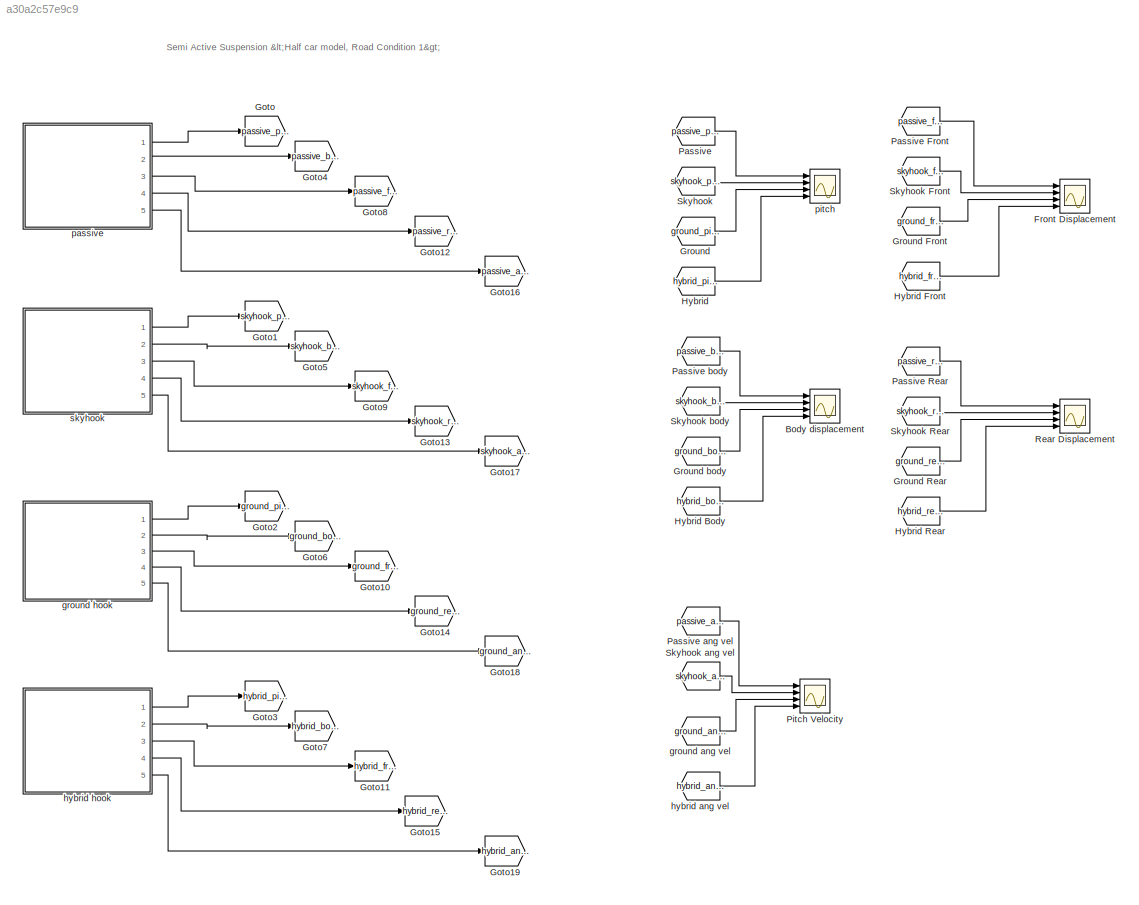
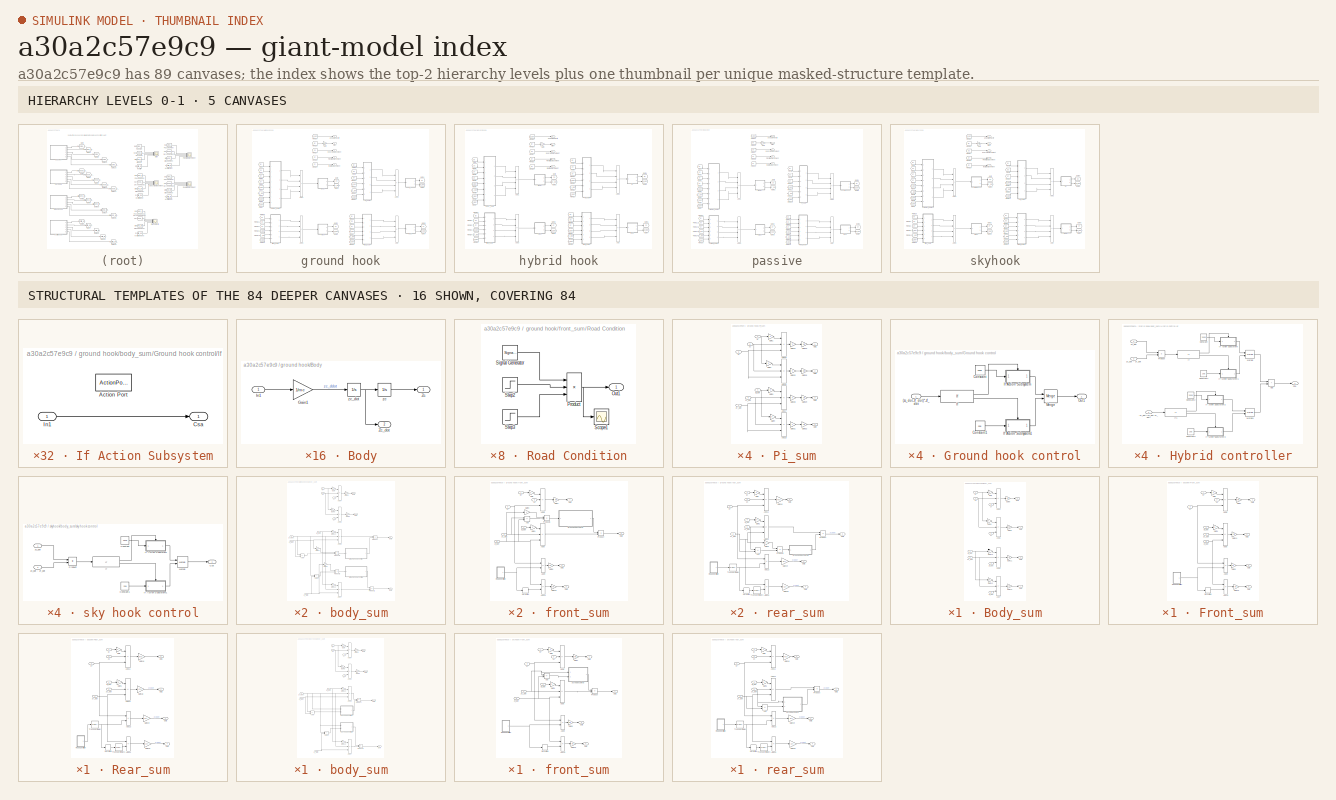
[diagram: thumbnail index - top-2 hierarchy levels (5 canvases) + 16 structural-template representatives of the remaining 84 canvases]
MODEL slx_a30a2c57e9c9
KIND model
CONFIG AbsTol = auto
CONFIG EnableMultiTasking = off
CONFIG FixedStep = auto
CONFIG MaxStep = 0.1
CONFIG MinStep = auto
CONFIG RelTol = 1e-3
CONFIG SampleTimeConstraint = Unconstrained
CONFIG Solver = VariableStepAuto
CONFIG SolverName = VariableStepAuto
CONFIG StartTime = 0.0
CONFIG StopTime = 10.0
BLOCK [Scope] Body displacement
  Floating = off
  NumInputPorts = 4
  Ports = [4]
  ScopeSpecificationString = Simulink.scopes.TimeScopeBlockCfg('CurrentConfiguration', extmgr.ConfigurationSet(extmgr.Configuration('Core','General UI',true),extmgr.Configuration('Core','Source UI',true),extmgr.Configuration('Sources','WiredSimulink',true,'DataLoggingVariableName','ScopeData2'),extmgr.Configuration('Visuals','Time Domain',true,'SerializedDisplays',{struct('MinYLimReal','-0.08102','MaxYLimReal','0.12281','YLab...<+1542ch>
BLOCK [Scope] Front Displacement
  Floating = off
  NumInputPorts = 4
  Ports = [4]
  ScopeSpecificationString = Simulink.scopes.TimeScopeBlockCfg('CurrentConfiguration', extmgr.ConfigurationSet(extmgr.Configuration('Core','General UI',true),extmgr.Configuration('Core','Source UI',true),extmgr.Configuration('Sources','WiredSimulink',true,'DataLoggingVariableName','ScopeData3'),extmgr.Configuration('Visuals','Time Domain',true,'SerializedDisplays',{struct('MinYLimReal','-0.03208','MaxYLimReal','0.19522','YLab...<+1546ch>
BLOCK [Goto] Goto
  GotoTag = passive_pitch
BLOCK [Goto] Goto1
  GotoTag = skyhook_pitch
BLOCK [Goto] Goto10
  GotoTag = ground_front_dis
BLOCK [Goto] Goto11
  GotoTag = hybrid_front_dis
BLOCK [Goto] Goto12
  GotoTag = passive_rear_dis
BLOCK [Goto] Goto13
  GotoTag = skyhook_rear_dis
BLOCK [Goto] Goto14
  GotoTag = ground_rear_dis
BLOCK [Goto] Goto15
  GotoTag = hybrid_rear_dis
BLOCK [Goto] Goto16
  GotoTag = passive_ang_vel
BLOCK [Goto] Goto17
  GotoTag = skyhook_ang_vel
BLOCK [Goto] Goto18
  GotoTag = ground_ang_vel
BLOCK [Goto] Goto19
  GotoTag = hybrid_ang_vel
BLOCK [Goto] Goto2
  GotoTag = ground_pitch
BLOCK [Goto] Goto3
  GotoTag = hybrid_pitch
BLOCK [Goto] Goto4
  GotoTag = passive_body_dis
BLOCK [Goto] Goto5
  GotoTag = skyhook_body_dis
BLOCK [Goto] Goto6
  GotoTag = ground_body_dis
BLOCK [Goto] Goto7
  GotoTag = hybrid_body_dis
BLOCK [Goto] Goto8
  GotoTag = passive_front_dis
BLOCK [Goto] Goto9
  GotoTag = skyhook_front_dis
BLOCK [From] Ground
  GotoTag = ground_pitch
BLOCK [From] Ground Front
  GotoTag = ground_front_dis
BLOCK [From] Ground Rear
  GotoTag = ground_rear_dis
BLOCK [From] Ground body
  GotoTag = ground_body_dis
BLOCK [From] Hybrid
  GotoTag = hybrid_pitch
BLOCK [From] Hybrid Body
  GotoTag = hybrid_body_dis
BLOCK [From] Hybrid Front
  GotoTag = hybrid_front_dis
BLOCK [From] Hybrid Rear
  GotoTag = hybrid_rear_dis
BLOCK [From] Passive
  GotoTag = passive_pitch
BLOCK [From] Passive Front
  GotoTag = passive_front_dis
BLOCK [From] Passive Rear
  GotoTag = passive_rear_dis
BLOCK [From] Passive ang vel
  GotoTag = passive_ang_vel
BLOCK [From] Passive body
  GotoTag = passive_body_dis
BLOCK [Scope] Pitch Velocity
  Floating = off
  NumInputPorts = 4
  Ports = [4]
  ScopeSpecificationString = Simulink.scopes.TimeScopeBlockCfg('CurrentConfiguration', extmgr.ConfigurationSet(extmgr.Configuration('Core','General UI',true),extmgr.Configuration('Core','Source UI',true),extmgr.Configuration('Sources','WiredSimulink',true,'DataLoggingVariableName','ScopeData5'),extmgr.Configuration('Visuals','Time Domain',true,'SerializedDisplays',{struct('MinYLimReal','-0.05618','MaxYLimReal','0.04512','YLab...<+1645ch>
BLOCK [Scope] Rear Displacement
  Floating = off
  NumInputPorts = 4
  Ports = [4]
  ScopeSpecificationString = Simulink.scopes.TimeScopeBlockCfg('CurrentConfiguration', extmgr.ConfigurationSet(extmgr.Configuration('Core','General UI',true),extmgr.Configuration('Core','Source UI',true),extmgr.Configuration('Sources','WiredSimulink',true,'DataLoggingVariableName','ScopeData4'),extmgr.Configuration('Visuals','Time Domain',true,'SerializedDisplays',{struct('MinYLimReal','-0.04875','MaxYLimReal','0.15941','YLab...<+1635ch>
BLOCK [From] Skyhook
  GotoTag = skyhook_pitch
BLOCK [From] Skyhook Front
  GotoTag = skyhook_front_dis
BLOCK [From] Skyhook Rear
  GotoTag = skyhook_rear_dis
BLOCK [From] Skyhook ang vel
  GotoTag = skyhook_ang_vel
BLOCK [From] Skyhook body
  GotoTag = skyhook_body_dis
BLOCK [From] ground ang vel
  GotoTag = ground_ang_vel
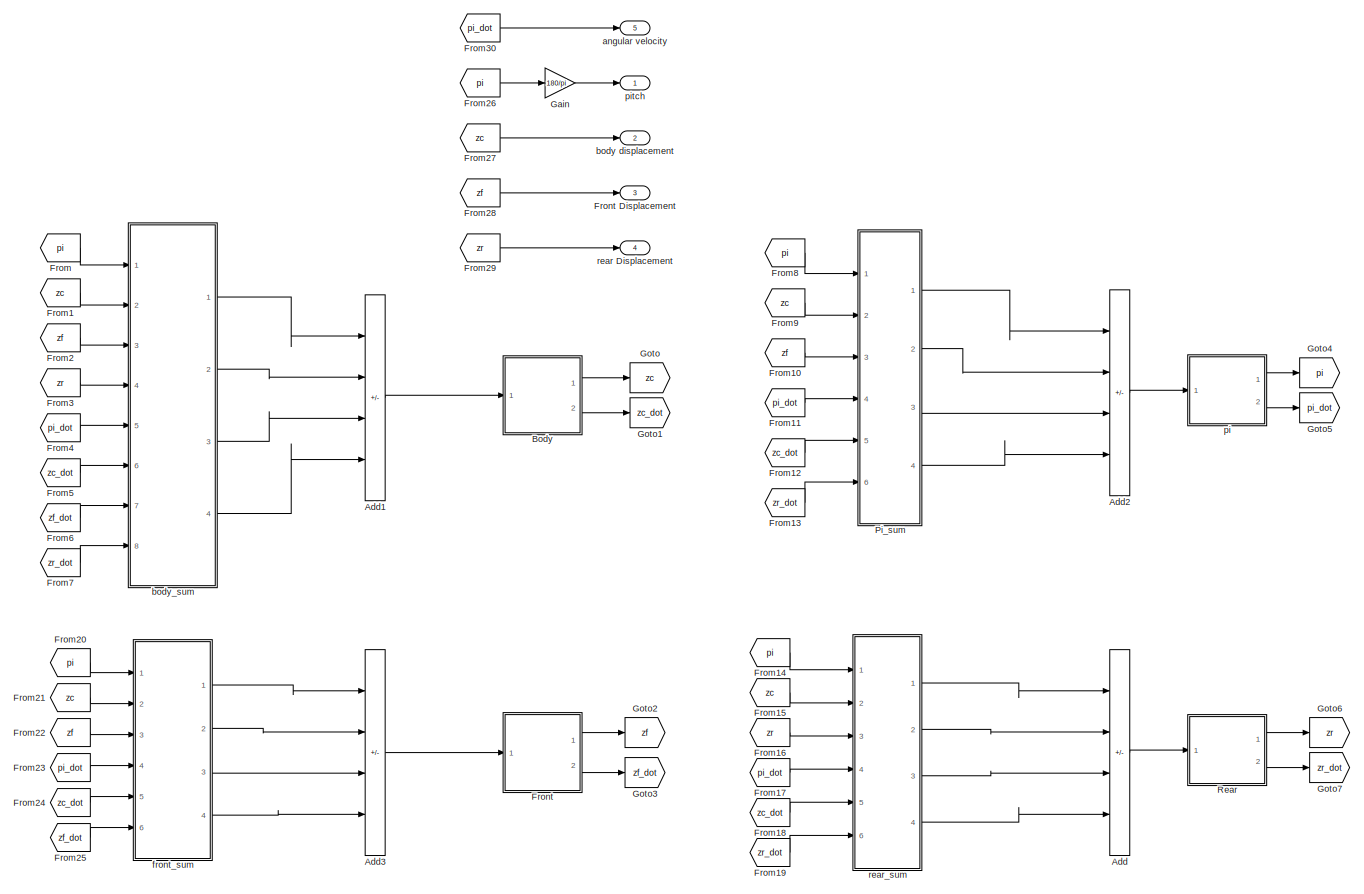
[diagram: ground hook - part 1/1, most of the canvas]
BLOCK [SubSystem] ground hook
  Ports = [0, 5]
  RequestExecContextInheritance = off
BLOCK [Sum] ground hook/Add
  IconShape = rectangular
  Inputs = ----
  Ports = [4, 1]
BLOCK [Sum] ground hook/Add1
  IconShape = rectangular
  Inputs = -+-+
  Ports = [4, 1]
BLOCK [Sum] ground hook/Add2
  IconShape = rectangular
  Inputs = ----
  Ports = [4, 1]
BLOCK [Sum] ground hook/Add3
  IconShape = rectangular
  Inputs = ++--
  Ports = [4, 1]
BLOCK [SubSystem] ground hook/Body
  Ports = [1, 2]
  RequestExecContextInheritance = off
BLOCK [Gain] ground hook/Body/Gain1
  Gain = 1/mc
BLOCK [Inport] ground hook/Body/In1
BLOCK [Outport] ground hook/Body/Zc
BLOCK [Outport] ground hook/Body/Zc_dot
  Port = 2
BLOCK [Integrator] ground hook/Body/zc
  Ports = [1, 1]
BLOCK [Integrator] ground hook/Body/zc_dot
  Ports = [1, 1]
BLOCK [From] ground hook/From
  GotoTag = pi
BLOCK [From] ground hook/From1
  GotoTag = zc
BLOCK [From] ground hook/From10
  GotoTag = zf
BLOCK [From] ground hook/From11
  GotoTag = pi_dot
BLOCK [From] ground hook/From12
  GotoTag = zc_dot
BLOCK [From] ground hook/From13
  GotoTag = zr_dot
BLOCK [From] ground hook/From14
  GotoTag = pi
BLOCK [From] ground hook/From15
  GotoTag = zc
BLOCK [From] ground hook/From16
  GotoTag = zr
BLOCK [From] ground hook/From17
  GotoTag = pi_dot
BLOCK [From] ground hook/From18
  GotoTag = zc_dot
BLOCK [From] ground hook/From19
  GotoTag = zr_dot
BLOCK [From] ground hook/From2
  GotoTag = zf
BLOCK [From] ground hook/From20
  GotoTag = pi
BLOCK [From] ground hook/From21
  GotoTag = zc
BLOCK [From] ground hook/From22
  GotoTag = zf
BLOCK [From] ground hook/From23
  GotoTag = pi_dot
BLOCK [From] ground hook/From24
  GotoTag = zc_dot
BLOCK [From] ground hook/From25
  GotoTag = zf_dot
BLOCK [From] ground hook/From26
  GotoTag = pi
BLOCK [From] ground hook/From27
  GotoTag = zc
BLOCK [From] ground hook/From28
  GotoTag = zf
BLOCK [From] ground hook/From29
  GotoTag = zr
BLOCK [From] ground hook/From3
  GotoTag = zr
BLOCK [From] ground hook/From30
  GotoTag = pi_dot
BLOCK [From] ground hook/From4
  GotoTag = pi_dot
BLOCK [From] ground hook/From5
  GotoTag = zc_dot
BLOCK [From] ground hook/From6
  GotoTag = zf_dot
BLOCK [From] ground hook/From7
  GotoTag = zr_dot
BLOCK [From] ground hook/From8
  GotoTag = pi
BLOCK [From] ground hook/From9
  GotoTag = zc
BLOCK [SubSystem] ground hook/Front
  Ports = [1, 2]
  RequestExecContextInheritance = off
BLOCK [Outport] ground hook/Front Displacement
  Port = 3
BLOCK [Gain] ground hook/Front/Gain2
  Gain = 1/mf
BLOCK [Inport] ground hook/Front/In1
BLOCK [Outport] ground hook/Front/Zf
BLOCK [Outport] ground hook/Front/Zf_dot
  Port = 2
BLOCK [Integrator] ground hook/Front/zf
  Ports = [1, 1]
BLOCK [Integrator] ground hook/Front/zf_dot
  Ports = [1, 1]
BLOCK [Gain] ground hook/Gain
  Gain = 180/pi
BLOCK [Goto] ground hook/Goto
  GotoTag = zc
BLOCK [Goto] ground hook/Goto1
  GotoTag = zc_dot
BLOCK [Goto] ground hook/Goto2
  GotoTag = zf
BLOCK [Goto] ground hook/Goto3
  GotoTag = zf_dot
BLOCK [Goto] ground hook/Goto4
  GotoTag = pi
BLOCK [Goto] ground hook/Goto5
  GotoTag = pi_dot
BLOCK [Goto] ground hook/Goto6
  GotoTag = zr
BLOCK [Goto] ground hook/Goto7
  GotoTag = zr_dot
BLOCK [SubSystem] ground hook/Pi_sum
  Ports = [6, 4]
  RequestExecContextInheritance = off
BLOCK [Sum] ground hook/Pi_sum/Add15
  IconShape = rectangular
  Inputs = ++-
  Ports = [3, 1]
BLOCK [Sum] ground hook/Pi_sum/Add16
  IconShape = rectangular
  Inputs = +-+
  Ports = [3, 1]
BLOCK [Sum] ground hook/Pi_sum/Add17
  IconShape = rectangular
  Inputs = ++-
  Ports = [3, 1]
BLOCK [Sum] ground hook/Pi_sum/Add18
  IconShape = rectangular
  Inputs = +-+
  Ports = [3, 1]
BLOCK [Gain] ground hook/Pi_sum/Gain1
  Gain = lf
BLOCK [Gain] ground hook/Pi_sum/Gain2
  Gain = lr
BLOCK [Gain] ground hook/Pi_sum/Gain22
  Gain = lf
BLOCK [Gain] ground hook/Pi_sum/Gain23
  Gain = kfs
BLOCK [Gain] ground hook/Pi_sum/Gain25
  Gain = lr
BLOCK [Gain] ground hook/Pi_sum/Gain26
  Gain = krs
BLOCK [Gain] ground hook/Pi_sum/Gain28
  Gain = lf
BLOCK [Gain] ground hook/Pi_sum/Gain29
  Gain = cfs
BLOCK [Gain] ground hook/Pi_sum/Gain3
  Gain = lf
BLOCK [Gain] ground hook/Pi_sum/Gain31
  Gain = lr
BLOCK [Gain] ground hook/Pi_sum/Gain32
  Gain = crs
BLOCK [Gain] ground hook/Pi_sum/Gain4
  Gain = lr
BLOCK [Outport] ground hook/Pi_sum/Out1
BLOCK [Outport] ground hook/Pi_sum/Out2
  Port = 2
BLOCK [Outport] ground hook/Pi_sum/Out3
  Port = 3
BLOCK [Outport] ground hook/Pi_sum/Out4
  Port = 4
BLOCK [Inport] ground hook/Pi_sum/pi
BLOCK [Inport] ground hook/Pi_sum/pi_dot
  Port = 4
BLOCK [Inport] ground hook/Pi_sum/zc
  Port = 2
BLOCK [Inport] ground hook/Pi_sum/zc_dot
  Port = 5
BLOCK [Inport] ground hook/Pi_sum/zf
  Port = 3
BLOCK [Inport] ground hook/Pi_sum/zr_dot
  Port = 6
BLOCK [SubSystem] ground hook/Rear
  Ports = [1, 2]
  RequestExecContextInheritance = off
BLOCK [Gain] ground hook/Rear/Gain2
  Gain = 1/mr
BLOCK [Inport] ground hook/Rear/In1
BLOCK [Outport] ground hook/Rear/Zr
BLOCK [Outport] ground hook/Rear/Zr_dot
  Port = 2
BLOCK [Integrator] ground hook/Rear/zr
  Ports = [1, 1]
BLOCK [Integrator] ground hook/Rear/zr_dot
  Ports = [1, 1]
BLOCK [Outport] ground hook/angular velocity
  Port = 5
BLOCK [Outport] ground hook/body displacement
  Port = 2
BLOCK [SubSystem] ground hook/body_sum
  Ports = [8, 4]
  RequestExecContextInheritance = off
BLOCK [Sum] ground hook/body_sum/Add
  IconShape = rectangular
  Inputs = +-
  Ports = [2, 1]
BLOCK [Sum] ground hook/body_sum/Add1
  IconShape = rectangular
  Inputs = +-
  Ports = [2, 1]
BLOCK [Sum] ground hook/body_sum/Add4
  IconShape = rectangular
  Inputs = ++-
  Ports = [3, 1]
BLOCK [Sum] ground hook/body_sum/Add5
  IconShape = rectangular
  Inputs = +-+
  Ports = [3, 1]
BLOCK [Sum] ground hook/body_sum/Add6
  IconShape = rectangular
  Inputs = ++-
  Ports = [3, 1]
BLOCK [Sum] ground hook/body_sum/Add7
  IconShape = rectangular
  Inputs = +-+
  Ports = [3, 1]
BLOCK [Gain] ground hook/body_sum/Gain
  Gain = lf
BLOCK [Gain] ground hook/body_sum/Gain1
  Gain = -1
BLOCK [Gain] ground hook/body_sum/Gain10
  Gain = lf
BLOCK [Gain] ground hook/body_sum/Gain12
  Gain = lr
BLOCK [Gain] ground hook/body_sum/Gain2
  Gain = -1
BLOCK [Gain] ground hook/body_sum/Gain5
  Gain = kfs
BLOCK [Gain] ground hook/body_sum/Gain8
  Gain = lr
BLOCK [Gain] ground hook/body_sum/Gain9
  Gain = krs
BLOCK [SubSystem] ground hook/body_sum/Ground hook control
  Ports = [1, 1]
  RequestExecContextInheritance = off
BLOCK [Inport] ground hook/body_sum/Ground hook control/(zc_dot-zf_dot)*-zf_dot
BLOCK [Constant] ground hook/body_sum/Ground hook control/Constant
  Value = 2838
BLOCK [Constant] ground hook/body_sum/Ground hook control/Constant1
  Value = 258
BLOCK [If] ground hook/body_sum/Ground hook control/If
  IfExpression = u1 >= 0
  Ports = [1, 2]
  ZeroCross = off
BLOCK [SubSystem] ground hook/body_sum/Ground hook control/If Action Subsystem
  Ports = [1, 1, 0, 0, 0, 0, 0, 1]
  RequestExecContextInheritance = off
  TreatAsAtomicUnit = on
BLOCK [ActionPort] ground hook/body_sum/Ground hook control/If Action Subsystem/Action Port
  ActionPortLabel = if(u1 >= 0)
BLOCK [Outport] ground hook/body_sum/Ground hook control/If Action Subsystem/Csa
BLOCK [Inport] ground hook/body_sum/Ground hook control/If Action Subsystem/In1
BLOCK [SubSystem] ground hook/body_sum/Ground hook control/If Action Subsystem1
  Ports = [1, 1, 0, 0, 0, 0, 0, 1]
  RequestExecContextInheritance = off
  TreatAsAtomicUnit = on
BLOCK [ActionPort] ground hook/body_sum/Ground hook control/If Action Subsystem1/Action Port
  ActionPortLabel = else
BLOCK [Inport] ground hook/body_sum/Ground hook control/If Action Subsystem1/In1
BLOCK [Outport] ground hook/body_sum/Ground hook control/If Action Subsystem1/Out1
BLOCK [Merge] ground hook/body_sum/Ground hook control/Merge
  Ports = [2, 1]
BLOCK [Outport] ground hook/body_sum/Ground hook control/Out1
BLOCK [SubSystem] ground hook/body_sum/Ground hook control1
  Ports = [1, 1]
  RequestExecContextInheritance = off
BLOCK [Inport] ground hook/body_sum/Ground hook control1/(zc_dot-zr_dot)*-zr_dot
BLOCK [Constant] ground hook/body_sum/Ground hook control1/Constant
  Value = 2838
BLOCK [Constant] ground hook/body_sum/Ground hook control1/Constant1
  Value = 258
BLOCK [If] ground hook/body_sum/Ground hook control1/If
  IfExpression = u1 >= 0
  Ports = [1, 2]
  ZeroCross = off
BLOCK [SubSystem] ground hook/body_sum/Ground hook control1/If Action Subsystem
  Ports = [1, 1, 0, 0, 0, 0, 0, 1]
  RequestExecContextInheritance = off
  TreatAsAtomicUnit = on
BLOCK [ActionPort] ground hook/body_sum/Ground hook control1/If Action Subsystem/Action Port
  ActionPortLabel = if(u1 >= 0)
BLOCK [Outport] ground hook/body_sum/Ground hook control1/If Action Subsystem/Csa
BLOCK [Inport] ground hook/body_sum/Ground hook control1/If Action Subsystem/In1
BLOCK [SubSystem] ground hook/body_sum/Ground hook control1/If Action Subsystem1
  Ports = [1, 1, 0, 0, 0, 0, 0, 1]
  RequestExecContextInheritance = off
  TreatAsAtomicUnit = on
BLOCK [ActionPort] ground hook/body_sum/Ground hook control1/If Action Subsystem1/Action Port
  ActionPortLabel = else
BLOCK [Inport] ground hook/body_sum/Ground hook control1/If Action Subsystem1/In1
BLOCK [Outport] ground hook/body_sum/Ground hook control1/If Action Subsystem1/Out1
BLOCK [Merge] ground hook/body_sum/Ground hook control1/Merge
  Ports = [2, 1]
BLOCK [Outport] ground hook/body_sum/Ground hook control1/Out1
BLOCK [Outport] ground hook/body_sum/Out1
BLOCK [Outport] ground hook/body_sum/Out2
  Port = 2
BLOCK [Outport] ground hook/body_sum/Out3
  Port = 3
BLOCK [Outport] ground hook/body_sum/Out4
  Port = 4
BLOCK [Product] ground hook/body_sum/Product
  Ports = [2, 1]
BLOCK [Product] ground hook/body_sum/Product1
  Ports = [2, 1]
BLOCK [Product] ground hook/body_sum/Product2
  Ports = [2, 1]
BLOCK [Product] ground hook/body_sum/Product3
  Ports = [2, 1]
BLOCK [Inport] ground hook/body_sum/pi
BLOCK [Inport] ground hook/body_sum/pi_dot
  Port = 5
BLOCK [Inport] ground hook/body_sum/zc
  Port = 2
BLOCK [Inport] ground hook/body_sum/zc_dot
  Port = 6
BLOCK [Inport] ground hook/body_sum/zf
  Port = 3
BLOCK [Inport] ground hook/body_sum/zf_dot
  Port = 7
BLOCK [Inport] ground hook/body_sum/zr
  Port = 4
BLOCK [Inport] ground hook/body_sum/zr_dot
  Port = 8
BLOCK [SubSystem] ground hook/front_sum
  Ports = [6, 4]
  RequestExecContextInheritance = off
BLOCK [Sum] ground hook/front_sum/Add
  IconShape = rectangular
  Inputs = +-
  Ports = [2, 1]
BLOCK [Sum] ground hook/front_sum/Add10
  IconShape = rectangular
  Inputs = +-
  Ports = [2, 1]
BLOCK [Sum] ground hook/front_sum/Add6
  IconShape = rectangular
  Inputs = ++-
  Ports = [3, 1]
BLOCK [Sum] ground hook/front_sum/Add8
  IconShape = rectangular
  Inputs = ++-
  Ports = [3, 1]
BLOCK [Sum] ground hook/front_sum/Add9
  IconShape = rectangular
  Inputs = +-
  Ports = [2, 1]
BLOCK [Derivative] ground hook/front_sum/Derivative
BLOCK [Gain] ground hook/front_sum/Gain
  Gain = lf
BLOCK [Gain] ground hook/front_sum/Gain1
  Gain = lf
BLOCK [Gain] ground hook/front_sum/Gain15
  Gain = cft
BLOCK [Gain] ground hook/front_sum/Gain3
  Gain = -1
BLOCK [Gain] ground hook/front_sum/Gain6
  Gain = kft
BLOCK [Gain] ground hook/front_sum/Gain7
  Gain = kfs
BLOCK [SubSystem] ground hook/front_sum/Ground hook control
  Ports = [1, 1]
  RequestExecContextInheritance = off
BLOCK [Inport] ground hook/front_sum/Ground hook control/(zc_dot-zf_dot)*-zf_dot
BLOCK [Constant] ground hook/front_sum/Ground hook control/Constant
  Value = 2838
BLOCK [Constant] ground hook/front_sum/Ground hook control/Constant1
  Value = 258
BLOCK [If] ground hook/front_sum/Ground hook control/If
  IfExpression = u1 >= 0
  Ports = [1, 2]
  ZeroCross = off
BLOCK [SubSystem] ground hook/front_sum/Ground hook control/If Action Subsystem
  Ports = [1, 1, 0, 0, 0, 0, 0, 1]
  RequestExecContextInheritance = off
  TreatAsAtomicUnit = on
BLOCK [ActionPort] ground hook/front_sum/Ground hook control/If Action Subsystem/Action Port
  ActionPortLabel = if(u1 >= 0)
BLOCK [Outport] ground hook/front_sum/Ground hook control/If Action Subsystem/Csa
BLOCK [Inport] ground hook/front_sum/Ground hook control/If Action Subsystem/In1
BLOCK [SubSystem] ground hook/front_sum/Ground hook control/If Action Subsystem1
  Ports = [1, 1, 0, 0, 0, 0, 0, 1]
  RequestExecContextInheritance = off
  TreatAsAtomicUnit = on
BLOCK [ActionPort] ground hook/front_sum/Ground hook control/If Action Subsystem1/Action Port
  ActionPortLabel = else
BLOCK [Inport] ground hook/front_sum/Ground hook control/If Action Subsystem1/In1
BLOCK [Outport] ground hook/front_sum/Ground hook control/If Action Subsystem1/Out1
BLOCK [Merge] ground hook/front_sum/Ground hook control/Merge
  Ports = [2, 1]
BLOCK [Outport] ground hook/front_sum/Ground hook control/Out1
BLOCK [Outport] ground hook/front_sum/Out1
BLOCK [Outport] ground hook/front_sum/Out2
  Port = 2
BLOCK [Outport] ground hook/front_sum/Out3
  Port = 3
BLOCK [Outport] ground hook/front_sum/Out4
  Port = 4
BLOCK [Product] ground hook/front_sum/Product
  Ports = [2, 1]
BLOCK [Product] ground hook/front_sum/Product1
  Ports = [2, 1]
BLOCK [SubSystem] ground hook/front_sum/Road Condition
  Ports = [0, 1]
  RequestExecContextInheritance = off
BLOCK [Outport] ground hook/front_sum/Road Condition/Out1
  VectorParamsAs1DForOutWhenUnconnected = off
BLOCK [Product] ground hook/front_sum/Road Condition/Product
  Inputs = 3
  Ports = [3, 1]
BLOCK [Scope] ground hook/front_sum/Road Condition/Scope1
  Floating = off
  NumInputPorts = 1
  Ports = [1]
  ScopeSpecificationString = Simulink.scopes.TimeScopeBlockCfg('CurrentConfiguration', extmgr.ConfigurationSet(extmgr.Configuration('Core','General UI',true),extmgr.Configuration('Core','Source UI',true),extmgr.Configuration('Sources','WiredSimulink',true,'DataLoggingVariableName','ScopeData1'),extmgr.Configuration('Visuals','Time Domain',true,'SerializedDisplays',{struct('MinYLimReal','-0.01705','MaxYLimReal','0.15343','YLab...<+1366ch>  <repeated x7 — deduplicated; at blocks: Scope1>
BLOCK [SignalGenerator] ground hook/front_sum/Road Condition/Signal Generator
  Amplitude = 0.15
  Frequency = 1.852
  Ports = [0, 1]
  Units = rad/sec
BLOCK [Step] ground hook/front_sum/Road Condition/Step2
  SampleTime = 1.08
BLOCK [Step] ground hook/front_sum/Road Condition/Step3
  After = 0
  Before = 1
  SampleTime = 1.35
BLOCK [Inport] ground hook/front_sum/pi
BLOCK [Inport] ground hook/front_sum/pi_dot
  Port = 4
BLOCK [Inport] ground hook/front_sum/zc
  Port = 2
BLOCK [Inport] ground hook/front_sum/zc_dot
  Port = 5
BLOCK [Inport] ground hook/front_sum/zf
  Port = 3
BLOCK [Inport] ground hook/front_sum/zf_dot
  Port = 6
BLOCK [SubSystem] ground hook/pi
  Ports = [1, 2]
  RequestExecContextInheritance = off
BLOCK [Gain] ground hook/pi/Gain2
  Gain = 1/iyy
BLOCK [Inport] ground hook/pi/In1
BLOCK [Outport] ground hook/pi/Pi
BLOCK [Outport] ground hook/pi/Pi_dot
  Port = 2
BLOCK [Integrator] ground hook/pi/pi
  Ports = [1, 1]
BLOCK [Integrator] ground hook/pi/pi_dot
  Ports = [1, 1]
BLOCK [Outport] ground hook/pitch
BLOCK [Outport] ground hook/rear Displacement
  Port = 4
BLOCK [SubSystem] ground hook/rear_sum
  Ports = [6, 4]
  RequestExecContextInheritance = off
BLOCK [Sum] ground hook/rear_sum/Add
  IconShape = rectangular
  Inputs = +-
  Ports = [2, 1]
BLOCK [Sum] ground hook/rear_sum/Add11
  IconShape = rectangular
  Inputs = +-+
  Ports = [3, 1]
BLOCK [Sum] ground hook/rear_sum/Add12
  IconShape = rectangular
  Inputs = +-+
  Ports = [3, 1]
BLOCK [Sum] ground hook/rear_sum/Add13
  IconShape = rectangular
  Inputs = +-
  Ports = [2, 1]
BLOCK [Sum] ground hook/rear_sum/Add14
  IconShape = rectangular
  Inputs = +-
  Ports = [2, 1]
BLOCK [Derivative] ground hook/rear_sum/Derivative
BLOCK [Gain] ground hook/rear_sum/Gain
  Gain = lr
BLOCK [Gain] ground hook/rear_sum/Gain1
  Gain = lr
BLOCK [Gain] ground hook/rear_sum/Gain16
  Gain = krs
BLOCK [Gain] ground hook/rear_sum/Gain19
  Gain = krt
BLOCK [Gain] ground hook/rear_sum/Gain20
  Gain = crt
BLOCK [Gain] ground hook/rear_sum/Gain3
  Gain = -1
BLOCK [SubSystem] ground hook/rear_sum/Ground hook control1
  Ports = [1, 1]
  RequestExecContextInheritance = off
BLOCK [Inport] ground hook/rear_sum/Ground hook control1/(zc_dot-zr_dot)*-zr_dot
BLOCK [Constant] ground hook/rear_sum/Ground hook control1/Constant
  Value = 2838
BLOCK [Constant] ground hook/rear_sum/Ground hook control1/Constant1
  Value = 258
BLOCK [If] ground hook/rear_sum/Ground hook control1/If
  IfExpression = u1 >= 0
  Ports = [1, 2]
  ZeroCross = off
BLOCK [SubSystem] ground hook/rear_sum/Ground hook control1/If Action Subsystem
  Ports = [1, 1, 0, 0, 0, 0, 0, 1]
  RequestExecContextInheritance = off
  TreatAsAtomicUnit = on
BLOCK [ActionPort] ground hook/rear_sum/Ground hook control1/If Action Subsystem/Action Port
  ActionPortLabel = if(u1 >= 0)
BLOCK [Outport] ground hook/rear_sum/Ground hook control1/If Action Subsystem/Csa
BLOCK [Inport] ground hook/rear_sum/Ground hook control1/If Action Subsystem/In1
BLOCK [SubSystem] ground hook/rear_sum/Ground hook control1/If Action Subsystem1
  Ports = [1, 1, 0, 0, 0, 0, 0, 1]
  RequestExecContextInheritance = off
  TreatAsAtomicUnit = on
BLOCK [ActionPort] ground hook/rear_sum/Ground hook control1/If Action Subsystem1/Action Port
  ActionPortLabel = else
BLOCK [Inport] ground hook/rear_sum/Ground hook control1/If Action Subsystem1/In1
BLOCK [Outport] ground hook/rear_sum/Ground hook control1/If Action Subsystem1/Out1
BLOCK [Merge] ground hook/rear_sum/Ground hook control1/Merge
  Ports = [2, 1]
BLOCK [Outport] ground hook/rear_sum/Ground hook control1/Out1
BLOCK [Outport] ground hook/rear_sum/Out1
BLOCK [Outport] ground hook/rear_sum/Out2
  Port = 2
BLOCK [Outport] ground hook/rear_sum/Out3
  Port = 3
BLOCK [Outport] ground hook/rear_sum/Out4
  Port = 4
BLOCK [Product] ground hook/rear_sum/Product
  Ports = [2, 1]
BLOCK [Product] ground hook/rear_sum/Product1
  Ports = [2, 1]
BLOCK [SubSystem] ground hook/rear_sum/Road Condition
  Ports = [0, 1]
  RequestExecContextInheritance = off
BLOCK [Outport] ground hook/rear_sum/Road Condition/Out1
  VectorParamsAs1DForOutWhenUnconnected = off
BLOCK [Product] ground hook/rear_sum/Road Condition/Product
  Inputs = 3
  Ports = [3, 1]
BLOCK [Scope] ground hook/rear_sum/Road Condition/Scope1
  Floating = off
  NumInputPorts = 1
  Ports = [1]
BLOCK [SignalGenerator] ground hook/rear_sum/Road Condition/Signal Generator
  Amplitude = 0.15
  Frequency = 1.852
  Ports = [0, 1]
  Units = rad/sec
BLOCK [Step] ground hook/rear_sum/Road Condition/Step2
  SampleTime = 1.08
BLOCK [Step] ground hook/rear_sum/Road Condition/Step3
  After = 0
  Before = 1
  SampleTime = 1.35
BLOCK [TransportDelay] ground hook/rear_sum/Transport Delay
  DelayTime = 0.3
  Ports = [1, 1]
BLOCK [TransportDelay] ground hook/rear_sum/Transport Delay1
  DelayTime = 0.3
  Ports = [1, 1]
BLOCK [Inport] ground hook/rear_sum/pi
BLOCK [Inport] ground hook/rear_sum/pi_dot
  Port = 4
BLOCK [Inport] ground hook/rear_sum/zc
  Port = 2
BLOCK [Inport] ground hook/rear_sum/zc_dot
  Port = 5
BLOCK [Inport] ground hook/rear_sum/zr
  Port = 3
BLOCK [Inport] ground hook/rear_sum/zr_dot
  Port = 6
BLOCK [From] hybrid ang vel
  GotoTag = hybrid_ang_vel
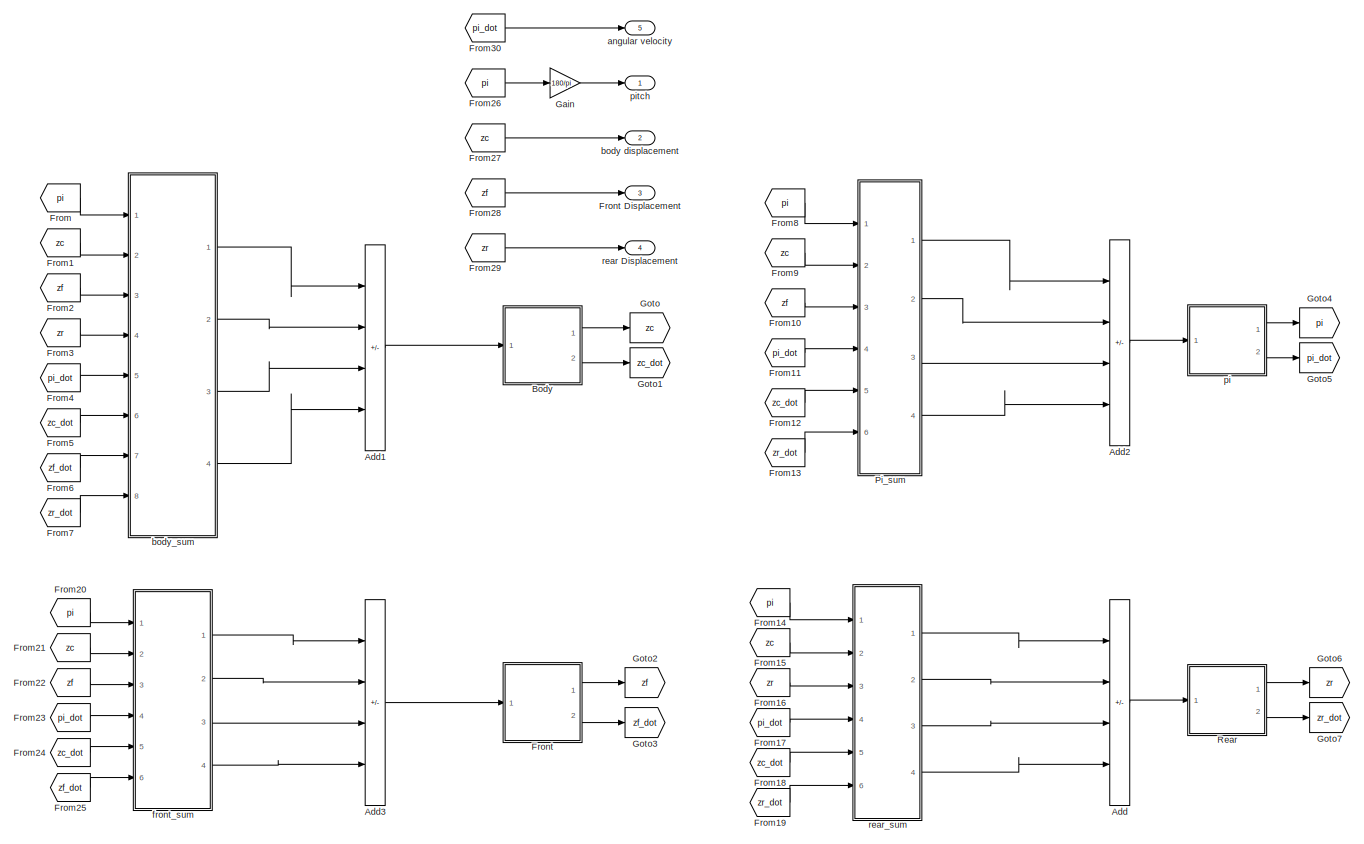
[diagram: hybrid hook - part 1/1, most of the canvas]
BLOCK [SubSystem] hybrid hook
  Ports = [0, 5]
  RequestExecContextInheritance = off
BLOCK [Sum] hybrid hook/Add
  IconShape = rectangular
  Inputs = ----
  Ports = [4, 1]
BLOCK [Sum] hybrid hook/Add1
  IconShape = rectangular
  Inputs = -+-+
  Ports = [4, 1]
BLOCK [Sum] hybrid hook/Add2
  IconShape = rectangular
  Inputs = ----
  Ports = [4, 1]
BLOCK [Sum] hybrid hook/Add3
  IconShape = rectangular
  Inputs = ++--
  Ports = [4, 1]
BLOCK [SubSystem] hybrid hook/Body
  Ports = [1, 2]
  RequestExecContextInheritance = off
BLOCK [Gain] hybrid hook/Body/Gain1
  Gain = 1/mc
BLOCK [Inport] hybrid hook/Body/In1
BLOCK [Outport] hybrid hook/Body/Zc
BLOCK [Outport] hybrid hook/Body/Zc_dot
  Port = 2
BLOCK [Integrator] hybrid hook/Body/zc
  Ports = [1, 1]
BLOCK [Integrator] hybrid hook/Body/zc_dot
  Ports = [1, 1]
BLOCK [From] hybrid hook/From
  GotoTag = pi
BLOCK [From] hybrid hook/From1
  GotoTag = zc
BLOCK [From] hybrid hook/From10
  GotoTag = zf
BLOCK [From] hybrid hook/From11
  GotoTag = pi_dot
BLOCK [From] hybrid hook/From12
  GotoTag = zc_dot
BLOCK [From] hybrid hook/From13
  GotoTag = zr_dot
BLOCK [From] hybrid hook/From14
  GotoTag = pi
BLOCK [From] hybrid hook/From15
  GotoTag = zc
BLOCK [From] hybrid hook/From16
  GotoTag = zr
BLOCK [From] hybrid hook/From17
  GotoTag = pi_dot
BLOCK [From] hybrid hook/From18
  GotoTag = zc_dot
BLOCK [From] hybrid hook/From19
  GotoTag = zr_dot
BLOCK [From] hybrid hook/From2
  GotoTag = zf
BLOCK [From] hybrid hook/From20
  GotoTag = pi
BLOCK [From] hybrid hook/From21
  GotoTag = zc
BLOCK [From] hybrid hook/From22
  GotoTag = zf
BLOCK [From] hybrid hook/From23
  GotoTag = pi_dot
BLOCK [From] hybrid hook/From24
  GotoTag = zc_dot
BLOCK [From] hybrid hook/From25
  GotoTag = zf_dot
BLOCK [From] hybrid hook/From26
  GotoTag = pi
BLOCK [From] hybrid hook/From27
  GotoTag = zc
BLOCK [From] hybrid hook/From28
  GotoTag = zf
BLOCK [From] hybrid hook/From29
  GotoTag = zr
BLOCK [From] hybrid hook/From3
  GotoTag = zr
BLOCK [From] hybrid hook/From30
  GotoTag = pi_dot
BLOCK [From] hybrid hook/From4
  GotoTag = pi_dot
BLOCK [From] hybrid hook/From5
  GotoTag = zc_dot
BLOCK [From] hybrid hook/From6
  GotoTag = zf_dot
BLOCK [From] hybrid hook/From7
  GotoTag = zr_dot
BLOCK [From] hybrid hook/From8
  GotoTag = pi
BLOCK [From] hybrid hook/From9
  GotoTag = zc
BLOCK [SubSystem] hybrid hook/Front
  Ports = [1, 2]
  RequestExecContextInheritance = off
BLOCK [Outport] hybrid hook/Front Displacement
  Port = 3
BLOCK [Gain] hybrid hook/Front/Gain2
  Gain = 1/mf
BLOCK [Inport] hybrid hook/Front/In1
BLOCK [Outport] hybrid hook/Front/Zf
BLOCK [Outport] hybrid hook/Front/Zf_dot
  Port = 2
BLOCK [Integrator] hybrid hook/Front/zf
  Ports = [1, 1]
BLOCK [Integrator] hybrid hook/Front/zf_dot
  Ports = [1, 1]
BLOCK [Gain] hybrid hook/Gain
  Gain = 180/pi
BLOCK [Goto] hybrid hook/Goto
  GotoTag = zc
BLOCK [Goto] hybrid hook/Goto1
  GotoTag = zc_dot
BLOCK [Goto] hybrid hook/Goto2
  GotoTag = zf
BLOCK [Goto] hybrid hook/Goto3
  GotoTag = zf_dot
BLOCK [Goto] hybrid hook/Goto4
  GotoTag = pi
BLOCK [Goto] hybrid hook/Goto5
  GotoTag = pi_dot
BLOCK [Goto] hybrid hook/Goto6
  GotoTag = zr
BLOCK [Goto] hybrid hook/Goto7
  GotoTag = zr_dot
BLOCK [SubSystem] hybrid hook/Pi_sum
  Ports = [6, 4]
  RequestExecContextInheritance = off
BLOCK [Sum] hybrid hook/Pi_sum/Add15
  IconShape = rectangular
  Inputs = ++-
  Ports = [3, 1]
BLOCK [Sum] hybrid hook/Pi_sum/Add16
  IconShape = rectangular
  Inputs = +-+
  Ports = [3, 1]
BLOCK [Sum] hybrid hook/Pi_sum/Add17
  IconShape = rectangular
  Inputs = ++-
  Ports = [3, 1]
BLOCK [Sum] hybrid hook/Pi_sum/Add18
  IconShape = rectangular
  Inputs = +-+
  Ports = [3, 1]
BLOCK [Gain] hybrid hook/Pi_sum/Gain1
  Gain = lf
BLOCK [Gain] hybrid hook/Pi_sum/Gain2
  Gain = lr
BLOCK [Gain] hybrid hook/Pi_sum/Gain22
  Gain = lf
BLOCK [Gain] hybrid hook/Pi_sum/Gain23
  Gain = kfs
BLOCK [Gain] hybrid hook/Pi_sum/Gain25
  Gain = lr
BLOCK [Gain] hybrid hook/Pi_sum/Gain26
  Gain = krs
BLOCK [Gain] hybrid hook/Pi_sum/Gain28
  Gain = lf
BLOCK [Gain] hybrid hook/Pi_sum/Gain29
  Gain = cfs
BLOCK [Gain] hybrid hook/Pi_sum/Gain3
  Gain = lf
BLOCK [Gain] hybrid hook/Pi_sum/Gain31
  Gain = lr
BLOCK [Gain] hybrid hook/Pi_sum/Gain32
  Gain = crs
BLOCK [Gain] hybrid hook/Pi_sum/Gain4
  Gain = lr
BLOCK [Outport] hybrid hook/Pi_sum/Out1
BLOCK [Outport] hybrid hook/Pi_sum/Out2
  Port = 2
BLOCK [Outport] hybrid hook/Pi_sum/Out3
  Port = 3
BLOCK [Outport] hybrid hook/Pi_sum/Out4
  Port = 4
BLOCK [Inport] hybrid hook/Pi_sum/pi
BLOCK [Inport] hybrid hook/Pi_sum/pi_dot
  Port = 4
BLOCK [Inport] hybrid hook/Pi_sum/zc
  Port = 2
BLOCK [Inport] hybrid hook/Pi_sum/zc_dot
  Port = 5
BLOCK [Inport] hybrid hook/Pi_sum/zf
  Port = 3
BLOCK [Inport] hybrid hook/Pi_sum/zr_dot
  Port = 6
BLOCK [SubSystem] hybrid hook/Rear
  Ports = [1, 2]
  RequestExecContextInheritance = off
BLOCK [Gain] hybrid hook/Rear/Gain2
  Gain = 1/mr
BLOCK [Inport] hybrid hook/Rear/In1
BLOCK [Outport] hybrid hook/Rear/Zr
BLOCK [Outport] hybrid hook/Rear/Zr_dot
  Port = 2
BLOCK [Integrator] hybrid hook/Rear/zr
  Ports = [1, 1]
BLOCK [Integrator] hybrid hook/Rear/zr_dot
  Ports = [1, 1]
BLOCK [Outport] hybrid hook/angular velocity
  Port = 5
BLOCK [Outport] hybrid hook/body displacement
  Port = 2
BLOCK [SubSystem] hybrid hook/body_sum
  Ports = [8, 4]
  RequestExecContextInheritance = off
BLOCK [Sum] hybrid hook/body_sum/Add
  IconShape = rectangular
  Inputs = +-
  Ports = [2, 1]
BLOCK [Sum] hybrid hook/body_sum/Add1
  IconShape = rectangular
  Inputs = +-
  Ports = [2, 1]
BLOCK [Sum] hybrid hook/body_sum/Add4
  IconShape = rectangular
  Inputs = ++-
  Ports = [3, 1]
BLOCK [Sum] hybrid hook/body_sum/Add5
  IconShape = rectangular
  Inputs = +-+
  Ports = [3, 1]
BLOCK [Sum] hybrid hook/body_sum/Add6
  IconShape = rectangular
  Inputs = ++-
  Ports = [3, 1]
BLOCK [Sum] hybrid hook/body_sum/Add7
  IconShape = rectangular
  Inputs = +-+
  Ports = [3, 1]
BLOCK [Gain] hybrid hook/body_sum/Gain
  Gain = lf
BLOCK [Gain] hybrid hook/body_sum/Gain1
  Gain = -1
BLOCK [Gain] hybrid hook/body_sum/Gain10
  Gain = lf
BLOCK [Gain] hybrid hook/body_sum/Gain12
  Gain = lr
BLOCK [Gain] hybrid hook/body_sum/Gain2
  Gain = -1
BLOCK [Gain] hybrid hook/body_sum/Gain5
  Gain = kfs
BLOCK [Gain] hybrid hook/body_sum/Gain8
  Gain = lr
BLOCK [Gain] hybrid hook/body_sum/Gain9
  Gain = krs
BLOCK [SubSystem] hybrid hook/body_sum/Hybrid controller
  Ports = [3, 1]
  RequestExecContextInheritance = off
BLOCK [Inport] hybrid hook/body_sum/Hybrid controller/-zf_dot*(zc_dot-zf_dot)
  Port = 3
BLOCK [Sum] hybrid hook/body_sum/Hybrid controller/Add
  IconShape = rectangular
  Ports = [2, 1]
BLOCK [Constant] hybrid hook/body_sum/Hybrid controller/Constant
  Value = 2838
BLOCK [Constant] hybrid hook/body_sum/Hybrid controller/Constant1
  Value = 258
BLOCK [Constant] hybrid hook/body_sum/Hybrid controller/Constant2
  Value = 2838
BLOCK [Constant] hybrid hook/body_sum/Hybrid controller/Constant3
  Value = 258
BLOCK [Outport] hybrid hook/body_sum/Hybrid controller/Csa
BLOCK [If] hybrid hook/body_sum/Hybrid controller/If
  IfExpression = u1 >= 0
  Ports = [1, 2]
  ZeroCross = off
BLOCK [SubSystem] hybrid hook/body_sum/Hybrid controller/If Action Subsystem
  Ports = [1, 1, 0, 0, 0, 0, 0, 1]
  RequestExecContextInheritance = off
  TreatAsAtomicUnit = on
BLOCK [ActionPort] hybrid hook/body_sum/Hybrid controller/If Action Subsystem/Action Port
  ActionPortLabel = if(u1 >= 0)
BLOCK [Outport] hybrid hook/body_sum/Hybrid controller/If Action Subsystem/Csa
BLOCK [Inport] hybrid hook/body_sum/Hybrid controller/If Action Subsystem/In1
BLOCK [SubSystem] hybrid hook/body_sum/Hybrid controller/If Action Subsystem1
  Ports = [1, 1, 0, 0, 0, 0, 0, 1]
  RequestExecContextInheritance = off
  TreatAsAtomicUnit = on
BLOCK [ActionPort] hybrid hook/body_sum/Hybrid controller/If Action Subsystem1/Action Port
  ActionPortLabel = else
BLOCK [Inport] hybrid hook/body_sum/Hybrid controller/If Action Subsystem1/In1
BLOCK [Outport] hybrid hook/body_sum/Hybrid controller/If Action Subsystem1/Out1
BLOCK [SubSystem] hybrid hook/body_sum/Hybrid controller/If Action Subsystem2
  Ports = [1, 1, 0, 0, 0, 0, 0, 1]
  RequestExecContextInheritance = off
  TreatAsAtomicUnit = on
BLOCK [ActionPort] hybrid hook/body_sum/Hybrid controller/If Action Subsystem2/Action Port
  ActionPortLabel = if(u1 >= 0)
BLOCK [Outport] hybrid hook/body_sum/Hybrid controller/If Action Subsystem2/Csa
BLOCK [Inport] hybrid hook/body_sum/Hybrid controller/If Action Subsystem2/In1
BLOCK [SubSystem] hybrid hook/body_sum/Hybrid controller/If Action Subsystem3
  Ports = [1, 1, 0, 0, 0, 0, 0, 1]
  RequestExecContextInheritance = off
  TreatAsAtomicUnit = on
BLOCK [ActionPort] hybrid hook/body_sum/Hybrid controller/If Action Subsystem3/Action Port
  ActionPortLabel = else
BLOCK [Inport] hybrid hook/body_sum/Hybrid controller/If Action Subsystem3/In1
BLOCK [Outport] hybrid hook/body_sum/Hybrid controller/If Action Subsystem3/Out1
BLOCK [If] hybrid hook/body_sum/Hybrid controller/If1
  IfExpression = u1 >= 0
  Ports = [1, 2]
  ZeroCross = off
BLOCK [Merge] hybrid hook/body_sum/Hybrid controller/Merge
  Ports = [2, 1]
BLOCK [Merge] hybrid hook/body_sum/Hybrid controller/Merge1
  Ports = [2, 1]
BLOCK [Product] hybrid hook/body_sum/Hybrid controller/Product
  Ports = [2, 1]
BLOCK [Inport] hybrid hook/body_sum/Hybrid controller/zc_dot
BLOCK [Inport] hybrid hook/body_sum/Hybrid controller/zc_dot - zf_dot
  Port = 2
BLOCK [SubSystem] hybrid hook/body_sum/Hybrid controller1
  Ports = [3, 1]
  RequestExecContextInheritance = off
BLOCK [Inport] hybrid hook/body_sum/Hybrid controller1/-zr_dot*(zc_dot-zr_dot)
  Port = 3
BLOCK [Sum] hybrid hook/body_sum/Hybrid controller1/Add
  IconShape = rectangular
  Ports = [2, 1]
BLOCK [Constant] hybrid hook/body_sum/Hybrid controller1/Constant
  Value = 2838
BLOCK [Constant] hybrid hook/body_sum/Hybrid controller1/Constant1
  Value = 258
BLOCK [Constant] hybrid hook/body_sum/Hybrid controller1/Constant2
  Value = 2838
BLOCK [Constant] hybrid hook/body_sum/Hybrid controller1/Constant3
  Value = 258
BLOCK [Outport] hybrid hook/body_sum/Hybrid controller1/Csa
BLOCK [If] hybrid hook/body_sum/Hybrid controller1/If
  IfExpression = u1 >= 0
  Ports = [1, 2]
  ZeroCross = off
BLOCK [SubSystem] hybrid hook/body_sum/Hybrid controller1/If Action Subsystem
  Ports = [1, 1, 0, 0, 0, 0, 0, 1]
  RequestExecContextInheritance = off
  TreatAsAtomicUnit = on
BLOCK [ActionPort] hybrid hook/body_sum/Hybrid controller1/If Action Subsystem/Action Port
  ActionPortLabel = if(u1 >= 0)
BLOCK [Outport] hybrid hook/body_sum/Hybrid controller1/If Action Subsystem/Csa
BLOCK [Inport] hybrid hook/body_sum/Hybrid controller1/If Action Subsystem/In1
BLOCK [SubSystem] hybrid hook/body_sum/Hybrid controller1/If Action Subsystem1
  Ports = [1, 1, 0, 0, 0, 0, 0, 1]
  RequestExecContextInheritance = off
  TreatAsAtomicUnit = on
BLOCK [ActionPort] hybrid hook/body_sum/Hybrid controller1/If Action Subsystem1/Action Port
  ActionPortLabel = else
BLOCK [Inport] hybrid hook/body_sum/Hybrid controller1/If Action Subsystem1/In1
BLOCK [Outport] hybrid hook/body_sum/Hybrid controller1/If Action Subsystem1/Out1
BLOCK [SubSystem] hybrid hook/body_sum/Hybrid controller1/If Action Subsystem2
  Ports = [1, 1, 0, 0, 0, 0, 0, 1]
  RequestExecContextInheritance = off
  TreatAsAtomicUnit = on
BLOCK [ActionPort] hybrid hook/body_sum/Hybrid controller1/If Action Subsystem2/Action Port
  ActionPortLabel = if(u1 >= 0)
BLOCK [Outport] hybrid hook/body_sum/Hybrid controller1/If Action Subsystem2/Csa
BLOCK [Inport] hybrid hook/body_sum/Hybrid controller1/If Action Subsystem2/In1
BLOCK [SubSystem] hybrid hook/body_sum/Hybrid controller1/If Action Subsystem3
  Ports = [1, 1, 0, 0, 0, 0, 0, 1]
  RequestExecContextInheritance = off
  TreatAsAtomicUnit = on
BLOCK [ActionPort] hybrid hook/body_sum/Hybrid controller1/If Action Subsystem3/Action Port
  ActionPortLabel = else
BLOCK [Inport] hybrid hook/body_sum/Hybrid controller1/If Action Subsystem3/In1
BLOCK [Outport] hybrid hook/body_sum/Hybrid controller1/If Action Subsystem3/Out1
BLOCK [If] hybrid hook/body_sum/Hybrid controller1/If1
  IfExpression = u1 >= 0
  Ports = [1, 2]
  ZeroCross = off
BLOCK [Merge] hybrid hook/body_sum/Hybrid controller1/Merge
  Ports = [2, 1]
BLOCK [Merge] hybrid hook/body_sum/Hybrid controller1/Merge1
  Ports = [2, 1]
BLOCK [Product] hybrid hook/body_sum/Hybrid controller1/Product
  Ports = [2, 1]
BLOCK [Inport] hybrid hook/body_sum/Hybrid controller1/zc_dot
BLOCK [Inport] hybrid hook/body_sum/Hybrid controller1/zc_dot - zr_dot
  Port = 2
BLOCK [Outport] hybrid hook/body_sum/Out1
BLOCK [Outport] hybrid hook/body_sum/Out2
  Port = 2
BLOCK [Outport] hybrid hook/body_sum/Out3
  Port = 3
BLOCK [Outport] hybrid hook/body_sum/Out4
  Port = 4
BLOCK [Product] hybrid hook/body_sum/Product
  Ports = [2, 1]
BLOCK [Product] hybrid hook/body_sum/Product1
  Ports = [2, 1]
BLOCK [Product] hybrid hook/body_sum/Product2
  Ports = [2, 1]
BLOCK [Product] hybrid hook/body_sum/Product3
  Ports = [2, 1]
BLOCK [Inport] hybrid hook/body_sum/pi
BLOCK [Inport] hybrid hook/body_sum/pi_dot
  Port = 5
BLOCK [Inport] hybrid hook/body_sum/zc
  Port = 2
BLOCK [Inport] hybrid hook/body_sum/zc_dot
  Port = 6
BLOCK [Inport] hybrid hook/body_sum/zf
  Port = 3
BLOCK [Inport] hybrid hook/body_sum/zf_dot
  Port = 7
BLOCK [Inport] hybrid hook/body_sum/zr
  Port = 4
BLOCK [Inport] hybrid hook/body_sum/zr_dot
  Port = 8
BLOCK [SubSystem] hybrid hook/front_sum
  Ports = [6, 4]
  RequestExecContextInheritance = off
BLOCK [Sum] hybrid hook/front_sum/Add
  IconShape = rectangular
  Inputs = +-
  Ports = [2, 1]
BLOCK [Sum] hybrid hook/front_sum/Add10
  IconShape = rectangular
  Inputs = +-
  Ports = [2, 1]
BLOCK [Sum] hybrid hook/front_sum/Add6
  IconShape = rectangular
  Inputs = ++-
  Ports = [3, 1]
BLOCK [Sum] hybrid hook/front_sum/Add8
  IconShape = rectangular
  Inputs = ++-
  Ports = [3, 1]
BLOCK [Sum] hybrid hook/front_sum/Add9
  IconShape = rectangular
  Inputs = +-
  Ports = [2, 1]
BLOCK [Derivative] hybrid hook/front_sum/Derivative
BLOCK [Gain] hybrid hook/front_sum/Gain
  Gain = lf
BLOCK [Gain] hybrid hook/front_sum/Gain1
  Gain = lf
BLOCK [Gain] hybrid hook/front_sum/Gain15
  Gain = cft
BLOCK [Gain] hybrid hook/front_sum/Gain3
  Gain = -1
BLOCK [Gain] hybrid hook/front_sum/Gain6
  Gain = kft
BLOCK [Gain] hybrid hook/front_sum/Gain7
  Gain = kfs
BLOCK [SubSystem] hybrid hook/front_sum/Hybrid controller
  Ports = [3, 1]
  RequestExecContextInheritance = off
BLOCK [Inport] hybrid hook/front_sum/Hybrid controller/-zf_dot*(zc_dot-zf_dot)
  Port = 3
BLOCK [Sum] hybrid hook/front_sum/Hybrid controller/Add
  IconShape = rectangular
  Ports = [2, 1]
BLOCK [Constant] hybrid hook/front_sum/Hybrid controller/Constant
  Value = 2838
BLOCK [Constant] hybrid hook/front_sum/Hybrid controller/Constant1
  Value = 258
BLOCK [Constant] hybrid hook/front_sum/Hybrid controller/Constant2
  Value = 2838
BLOCK [Constant] hybrid hook/front_sum/Hybrid controller/Constant3
  Value = 258
BLOCK [Outport] hybrid hook/front_sum/Hybrid controller/Csa
BLOCK [If] hybrid hook/front_sum/Hybrid controller/If
  IfExpression = u1 >= 0
  Ports = [1, 2]
  ZeroCross = off
BLOCK [SubSystem] hybrid hook/front_sum/Hybrid controller/If Action Subsystem
  Ports = [1, 1, 0, 0, 0, 0, 0, 1]
  RequestExecContextInheritance = off
  TreatAsAtomicUnit = on
BLOCK [ActionPort] hybrid hook/front_sum/Hybrid controller/If Action Subsystem/Action Port
  ActionPortLabel = if(u1 >= 0)
BLOCK [Outport] hybrid hook/front_sum/Hybrid controller/If Action Subsystem/Csa
BLOCK [Inport] hybrid hook/front_sum/Hybrid controller/If Action Subsystem/In1
BLOCK [SubSystem] hybrid hook/front_sum/Hybrid controller/If Action Subsystem1
  Ports = [1, 1, 0, 0, 0, 0, 0, 1]
  RequestExecContextInheritance = off
  TreatAsAtomicUnit = on
BLOCK [ActionPort] hybrid hook/front_sum/Hybrid controller/If Action Subsystem1/Action Port
  ActionPortLabel = else
BLOCK [Inport] hybrid hook/front_sum/Hybrid controller/If Action Subsystem1/In1
BLOCK [Outport] hybrid hook/front_sum/Hybrid controller/If Action Subsystem1/Out1
BLOCK [SubSystem] hybrid hook/front_sum/Hybrid controller/If Action Subsystem2
  Ports = [1, 1, 0, 0, 0, 0, 0, 1]
  RequestExecContextInheritance = off
  TreatAsAtomicUnit = on
BLOCK [ActionPort] hybrid hook/front_sum/Hybrid controller/If Action Subsystem2/Action Port
  ActionPortLabel = if(u1 >= 0)
BLOCK [Outport] hybrid hook/front_sum/Hybrid controller/If Action Subsystem2/Csa
BLOCK [Inport] hybrid hook/front_sum/Hybrid controller/If Action Subsystem2/In1
BLOCK [SubSystem] hybrid hook/front_sum/Hybrid controller/If Action Subsystem3
  Ports = [1, 1, 0, 0, 0, 0, 0, 1]
  RequestExecContextInheritance = off
  TreatAsAtomicUnit = on
BLOCK [ActionPort] hybrid hook/front_sum/Hybrid controller/If Action Subsystem3/Action Port
  ActionPortLabel = else
BLOCK [Inport] hybrid hook/front_sum/Hybrid controller/If Action Subsystem3/In1
BLOCK [Outport] hybrid hook/front_sum/Hybrid controller/If Action Subsystem3/Out1
BLOCK [If] hybrid hook/front_sum/Hybrid controller/If1
  IfExpression = u1 >= 0
  Ports = [1, 2]
  ZeroCross = off
BLOCK [Merge] hybrid hook/front_sum/Hybrid controller/Merge
  Ports = [2, 1]
BLOCK [Merge] hybrid hook/front_sum/Hybrid controller/Merge1
  Ports = [2, 1]
BLOCK [Product] hybrid hook/front_sum/Hybrid controller/Product
  Ports = [2, 1]
BLOCK [Inport] hybrid hook/front_sum/Hybrid controller/zc_dot
BLOCK [Inport] hybrid hook/front_sum/Hybrid controller/zc_dot - zf_dot
  Port = 2
BLOCK [Outport] hybrid hook/front_sum/Out1
BLOCK [Outport] hybrid hook/front_sum/Out2
  Port = 2
BLOCK [Outport] hybrid hook/front_sum/Out3
  Port = 3
BLOCK [Outport] hybrid hook/front_sum/Out4
  Port = 4
BLOCK [Product] hybrid hook/front_sum/Product
  Ports = [2, 1]
BLOCK [Product] hybrid hook/front_sum/Product1
  Ports = [2, 1]
BLOCK [SubSystem] hybrid hook/front_sum/Road Condition
  Ports = [0, 1]
  RequestExecContextInheritance = off
BLOCK [Outport] hybrid hook/front_sum/Road Condition/Out1
  VectorParamsAs1DForOutWhenUnconnected = off
BLOCK [Product] hybrid hook/front_sum/Road Condition/Product
  Inputs = 3
  Ports = [3, 1]
BLOCK [Scope] hybrid hook/front_sum/Road Condition/Scope1
  Floating = off
  NumInputPorts = 1
  Ports = [1]
BLOCK [SignalGenerator] hybrid hook/front_sum/Road Condition/Signal Generator
  Amplitude = 0.15
  Frequency = 1.852
  Ports = [0, 1]
  Units = rad/sec
BLOCK [Step] hybrid hook/front_sum/Road Condition/Step2
  SampleTime = 1.08
BLOCK [Step] hybrid hook/front_sum/Road Condition/Step3
  After = 0
  Before = 1
  SampleTime = 1.35
BLOCK [Inport] hybrid hook/front_sum/pi
BLOCK [Inport] hybrid hook/front_sum/pi_dot
  Port = 4
BLOCK [Inport] hybrid hook/front_sum/zc
  Port = 2
BLOCK [Inport] hybrid hook/front_sum/zc_dot
  Port = 5
BLOCK [Inport] hybrid hook/front_sum/zf
  Port = 3
BLOCK [Inport] hybrid hook/front_sum/zf_dot
  Port = 6
BLOCK [SubSystem] hybrid hook/pi
  Ports = [1, 2]
  RequestExecContextInheritance = off
BLOCK [Gain] hybrid hook/pi/Gain2
  Gain = 1/iyy
BLOCK [Inport] hybrid hook/pi/In1
BLOCK [Outport] hybrid hook/pi/Pi
BLOCK [Outport] hybrid hook/pi/Pi_dot
  Port = 2
BLOCK [Integrator] hybrid hook/pi/pi
  Ports = [1, 1]
BLOCK [Integrator] hybrid hook/pi/pi_dot
  Ports = [1, 1]
BLOCK [Outport] hybrid hook/pitch
BLOCK [Outport] hybrid hook/rear Displacement
  Port = 4
BLOCK [SubSystem] hybrid hook/rear_sum
  Ports = [6, 4]
  RequestExecContextInheritance = off
BLOCK [Sum] hybrid hook/rear_sum/Add
  IconShape = rectangular
  Inputs = +-
  Ports = [2, 1]
BLOCK [Sum] hybrid hook/rear_sum/Add11
  IconShape = rectangular
  Inputs = +-+
  Ports = [3, 1]
BLOCK [Sum] hybrid hook/rear_sum/Add12
  IconShape = rectangular
  Inputs = +-+
  Ports = [3, 1]
BLOCK [Sum] hybrid hook/rear_sum/Add13
  IconShape = rectangular
  Inputs = +-
  Ports = [2, 1]
BLOCK [Sum] hybrid hook/rear_sum/Add14
  IconShape = rectangular
  Inputs = +-
  Ports = [2, 1]
BLOCK [Derivative] hybrid hook/rear_sum/Derivative
BLOCK [Gain] hybrid hook/rear_sum/Gain
  Gain = lr
BLOCK [Gain] hybrid hook/rear_sum/Gain1
  Gain = lr
BLOCK [Gain] hybrid hook/rear_sum/Gain16
  Gain = krs
BLOCK [Gain] hybrid hook/rear_sum/Gain19
  Gain = krt
BLOCK [Gain] hybrid hook/rear_sum/Gain20
  Gain = crt
BLOCK [Gain] hybrid hook/rear_sum/Gain3
  Gain = -1
BLOCK [SubSystem] hybrid hook/rear_sum/Hybrid controller1
  Ports = [3, 1]
  RequestExecContextInheritance = off
BLOCK [Inport] hybrid hook/rear_sum/Hybrid controller1/-zr_dot*(zc_dot-zr_dot)
  Port = 3
BLOCK [Sum] hybrid hook/rear_sum/Hybrid controller1/Add
  IconShape = rectangular
  Ports = [2, 1]
BLOCK [Constant] hybrid hook/rear_sum/Hybrid controller1/Constant
  Value = 2838
BLOCK [Constant] hybrid hook/rear_sum/Hybrid controller1/Constant1
  Value = 258
BLOCK [Constant] hybrid hook/rear_sum/Hybrid controller1/Constant2
  Value = 2838
BLOCK [Constant] hybrid hook/rear_sum/Hybrid controller1/Constant3
  Value = 258
BLOCK [Outport] hybrid hook/rear_sum/Hybrid controller1/Csa
BLOCK [If] hybrid hook/rear_sum/Hybrid controller1/If
  IfExpression = u1 >= 0
  Ports = [1, 2]
  ZeroCross = off
BLOCK [SubSystem] hybrid hook/rear_sum/Hybrid controller1/If Action Subsystem
  Ports = [1, 1, 0, 0, 0, 0, 0, 1]
  RequestExecContextInheritance = off
  TreatAsAtomicUnit = on
BLOCK [ActionPort] hybrid hook/rear_sum/Hybrid controller1/If Action Subsystem/Action Port
  ActionPortLabel = if(u1 >= 0)
BLOCK [Outport] hybrid hook/rear_sum/Hybrid controller1/If Action Subsystem/Csa
BLOCK [Inport] hybrid hook/rear_sum/Hybrid controller1/If Action Subsystem/In1
BLOCK [SubSystem] hybrid hook/rear_sum/Hybrid controller1/If Action Subsystem1
  Ports = [1, 1, 0, 0, 0, 0, 0, 1]
  RequestExecContextInheritance = off
  TreatAsAtomicUnit = on
BLOCK [ActionPort] hybrid hook/rear_sum/Hybrid controller1/If Action Subsystem1/Action Port
  ActionPortLabel = else
BLOCK [Inport] hybrid hook/rear_sum/Hybrid controller1/If Action Subsystem1/In1
BLOCK [Outport] hybrid hook/rear_sum/Hybrid controller1/If Action Subsystem1/Out1
BLOCK [SubSystem] hybrid hook/rear_sum/Hybrid controller1/If Action Subsystem2
  Ports = [1, 1, 0, 0, 0, 0, 0, 1]
  RequestExecContextInheritance = off
  TreatAsAtomicUnit = on
BLOCK [ActionPort] hybrid hook/rear_sum/Hybrid controller1/If Action Subsystem2/Action Port
  ActionPortLabel = if(u1 >= 0)
BLOCK [Outport] hybrid hook/rear_sum/Hybrid controller1/If Action Subsystem2/Csa
BLOCK [Inport] hybrid hook/rear_sum/Hybrid controller1/If Action Subsystem2/In1
BLOCK [SubSystem] hybrid hook/rear_sum/Hybrid controller1/If Action Subsystem3
  Ports = [1, 1, 0, 0, 0, 0, 0, 1]
  RequestExecContextInheritance = off
  TreatAsAtomicUnit = on
BLOCK [ActionPort] hybrid hook/rear_sum/Hybrid controller1/If Action Subsystem3/Action Port
  ActionPortLabel = else
BLOCK [Inport] hybrid hook/rear_sum/Hybrid controller1/If Action Subsystem3/In1
BLOCK [Outport] hybrid hook/rear_sum/Hybrid controller1/If Action Subsystem3/Out1
BLOCK [If] hybrid hook/rear_sum/Hybrid controller1/If1
  IfExpression = u1 >= 0
  Ports = [1, 2]
  ZeroCross = off
BLOCK [Merge] hybrid hook/rear_sum/Hybrid controller1/Merge
  Ports = [2, 1]
BLOCK [Merge] hybrid hook/rear_sum/Hybrid controller1/Merge1
  Ports = [2, 1]
BLOCK [Product] hybrid hook/rear_sum/Hybrid controller1/Product
  Ports = [2, 1]
BLOCK [Inport] hybrid hook/rear_sum/Hybrid controller1/zc_dot
BLOCK [Inport] hybrid hook/rear_sum/Hybrid controller1/zc_dot - zr_dot
  Port = 2
BLOCK [Outport] hybrid hook/rear_sum/Out1
BLOCK [Outport] hybrid hook/rear_sum/Out2
  Port = 2
BLOCK [Outport] hybrid hook/rear_sum/Out3
  Port = 3
BLOCK [Outport] hybrid hook/rear_sum/Out4
  Port = 4
BLOCK [Product] hybrid hook/rear_sum/Product
  Ports = [2, 1]
BLOCK [Product] hybrid hook/rear_sum/Product1
  Ports = [2, 1]
BLOCK [SubSystem] hybrid hook/rear_sum/Road Condition
  Ports = [0, 1]
  RequestExecContextInheritance = off
BLOCK [Outport] hybrid hook/rear_sum/Road Condition/Out1
  VectorParamsAs1DForOutWhenUnconnected = off
BLOCK [Product] hybrid hook/rear_sum/Road Condition/Product
  Inputs = 3
  Ports = [3, 1]
BLOCK [Scope] hybrid hook/rear_sum/Road Condition/Scope1
  Floating = off
  NumInputPorts = 1
  Ports = [1]
BLOCK [SignalGenerator] hybrid hook/rear_sum/Road Condition/Signal Generator
  Amplitude = 0.15
  Frequency = 1.852
  Ports = [0, 1]
  Units = rad/sec
BLOCK [Step] hybrid hook/rear_sum/Road Condition/Step2
  SampleTime = 1.08
BLOCK [Step] hybrid hook/rear_sum/Road Condition/Step3
  After = 0
  Before = 1
  SampleTime = 1.35
BLOCK [TransportDelay] hybrid hook/rear_sum/Transport Delay
  DelayTime = 0.3
  Ports = [1, 1]
BLOCK [TransportDelay] hybrid hook/rear_sum/Transport Delay1
  DelayTime = 0.3
  Ports = [1, 1]
BLOCK [Inport] hybrid hook/rear_sum/pi
BLOCK [Inport] hybrid hook/rear_sum/pi_dot
  Port = 4
BLOCK [Inport] hybrid hook/rear_sum/zc
  Port = 2
BLOCK [Inport] hybrid hook/rear_sum/zc_dot
  Port = 5
BLOCK [Inport] hybrid hook/rear_sum/zr
  Port = 3
BLOCK [Inport] hybrid hook/rear_sum/zr_dot
  Port = 6
BLOCK [SubSystem] passive
  Ports = [0, 5]
  RequestExecContextInheritance = off
BLOCK [Sum] passive/Add
  IconShape = rectangular
  Inputs = ----
  Ports = [4, 1]
BLOCK [Sum] passive/Add1
  IconShape = rectangular
  Inputs = -+-+
  Ports = [4, 1]
BLOCK [Sum] passive/Add2
  IconShape = rectangular
  Inputs = ----
  Ports = [4, 1]
BLOCK [Sum] passive/Add3
  IconShape = rectangular
  Inputs = ++--
  Ports = [4, 1]
BLOCK [SubSystem] passive/Body
  Ports = [1, 2]
  RequestExecContextInheritance = off
BLOCK [Gain] passive/Body/Gain1
  Gain = 1/mc
BLOCK [Inport] passive/Body/In1
BLOCK [Outport] passive/Body/Zc
BLOCK [Outport] passive/Body/Zc_dot
  Port = 2
BLOCK [Integrator] passive/Body/zc
  Ports = [1, 1]
BLOCK [Integrator] passive/Body/zc_dot
  Ports = [1, 1]
BLOCK [SubSystem] passive/Body_sum
  Ports = [8, 4]
  RequestExecContextInheritance = off
BLOCK [Sum] passive/Body_sum/Add4
  IconShape = rectangular
  Inputs = ++-
  Ports = [3, 1]
BLOCK [Sum] passive/Body_sum/Add5
  IconShape = rectangular
  Inputs = +-+
  Ports = [3, 1]
BLOCK [Sum] passive/Body_sum/Add6
  IconShape = rectangular
  Inputs = ++-
  Ports = [3, 1]
BLOCK [Sum] passive/Body_sum/Add7
  IconShape = rectangular
  Inputs = +-+
  Ports = [3, 1]
BLOCK [Gain] passive/Body_sum/Gain
  Gain = lf
BLOCK [Gain] passive/Body_sum/Gain10
  Gain = lf
BLOCK [Gain] passive/Body_sum/Gain11
  Gain = cfs
BLOCK [Gain] passive/Body_sum/Gain12
  Gain = lr
BLOCK [Gain] passive/Body_sum/Gain13
  Gain = crs
BLOCK [Gain] passive/Body_sum/Gain5
  Gain = kfs
BLOCK [Gain] passive/Body_sum/Gain8
  Gain = lr
BLOCK [Gain] passive/Body_sum/Gain9
  Gain = krs
BLOCK [Outport] passive/Body_sum/Out1
BLOCK [Outport] passive/Body_sum/Out2
  Port = 2
BLOCK [Outport] passive/Body_sum/Out3
  Port = 3
BLOCK [Outport] passive/Body_sum/Out4
  Port = 4
BLOCK [Inport] passive/Body_sum/pi
BLOCK [Inport] passive/Body_sum/pi_dot
  Port = 5
BLOCK [Inport] passive/Body_sum/zc
  Port = 2
BLOCK [Inport] passive/Body_sum/zc_dot
  Port = 6
BLOCK [Inport] passive/Body_sum/zf
  Port = 3
BLOCK [Inport] passive/Body_sum/zf_dot
  Port = 7
BLOCK [Inport] passive/Body_sum/zr
  Port = 4
BLOCK [Inport] passive/Body_sum/zr_dot
  Port = 8
BLOCK [From] passive/From
  GotoTag = pi
BLOCK [From] passive/From1
  GotoTag = zc
BLOCK [From] passive/From10
  GotoTag = zf
BLOCK [From] passive/From11
  GotoTag = pi_dot
BLOCK [From] passive/From12
  GotoTag = zc_dot
BLOCK [From] passive/From13
  GotoTag = zr_dot
BLOCK [From] passive/From14
  GotoTag = pi
BLOCK [From] passive/From15
  GotoTag = zc
BLOCK [From] passive/From16
  GotoTag = zr
BLOCK [From] passive/From17
  GotoTag = pi_dot
BLOCK [From] passive/From18
  GotoTag = zc_dot
BLOCK [From] passive/From19
  GotoTag = zr_dot
BLOCK [From] passive/From2
  GotoTag = zf
BLOCK [From] passive/From20
  GotoTag = pi
BLOCK [From] passive/From21
  GotoTag = zc
BLOCK [From] passive/From22
  GotoTag = zf
BLOCK [From] passive/From23
  GotoTag = pi_dot
BLOCK [From] passive/From24
  GotoTag = zc_dot
BLOCK [From] passive/From25
  GotoTag = zf_dot
BLOCK [From] passive/From26
  GotoTag = pi
BLOCK [From] passive/From27
  GotoTag = zc
BLOCK [From] passive/From28
  GotoTag = zf
BLOCK [From] passive/From29
  GotoTag = zr
BLOCK [From] passive/From3
  GotoTag = zr
BLOCK [From] passive/From30
  GotoTag = pi_dot
BLOCK [From] passive/From4
  GotoTag = pi_dot
BLOCK [From] passive/From5
  GotoTag = zc_dot
BLOCK [From] passive/From6
  GotoTag = zf_dot
BLOCK [From] passive/From7
  GotoTag = zr_dot
BLOCK [From] passive/From8
  GotoTag = pi
BLOCK [From] passive/From9
  GotoTag = zc
BLOCK [SubSystem] passive/Front
  Ports = [1, 2]
  RequestExecContextInheritance = off
BLOCK [Outport] passive/Front Displacement
  Port = 3
BLOCK [Gain] passive/Front/Gain2
  Gain = 1/mf
BLOCK [Inport] passive/Front/In1
BLOCK [Outport] passive/Front/Zf
BLOCK [Outport] passive/Front/Zf_dot
  Port = 2
BLOCK [Integrator] passive/Front/zf
  Ports = [1, 1]
BLOCK [Integrator] passive/Front/zf_dot
  Ports = [1, 1]
BLOCK [SubSystem] passive/Front_sum
  Ports = [6, 4]
  RequestExecContextInheritance = off
BLOCK [Sum] passive/Front_sum/Add10
  IconShape = rectangular
  Inputs = +-
  Ports = [2, 1]
BLOCK [Sum] passive/Front_sum/Add6
  IconShape = rectangular
  Inputs = ++-
  Ports = [3, 1]
BLOCK [Sum] passive/Front_sum/Add8
  IconShape = rectangular
  Inputs = ++-
  Ports = [3, 1]
BLOCK [Sum] passive/Front_sum/Add9
  IconShape = rectangular
  Inputs = +-
  Ports = [2, 1]
BLOCK [Derivative] passive/Front_sum/Derivative
BLOCK [Gain] passive/Front_sum/Gain
  Gain = lf
BLOCK [Gain] passive/Front_sum/Gain1
  Gain = lf
BLOCK [Gain] passive/Front_sum/Gain11
  Gain = cfs
BLOCK [Gain] passive/Front_sum/Gain15
  Gain = cft
BLOCK [Gain] passive/Front_sum/Gain6
  Gain = kft
BLOCK [Gain] passive/Front_sum/Gain7
  Gain = kfs
BLOCK [Outport] passive/Front_sum/Out1
BLOCK [Outport] passive/Front_sum/Out2
  Port = 2
BLOCK [Outport] passive/Front_sum/Out3
  Port = 3
BLOCK [Outport] passive/Front_sum/Out4
  Port = 4
BLOCK [SubSystem] passive/Front_sum/Road Condition
  Ports = [0, 1]
  RequestExecContextInheritance = off
BLOCK [Outport] passive/Front_sum/Road Condition/Out1
  VectorParamsAs1DForOutWhenUnconnected = off
BLOCK [Product] passive/Front_sum/Road Condition/Product
  Inputs = 3
  Ports = [3, 1]
BLOCK [Scope] passive/Front_sum/Road Condition/Scope1
  Floating = off
  NumInputPorts = 1
  Ports = [1]
BLOCK [SignalGenerator] passive/Front_sum/Road Condition/Signal Generator
  Amplitude = 0.15
  Frequency = 1.852
  Ports = [0, 1]
  Units = rad/sec
BLOCK [Step] passive/Front_sum/Road Condition/Step2
  SampleTime = 1.08
BLOCK [Step] passive/Front_sum/Road Condition/Step3
  After = 0
  Before = 1
  SampleTime = 1.35
BLOCK [Inport] passive/Front_sum/pi
BLOCK [Inport] passive/Front_sum/pi_dot
  Port = 4
BLOCK [Inport] passive/Front_sum/zc
  Port = 2
BLOCK [Inport] passive/Front_sum/zc_dot
  Port = 5
BLOCK [Inport] passive/Front_sum/zf
  Port = 3
BLOCK [Inport] passive/Front_sum/zf_dot
  Port = 6
BLOCK [Gain] passive/Gain
  Gain = 180/pi
BLOCK [Goto] passive/Goto
  GotoTag = zc
BLOCK [Goto] passive/Goto1
  GotoTag = zc_dot
BLOCK [Goto] passive/Goto2
  GotoTag = zf
BLOCK [Goto] passive/Goto3
  GotoTag = zf_dot
BLOCK [Goto] passive/Goto4
  GotoTag = pi
BLOCK [Goto] passive/Goto5
  GotoTag = pi_dot
BLOCK [Goto] passive/Goto6
  GotoTag = zr
BLOCK [Goto] passive/Goto7
  GotoTag = zr_dot
BLOCK [SubSystem] passive/Pi_sum
  Ports = [6, 4]
  RequestExecContextInheritance = off
BLOCK [Sum] passive/Pi_sum/Add15
  IconShape = rectangular
  Inputs = ++-
  Ports = [3, 1]
BLOCK [Sum] passive/Pi_sum/Add16
  IconShape = rectangular
  Inputs = +-+
  Ports = [3, 1]
BLOCK [Sum] passive/Pi_sum/Add17
  IconShape = rectangular
  Inputs = ++-
  Ports = [3, 1]
BLOCK [Sum] passive/Pi_sum/Add18
  IconShape = rectangular
  Inputs = +-+
  Ports = [3, 1]
BLOCK [Gain] passive/Pi_sum/Gain1
  Gain = lf
BLOCK [Gain] passive/Pi_sum/Gain2
  Gain = lr
BLOCK [Gain] passive/Pi_sum/Gain22
  Gain = lf
BLOCK [Gain] passive/Pi_sum/Gain23
  Gain = kfs
BLOCK [Gain] passive/Pi_sum/Gain25
  Gain = lr
BLOCK [Gain] passive/Pi_sum/Gain26
  Gain = krs
BLOCK [Gain] passive/Pi_sum/Gain28
  Gain = lf
BLOCK [Gain] passive/Pi_sum/Gain29
  Gain = cfs
BLOCK [Gain] passive/Pi_sum/Gain3
  Gain = lf
BLOCK [Gain] passive/Pi_sum/Gain31
  Gain = lr
BLOCK [Gain] passive/Pi_sum/Gain32
  Gain = crs
BLOCK [Gain] passive/Pi_sum/Gain4
  Gain = lr
BLOCK [Outport] passive/Pi_sum/Out1
BLOCK [Outport] passive/Pi_sum/Out2
  Port = 2
BLOCK [Outport] passive/Pi_sum/Out3
  Port = 3
BLOCK [Outport] passive/Pi_sum/Out4
  Port = 4
BLOCK [Inport] passive/Pi_sum/pi
BLOCK [Inport] passive/Pi_sum/pi_dot
  Port = 4
BLOCK [Inport] passive/Pi_sum/zc
  Port = 2
BLOCK [Inport] passive/Pi_sum/zc_dot
  Port = 5
BLOCK [Inport] passive/Pi_sum/zf
  Port = 3
BLOCK [Inport] passive/Pi_sum/zr_dot
  Port = 6
BLOCK [SubSystem] passive/Rear
  Ports = [1, 2]
  RequestExecContextInheritance = off
BLOCK [Gain] passive/Rear/Gain2
  Gain = 1/mr
BLOCK [Inport] passive/Rear/In1
BLOCK [Outport] passive/Rear/Zr
BLOCK [Outport] passive/Rear/Zr_dot
  Port = 2
BLOCK [Integrator] passive/Rear/zr
  Ports = [1, 1]
BLOCK [Integrator] passive/Rear/zr_dot
  Ports = [1, 1]
BLOCK [SubSystem] passive/Rear_sum
  Ports = [6, 4]
  RequestExecContextInheritance = off
BLOCK [Sum] passive/Rear_sum/Add11
  IconShape = rectangular
  Inputs = +-+
  Ports = [3, 1]
BLOCK [Sum] passive/Rear_sum/Add12
  IconShape = rectangular
  Inputs = +-+
  Ports = [3, 1]
BLOCK [Sum] passive/Rear_sum/Add13
  IconShape = rectangular
  Inputs = +-
  Ports = [2, 1]
BLOCK [Sum] passive/Rear_sum/Add14
  IconShape = rectangular
  Inputs = +-
  Ports = [2, 1]
BLOCK [Derivative] passive/Rear_sum/Derivative
BLOCK [Gain] passive/Rear_sum/Gain
  Gain = lr
BLOCK [Gain] passive/Rear_sum/Gain1
  Gain = lr
BLOCK [Gain] passive/Rear_sum/Gain16
  Gain = krs
BLOCK [Gain] passive/Rear_sum/Gain18
  Gain = crs
BLOCK [Gain] passive/Rear_sum/Gain19
  Gain = krt
BLOCK [Gain] passive/Rear_sum/Gain20
  Gain = crt
BLOCK [Outport] passive/Rear_sum/Out1
BLOCK [Outport] passive/Rear_sum/Out2
  Port = 2
BLOCK [Outport] passive/Rear_sum/Out3
  Port = 3
BLOCK [Outport] passive/Rear_sum/Out4
  Port = 4
BLOCK [SubSystem] passive/Rear_sum/Road Condition
  Ports = [0, 1]
  RequestExecContextInheritance = off
BLOCK [Outport] passive/Rear_sum/Road Condition/Out1
  VectorParamsAs1DForOutWhenUnconnected = off
BLOCK [Product] passive/Rear_sum/Road Condition/Product
  Inputs = 3
  Ports = [3, 1]
BLOCK [Scope] passive/Rear_sum/Road Condition/Scope1
  Floating = off
  NumInputPorts = 1
  Ports = [1]
BLOCK [SignalGenerator] passive/Rear_sum/Road Condition/Signal Generator
  Amplitude = 0.15
  Frequency = 1.852
  Ports = [0, 1]
  Units = rad/sec
BLOCK [Step] passive/Rear_sum/Road Condition/Step2
  SampleTime = 1.08
BLOCK [Step] passive/Rear_sum/Road Condition/Step3
  After = 0
  Before = 1
  SampleTime = 1.35
BLOCK [TransportDelay] passive/Rear_sum/Transport Delay
  DelayTime = 0.3
  Ports = [1, 1]
BLOCK [TransportDelay] passive/Rear_sum/Transport Delay1
  DelayTime = 0.3
  Ports = [1, 1]
BLOCK [Inport] passive/Rear_sum/pi
BLOCK [Inport] passive/Rear_sum/pi_dot
  Port = 4
BLOCK [Inport] passive/Rear_sum/zc
  Port = 2
BLOCK [Inport] passive/Rear_sum/zc_dot
  Port = 5
BLOCK [Inport] passive/Rear_sum/zr
  Port = 3
BLOCK [Inport] passive/Rear_sum/zr_dot
  Port = 6
BLOCK [Outport] passive/angular velocity
  Port = 5
BLOCK [Outport] passive/body displacement
  Port = 2
BLOCK [SubSystem] passive/pi
  Ports = [1, 2]
  RequestExecContextInheritance = off
BLOCK [Gain] passive/pi/Gain2
  Gain = 1/iyy
BLOCK [Inport] passive/pi/In1
BLOCK [Outport] passive/pi/Pi
BLOCK [Outport] passive/pi/Pi_dot
  Port = 2
BLOCK [Integrator] passive/pi/pi
  Ports = [1, 1]
BLOCK [Integrator] passive/pi/pi_dot
  Ports = [1, 1]
BLOCK [Outport] passive/pitch
BLOCK [Outport] passive/rear Displacement
  Port = 4
BLOCK [Scope] pitch
  Floating = off
  NumInputPorts = 4
  Ports = [4]
  ScopeSpecificationString = Simulink.scopes.TimeScopeBlockCfg('CurrentConfiguration', extmgr.ConfigurationSet(extmgr.Configuration('Core','General UI',true),extmgr.Configuration('Core','Source UI',true),extmgr.Configuration('Sources','WiredSimulink',true,'DataLoggingVariableName','ScopeData1'),extmgr.Configuration('Visuals','Time Domain',true,'SerializedDisplays',{struct('MinYLimReal','-0.34208','MaxYLimReal','0.26581','YLab...<+1605ch>
BLOCK [SubSystem] skyhook
  Ports = [0, 5]
  RequestExecContextInheritance = off
BLOCK [Sum] skyhook/Add
  IconShape = rectangular
  Inputs = ----
  Ports = [4, 1]
BLOCK [Sum] skyhook/Add1
  IconShape = rectangular
  Inputs = -+-+
  Ports = [4, 1]
BLOCK [Sum] skyhook/Add2
  IconShape = rectangular
  Inputs = ----
  Ports = [4, 1]
BLOCK [Sum] skyhook/Add3
  IconShape = rectangular
  Inputs = ++--
  Ports = [4, 1]
BLOCK [SubSystem] skyhook/Body
  Ports = [1, 2]
  RequestExecContextInheritance = off
BLOCK [Gain] skyhook/Body/Gain1
  Gain = 1/mc
BLOCK [Inport] skyhook/Body/In1
BLOCK [Outport] skyhook/Body/Zc
BLOCK [Outport] skyhook/Body/Zc_dot
  Port = 2
BLOCK [Integrator] skyhook/Body/zc
  Ports = [1, 1]
BLOCK [Integrator] skyhook/Body/zc_dot
  Ports = [1, 1]
BLOCK [From] skyhook/From
  GotoTag = pi
BLOCK [From] skyhook/From1
  GotoTag = zc
BLOCK [From] skyhook/From10
  GotoTag = zf
BLOCK [From] skyhook/From11
  GotoTag = pi_dot
BLOCK [From] skyhook/From12
  GotoTag = zc_dot
BLOCK [From] skyhook/From13
  GotoTag = zr_dot
BLOCK [From] skyhook/From14
  GotoTag = pi
BLOCK [From] skyhook/From15
  GotoTag = zc
BLOCK [From] skyhook/From16
  GotoTag = zr
BLOCK [From] skyhook/From17
  GotoTag = pi_dot
BLOCK [From] skyhook/From18
  GotoTag = zc_dot
BLOCK [From] skyhook/From19
  GotoTag = zr_dot
BLOCK [From] skyhook/From2
  GotoTag = zf
BLOCK [From] skyhook/From20
  GotoTag = pi
BLOCK [From] skyhook/From21
  GotoTag = zc
BLOCK [From] skyhook/From22
  GotoTag = zf
BLOCK [From] skyhook/From23
  GotoTag = pi_dot
BLOCK [From] skyhook/From24
  GotoTag = zc_dot
BLOCK [From] skyhook/From25
  GotoTag = zf_dot
BLOCK [From] skyhook/From26
  GotoTag = pi
BLOCK [From] skyhook/From27
  GotoTag = zc
BLOCK [From] skyhook/From28
  GotoTag = zf
BLOCK [From] skyhook/From29
  GotoTag = zr
BLOCK [From] skyhook/From3
  GotoTag = zr
BLOCK [From] skyhook/From30
  GotoTag = pi_dot
BLOCK [From] skyhook/From4
  GotoTag = pi_dot
BLOCK [From] skyhook/From5
  GotoTag = zc_dot
BLOCK [From] skyhook/From6
  GotoTag = zf_dot
BLOCK [From] skyhook/From7
  GotoTag = zr_dot
BLOCK [From] skyhook/From8
  GotoTag = pi
BLOCK [From] skyhook/From9
  GotoTag = zc
BLOCK [SubSystem] skyhook/Front
  Ports = [1, 2]
  RequestExecContextInheritance = off
BLOCK [Outport] skyhook/Front Displacement
  Port = 3
BLOCK [Gain] skyhook/Front/Gain2
  Gain = 1/mf
BLOCK [Inport] skyhook/Front/In1
BLOCK [Outport] skyhook/Front/Zf
BLOCK [Outport] skyhook/Front/Zf_dot
  Port = 2
BLOCK [Integrator] skyhook/Front/zf
  Ports = [1, 1]
BLOCK [Integrator] skyhook/Front/zf_dot
  Ports = [1, 1]
BLOCK [Gain] skyhook/Gain
  Gain = 180/pi
BLOCK [Goto] skyhook/Goto
  GotoTag = zc
BLOCK [Goto] skyhook/Goto1
  GotoTag = zc_dot
BLOCK [Goto] skyhook/Goto2
  GotoTag = zf
BLOCK [Goto] skyhook/Goto3
  GotoTag = zf_dot
BLOCK [Goto] skyhook/Goto4
  GotoTag = pi
BLOCK [Goto] skyhook/Goto5
  GotoTag = pi_dot
BLOCK [Goto] skyhook/Goto6
  GotoTag = zr
BLOCK [Goto] skyhook/Goto7
  GotoTag = zr_dot
BLOCK [SubSystem] skyhook/Pi_sum
  Ports = [6, 4]
  RequestExecContextInheritance = off
BLOCK [Sum] skyhook/Pi_sum/Add15
  IconShape = rectangular
  Inputs = ++-
  Ports = [3, 1]
BLOCK [Sum] skyhook/Pi_sum/Add16
  IconShape = rectangular
  Inputs = +-+
  Ports = [3, 1]
BLOCK [Sum] skyhook/Pi_sum/Add17
  IconShape = rectangular
  Inputs = ++-
  Ports = [3, 1]
BLOCK [Sum] skyhook/Pi_sum/Add18
  IconShape = rectangular
  Inputs = +-+
  Ports = [3, 1]
BLOCK [Gain] skyhook/Pi_sum/Gain1
  Gain = lf
BLOCK [Gain] skyhook/Pi_sum/Gain2
  Gain = lr
BLOCK [Gain] skyhook/Pi_sum/Gain22
  Gain = lf
BLOCK [Gain] skyhook/Pi_sum/Gain23
  Gain = kfs
BLOCK [Gain] skyhook/Pi_sum/Gain25
  Gain = lr
BLOCK [Gain] skyhook/Pi_sum/Gain26
  Gain = krs
BLOCK [Gain] skyhook/Pi_sum/Gain28
  Gain = lf
BLOCK [Gain] skyhook/Pi_sum/Gain29
  Gain = cfs
BLOCK [Gain] skyhook/Pi_sum/Gain3
  Gain = lf
BLOCK [Gain] skyhook/Pi_sum/Gain31
  Gain = lr
BLOCK [Gain] skyhook/Pi_sum/Gain32
  Gain = crs
BLOCK [Gain] skyhook/Pi_sum/Gain4
  Gain = lr
BLOCK [Outport] skyhook/Pi_sum/Out1
BLOCK [Outport] skyhook/Pi_sum/Out2
  Port = 2
BLOCK [Outport] skyhook/Pi_sum/Out3
  Port = 3
BLOCK [Outport] skyhook/Pi_sum/Out4
  Port = 4
BLOCK [Inport] skyhook/Pi_sum/pi
BLOCK [Inport] skyhook/Pi_sum/pi_dot
  Port = 4
BLOCK [Inport] skyhook/Pi_sum/zc
  Port = 2
BLOCK [Inport] skyhook/Pi_sum/zc_dot
  Port = 5
BLOCK [Inport] skyhook/Pi_sum/zf
  Port = 3
BLOCK [Inport] skyhook/Pi_sum/zr_dot
  Port = 6
BLOCK [SubSystem] skyhook/Rear
  Ports = [1, 2]
  RequestExecContextInheritance = off
BLOCK [Gain] skyhook/Rear/Gain2
  Gain = 1/mr
BLOCK [Inport] skyhook/Rear/In1
BLOCK [Outport] skyhook/Rear/Zr
BLOCK [Outport] skyhook/Rear/Zr_dot
  Port = 2
BLOCK [Integrator] skyhook/Rear/zr
  Ports = [1, 1]
BLOCK [Integrator] skyhook/Rear/zr_dot
  Ports = [1, 1]
BLOCK [Outport] skyhook/angular velocity
  Port = 5
BLOCK [Outport] skyhook/body displacement
  Port = 2
BLOCK [SubSystem] skyhook/body_sum
  Ports = [8, 4]
  RequestExecContextInheritance = off
BLOCK [Sum] skyhook/body_sum/Add
  IconShape = rectangular
  Inputs = +-
  Ports = [2, 1]
BLOCK [Sum] skyhook/body_sum/Add1
  IconShape = rectangular
  Inputs = +-
  Ports = [2, 1]
BLOCK [Sum] skyhook/body_sum/Add4
  IconShape = rectangular
  Inputs = ++-
  Ports = [3, 1]
BLOCK [Sum] skyhook/body_sum/Add5
  IconShape = rectangular
  Inputs = +-+
  Ports = [3, 1]
BLOCK [Sum] skyhook/body_sum/Add6
  IconShape = rectangular
  Inputs = ++-
  Ports = [3, 1]
BLOCK [Sum] skyhook/body_sum/Add7
  IconShape = rectangular
  Inputs = +-+
  Ports = [3, 1]
BLOCK [Gain] skyhook/body_sum/Gain
  Gain = lf
BLOCK [Gain] skyhook/body_sum/Gain10
  Gain = lf
BLOCK [Gain] skyhook/body_sum/Gain12
  Gain = lr
BLOCK [Gain] skyhook/body_sum/Gain5
  Gain = kfs
BLOCK [Gain] skyhook/body_sum/Gain8
  Gain = lr
BLOCK [Gain] skyhook/body_sum/Gain9
  Gain = krs
BLOCK [Outport] skyhook/body_sum/Out1
BLOCK [Outport] skyhook/body_sum/Out2
  Port = 2
BLOCK [Outport] skyhook/body_sum/Out3
  Port = 3
BLOCK [Outport] skyhook/body_sum/Out4
  Port = 4
BLOCK [Product] skyhook/body_sum/Product
  Ports = [2, 1]
BLOCK [Product] skyhook/body_sum/Product1
  Ports = [2, 1]
BLOCK [Inport] skyhook/body_sum/pi
BLOCK [Inport] skyhook/body_sum/pi_dot
  Port = 5
BLOCK [SubSystem] skyhook/body_sum/sky hook control
  Ports = [2, 1]
  RequestExecContextInheritance = off
BLOCK [Constant] skyhook/body_sum/sky hook control/Constant
  Value = 2838
BLOCK [Constant] skyhook/body_sum/sky hook control/Constant1
  Value = 258
BLOCK [Outport] skyhook/body_sum/sky hook control/Csa
BLOCK [If] skyhook/body_sum/sky hook control/If
  IfExpression = u1 >= 0
  Ports = [1, 2]
  ZeroCross = off
BLOCK [SubSystem] skyhook/body_sum/sky hook control/If Action Subsystem
  Ports = [1, 1, 0, 0, 0, 0, 0, 1]
  RequestExecContextInheritance = off
  TreatAsAtomicUnit = on
BLOCK [ActionPort] skyhook/body_sum/sky hook control/If Action Subsystem/Action Port
  ActionPortLabel = if(u1 >= 0)
BLOCK [Outport] skyhook/body_sum/sky hook control/If Action Subsystem/Csa
BLOCK [Inport] skyhook/body_sum/sky hook control/If Action Subsystem/In1
BLOCK [SubSystem] skyhook/body_sum/sky hook control/If Action Subsystem1
  Ports = [1, 1, 0, 0, 0, 0, 0, 1]
  RequestExecContextInheritance = off
  TreatAsAtomicUnit = on
BLOCK [ActionPort] skyhook/body_sum/sky hook control/If Action Subsystem1/Action Port
  ActionPortLabel = else
BLOCK [Inport] skyhook/body_sum/sky hook control/If Action Subsystem1/In1
BLOCK [Outport] skyhook/body_sum/sky hook control/If Action Subsystem1/Out1
BLOCK [Merge] skyhook/body_sum/sky hook control/Merge
  Ports = [2, 1]
BLOCK [Product] skyhook/body_sum/sky hook control/Product
  Ports = [2, 1]
BLOCK [Inport] skyhook/body_sum/sky hook control/zc_dot
BLOCK [Inport] skyhook/body_sum/sky hook control/zc_dot - zf_dot
  Port = 2
BLOCK [SubSystem] skyhook/body_sum/sky hook control1
  Ports = [2, 1]
  RequestExecContextInheritance = off
BLOCK [Constant] skyhook/body_sum/sky hook control1/Constant
  Value = 2838
BLOCK [Constant] skyhook/body_sum/sky hook control1/Constant1
  Value = 258
BLOCK [Outport] skyhook/body_sum/sky hook control1/Csa
BLOCK [If] skyhook/body_sum/sky hook control1/If
  IfExpression = u1 >= 0
  Ports = [1, 2]
  ZeroCross = off
BLOCK [SubSystem] skyhook/body_sum/sky hook control1/If Action Subsystem
  Ports = [1, 1, 0, 0, 0, 0, 0, 1]
  RequestExecContextInheritance = off
  TreatAsAtomicUnit = on
BLOCK [ActionPort] skyhook/body_sum/sky hook control1/If Action Subsystem/Action Port
  ActionPortLabel = if(u1 >= 0)
BLOCK [Outport] skyhook/body_sum/sky hook control1/If Action Subsystem/Csa
BLOCK [Inport] skyhook/body_sum/sky hook control1/If Action Subsystem/In1
BLOCK [SubSystem] skyhook/body_sum/sky hook control1/If Action Subsystem1
  Ports = [1, 1, 0, 0, 0, 0, 0, 1]
  RequestExecContextInheritance = off
  TreatAsAtomicUnit = on
BLOCK [ActionPort] skyhook/body_sum/sky hook control1/If Action Subsystem1/Action Port
  ActionPortLabel = else
BLOCK [Inport] skyhook/body_sum/sky hook control1/If Action Subsystem1/In1
BLOCK [Outport] skyhook/body_sum/sky hook control1/If Action Subsystem1/Out1
BLOCK [Merge] skyhook/body_sum/sky hook control1/Merge
  Ports = [2, 1]
BLOCK [Product] skyhook/body_sum/sky hook control1/Product
  Ports = [2, 1]
BLOCK [Inport] skyhook/body_sum/sky hook control1/zc_dot
BLOCK [Inport] skyhook/body_sum/sky hook control1/zc_dot - zr_dot
  Port = 2
BLOCK [Inport] skyhook/body_sum/zc
  Port = 2
BLOCK [Inport] skyhook/body_sum/zc_dot
  Port = 6
BLOCK [Inport] skyhook/body_sum/zf
  Port = 3
BLOCK [Inport] skyhook/body_sum/zf_dot
  Port = 7
BLOCK [Inport] skyhook/body_sum/zr
  Port = 4
BLOCK [Inport] skyhook/body_sum/zr_dot
  Port = 8
BLOCK [SubSystem] skyhook/front_sum
  Ports = [6, 4]
  RequestExecContextInheritance = off
BLOCK [Sum] skyhook/front_sum/Add
  IconShape = rectangular
  Inputs = +-
  Ports = [2, 1]
BLOCK [Sum] skyhook/front_sum/Add10
  IconShape = rectangular
  Inputs = +-
  Ports = [2, 1]
BLOCK [Sum] skyhook/front_sum/Add6
  IconShape = rectangular
  Inputs = ++-
  Ports = [3, 1]
BLOCK [Sum] skyhook/front_sum/Add8
  IconShape = rectangular
  Inputs = ++-
  Ports = [3, 1]
BLOCK [Sum] skyhook/front_sum/Add9
  IconShape = rectangular
  Inputs = +-
  Ports = [2, 1]
BLOCK [Derivative] skyhook/front_sum/Derivative
BLOCK [Gain] skyhook/front_sum/Gain
  Gain = lf
BLOCK [Gain] skyhook/front_sum/Gain1
  Gain = lf
BLOCK [Gain] skyhook/front_sum/Gain15
  Gain = cft
BLOCK [Gain] skyhook/front_sum/Gain6
  Gain = kft
BLOCK [Gain] skyhook/front_sum/Gain7
  Gain = kfs
BLOCK [Outport] skyhook/front_sum/Out1
BLOCK [Outport] skyhook/front_sum/Out2
  Port = 2
BLOCK [Outport] skyhook/front_sum/Out3
  Port = 3
BLOCK [Outport] skyhook/front_sum/Out4
  Port = 4
BLOCK [Product] skyhook/front_sum/Product
  Ports = [2, 1]
BLOCK [SubSystem] skyhook/front_sum/Road Condition
  Ports = [0, 1]
  RequestExecContextInheritance = off
BLOCK [Outport] skyhook/front_sum/Road Condition/Out1
  VectorParamsAs1DForOutWhenUnconnected = off
BLOCK [Product] skyhook/front_sum/Road Condition/Product
  Inputs = 3
  Ports = [3, 1]
BLOCK [Scope] skyhook/front_sum/Road Condition/Scope1
  Floating = off
  NumInputPorts = 1
  Ports = [1]
  ScopeSpecificationString = Simulink.scopes.TimeScopeBlockCfg('CurrentConfiguration', extmgr.ConfigurationSet(extmgr.Configuration('Core','General UI',true),extmgr.Configuration('Core','Source UI',true),extmgr.Configuration('Sources','WiredSimulink',true,'DataLoggingVariableName','ScopeData1'),extmgr.Configuration('Visuals','Time Domain',true,'SerializedDisplays',{struct('MinYLimReal','-3','MaxYLimReal','3','YLabelReal','Hei...<+1410ch>
BLOCK [SignalGenerator] skyhook/front_sum/Road Condition/Signal Generator
  Amplitude = 0.15
  Frequency = 1.852
  Ports = [0, 1]
  Units = rad/sec
BLOCK [Step] skyhook/front_sum/Road Condition/Step2
  SampleTime = 1.08
BLOCK [Step] skyhook/front_sum/Road Condition/Step3
  After = 0
  Before = 1
  SampleTime = 1.35
BLOCK [Inport] skyhook/front_sum/pi
BLOCK [Inport] skyhook/front_sum/pi_dot
  Port = 4
BLOCK [SubSystem] skyhook/front_sum/sky hook control
  Ports = [2, 1]
  RequestExecContextInheritance = off
BLOCK [Constant] skyhook/front_sum/sky hook control/Constant
  Value = 2838
BLOCK [Constant] skyhook/front_sum/sky hook control/Constant1
  Value = 258
BLOCK [Outport] skyhook/front_sum/sky hook control/Csa
BLOCK [If] skyhook/front_sum/sky hook control/If
  IfExpression = u1 >= 0
  Ports = [1, 2]
  ZeroCross = off
BLOCK [SubSystem] skyhook/front_sum/sky hook control/If Action Subsystem
  Ports = [1, 1, 0, 0, 0, 0, 0, 1]
  RequestExecContextInheritance = off
  TreatAsAtomicUnit = on
BLOCK [ActionPort] skyhook/front_sum/sky hook control/If Action Subsystem/Action Port
  ActionPortLabel = if(u1 >= 0)
BLOCK [Outport] skyhook/front_sum/sky hook control/If Action Subsystem/Csa
BLOCK [Inport] skyhook/front_sum/sky hook control/If Action Subsystem/In1
BLOCK [SubSystem] skyhook/front_sum/sky hook control/If Action Subsystem1
  Ports = [1, 1, 0, 0, 0, 0, 0, 1]
  RequestExecContextInheritance = off
  TreatAsAtomicUnit = on
BLOCK [ActionPort] skyhook/front_sum/sky hook control/If Action Subsystem1/Action Port
  ActionPortLabel = else
BLOCK [Inport] skyhook/front_sum/sky hook control/If Action Subsystem1/In1
BLOCK [Outport] skyhook/front_sum/sky hook control/If Action Subsystem1/Out1
BLOCK [Merge] skyhook/front_sum/sky hook control/Merge
  Ports = [2, 1]
BLOCK [Product] skyhook/front_sum/sky hook control/Product
  Ports = [2, 1]
BLOCK [Inport] skyhook/front_sum/sky hook control/zc_dot
BLOCK [Inport] skyhook/front_sum/sky hook control/zc_dot - zf_dot
  Port = 2
BLOCK [Inport] skyhook/front_sum/zc
  Port = 2
BLOCK [Inport] skyhook/front_sum/zc_dot
  Port = 5
BLOCK [Inport] skyhook/front_sum/zf
  Port = 3
BLOCK [Inport] skyhook/front_sum/zf_dot
  Port = 6
BLOCK [SubSystem] skyhook/pi
  Ports = [1, 2]
  RequestExecContextInheritance = off
BLOCK [Gain] skyhook/pi/Gain2
  Gain = 1/iyy
BLOCK [Inport] skyhook/pi/In1
BLOCK [Outport] skyhook/pi/Pi
BLOCK [Outport] skyhook/pi/Pi_dot
  Port = 2
BLOCK [Integrator] skyhook/pi/pi
  Ports = [1, 1]
BLOCK [Integrator] skyhook/pi/pi_dot
  Ports = [1, 1]
BLOCK [Outport] skyhook/pitch
BLOCK [Outport] skyhook/rear Displacement
  Port = 4
BLOCK [SubSystem] skyhook/rear_sum
  Ports = [6, 4]
  RequestExecContextInheritance = off
BLOCK [Sum] skyhook/rear_sum/Add
  IconShape = rectangular
  Inputs = +-
  Ports = [2, 1]
BLOCK [Sum] skyhook/rear_sum/Add11
  IconShape = rectangular
  Inputs = +-+
  Ports = [3, 1]
BLOCK [Sum] skyhook/rear_sum/Add12
  IconShape = rectangular
  Inputs = +-+
  Ports = [3, 1]
BLOCK [Sum] skyhook/rear_sum/Add13
  IconShape = rectangular
  Inputs = +-
  Ports = [2, 1]
BLOCK [Sum] skyhook/rear_sum/Add14
  IconShape = rectangular
  Inputs = +-
  Ports = [2, 1]
BLOCK [Derivative] skyhook/rear_sum/Derivative
BLOCK [Gain] skyhook/rear_sum/Gain
  Gain = lr
BLOCK [Gain] skyhook/rear_sum/Gain1
  Gain = lr
BLOCK [Gain] skyhook/rear_sum/Gain16
  Gain = krs
BLOCK [Gain] skyhook/rear_sum/Gain19
  Gain = krt
BLOCK [Gain] skyhook/rear_sum/Gain20
  Gain = crt
BLOCK [Outport] skyhook/rear_sum/Out1
BLOCK [Outport] skyhook/rear_sum/Out2
  Port = 2
BLOCK [Outport] skyhook/rear_sum/Out3
  Port = 3
BLOCK [Outport] skyhook/rear_sum/Out4
  Port = 4
BLOCK [Product] skyhook/rear_sum/Product
  Ports = [2, 1]
BLOCK [SubSystem] skyhook/rear_sum/Road Condition
  Ports = [0, 1]
  RequestExecContextInheritance = off
BLOCK [Outport] skyhook/rear_sum/Road Condition/Out1
  VectorParamsAs1DForOutWhenUnconnected = off
BLOCK [Product] skyhook/rear_sum/Road Condition/Product
  Inputs = 3
  Ports = [3, 1]
BLOCK [Scope] skyhook/rear_sum/Road Condition/Scope1
  Floating = off
  NumInputPorts = 1
  Ports = [1]
BLOCK [SignalGenerator] skyhook/rear_sum/Road Condition/Signal Generator
  Amplitude = 0.15
  Frequency = 1.852
  Ports = [0, 1]
  Units = rad/sec
BLOCK [Step] skyhook/rear_sum/Road Condition/Step2
  SampleTime = 1.08
BLOCK [Step] skyhook/rear_sum/Road Condition/Step3
  After = 0
  Before = 1
  SampleTime = 1.35
BLOCK [TransportDelay] skyhook/rear_sum/Transport Delay
  DelayTime = 0.3
  Ports = [1, 1]
BLOCK [TransportDelay] skyhook/rear_sum/Transport Delay1
  DelayTime = 0.3
  Ports = [1, 1]
BLOCK [Inport] skyhook/rear_sum/pi
BLOCK [Inport] skyhook/rear_sum/pi_dot
  Port = 4
BLOCK [SubSystem] skyhook/rear_sum/sky hook control
  Ports = [2, 1]
  RequestExecContextInheritance = off
BLOCK [Constant] skyhook/rear_sum/sky hook control/Constant
  Value = 2838
BLOCK [Constant] skyhook/rear_sum/sky hook control/Constant1
  Value = 258
BLOCK [Outport] skyhook/rear_sum/sky hook control/Csa
BLOCK [If] skyhook/rear_sum/sky hook control/If
  IfExpression = u1 >= 0
  Ports = [1, 2]
  ZeroCross = off
BLOCK [SubSystem] skyhook/rear_sum/sky hook control/If Action Subsystem
  Ports = [1, 1, 0, 0, 0, 0, 0, 1]
  RequestExecContextInheritance = off
  TreatAsAtomicUnit = on
BLOCK [ActionPort] skyhook/rear_sum/sky hook control/If Action Subsystem/Action Port
  ActionPortLabel = if(u1 >= 0)
BLOCK [Outport] skyhook/rear_sum/sky hook control/If Action Subsystem/Csa
BLOCK [Inport] skyhook/rear_sum/sky hook control/If Action Subsystem/In1
BLOCK [SubSystem] skyhook/rear_sum/sky hook control/If Action Subsystem1
  Ports = [1, 1, 0, 0, 0, 0, 0, 1]
  RequestExecContextInheritance = off
  TreatAsAtomicUnit = on
BLOCK [ActionPort] skyhook/rear_sum/sky hook control/If Action Subsystem1/Action Port
  ActionPortLabel = else
BLOCK [Inport] skyhook/rear_sum/sky hook control/If Action Subsystem1/In1
BLOCK [Outport] skyhook/rear_sum/sky hook control/If Action Subsystem1/Out1
BLOCK [Merge] skyhook/rear_sum/sky hook control/Merge
  Ports = [2, 1]
BLOCK [Product] skyhook/rear_sum/sky hook control/Product
  Ports = [2, 1]
BLOCK [Inport] skyhook/rear_sum/sky hook control/zc_dot
BLOCK [Inport] skyhook/rear_sum/sky hook control/zc_dot - zr_dot
  Port = 2
BLOCK [Inport] skyhook/rear_sum/zc
  Port = 2
BLOCK [Inport] skyhook/rear_sum/zc_dot
  Port = 5
BLOCK [Inport] skyhook/rear_sum/zr
  Port = 3
BLOCK [Inport] skyhook/rear_sum/zr_dot
  Port = 6
ANNOTATION (root): Semi Active Suspension <Half car model, Road Condition 1>
LINE Ground Front:1 -> Front Displacement:3
LINE Ground Rear:1 -> Rear Displacement:3
LINE Ground body:1 -> Body displacement:3
LINE Ground:1 -> pitch:3
LINE Hybrid Body:1 -> Body displacement:4
LINE Hybrid Front:1 -> Front Displacement:4
LINE Hybrid Rear:1 -> Rear Displacement:4
LINE Hybrid:1 -> pitch:4
LINE Passive Front:1 -> Front Displacement:1
LINE Passive Rear:1 -> Rear Displacement:1
LINE Passive ang vel:1 -> Pitch Velocity:1
LINE Passive body:1 -> Body displacement:1
LINE Passive:1 -> pitch:1
LINE Skyhook Front:1 -> Front Displacement:2
LINE Skyhook Rear:1 -> Rear Displacement:2
LINE Skyhook ang vel:1 -> Pitch Velocity:2
LINE Skyhook body:1 -> Body displacement:2
LINE Skyhook:1 -> pitch:2
LINE ground ang vel:1 -> Pitch Velocity:3
LINE ground hook/Add1:1 -> ground hook/Body:1
LINE ground hook/Add2:1 -> ground hook/pi:1
LINE ground hook/Add3:1 -> ground hook/Front:1
LINE ground hook/Add:1 -> ground hook/Rear:1
LINE ground hook/Body/Gain1:1 -> ground hook/Body/zc_dot:1
LINE ground hook/Body/In1:1 -> ground hook/Body/Gain1:1
LINE ground hook/Body/zc:1 -> ground hook/Body/Zc:1
NET ground hook/Body/zc_dot:1 -> ground hook/Body/Zc_dot:1, ground hook/Body/zc:1
LINE ground hook/Body:1 -> ground hook/Goto:1
LINE ground hook/Body:2 -> ground hook/Goto1:1
LINE ground hook/From10:1 -> ground hook/Pi_sum:3
LINE ground hook/From11:1 -> ground hook/Pi_sum:4
LINE ground hook/From12:1 -> ground hook/Pi_sum:5
LINE ground hook/From13:1 -> ground hook/Pi_sum:6
LINE ground hook/From14:1 -> ground hook/rear_sum:1
LINE ground hook/From15:1 -> ground hook/rear_sum:2
LINE ground hook/From16:1 -> ground hook/rear_sum:3
LINE ground hook/From17:1 -> ground hook/rear_sum:4
LINE ground hook/From18:1 -> ground hook/rear_sum:5
LINE ground hook/From19:1 -> ground hook/rear_sum:6
LINE ground hook/From1:1 -> ground hook/body_sum:2
LINE ground hook/From20:1 -> ground hook/front_sum:1
LINE ground hook/From21:1 -> ground hook/front_sum:2
LINE ground hook/From22:1 -> ground hook/front_sum:3
LINE ground hook/From23:1 -> ground hook/front_sum:4
LINE ground hook/From24:1 -> ground hook/front_sum:5
LINE ground hook/From25:1 -> ground hook/front_sum:6
LINE ground hook/From26:1 -> ground hook/Gain:1
LINE ground hook/From27:1 -> ground hook/body displacement:1
LINE ground hook/From28:1 -> ground hook/Front Displacement:1
LINE ground hook/From29:1 -> ground hook/rear Displacement:1
LINE ground hook/From2:1 -> ground hook/body_sum:3
LINE ground hook/From30:1 -> ground hook/angular velocity:1
LINE ground hook/From3:1 -> ground hook/body_sum:4
LINE ground hook/From4:1 -> ground hook/body_sum:5
LINE ground hook/From5:1 -> ground hook/body_sum:6
LINE ground hook/From6:1 -> ground hook/body_sum:7
LINE ground hook/From7:1 -> ground hook/body_sum:8
LINE ground hook/From8:1 -> ground hook/Pi_sum:1
LINE ground hook/From9:1 -> ground hook/Pi_sum:2
LINE ground hook/From:1 -> ground hook/body_sum:1
LINE ground hook/Front/Gain2:1 -> ground hook/Front/zf_dot:1
LINE ground hook/Front/In1:1 -> ground hook/Front/Gain2:1
LINE ground hook/Front/zf:1 -> ground hook/Front/Zf:1
NET ground hook/Front/zf_dot:1 -> ground hook/Front/Zf_dot:1, ground hook/Front/zf:1
LINE ground hook/Front:1 -> ground hook/Goto2:1
LINE ground hook/Front:2 -> ground hook/Goto3:1
LINE ground hook/Gain:1 -> ground hook/pitch:1
LINE ground hook/Pi_sum/Add15:1 -> ground hook/Pi_sum/Gain22:1
LINE ground hook/Pi_sum/Add16:1 -> ground hook/Pi_sum/Gain25:1
LINE ground hook/Pi_sum/Add17:1 -> ground hook/Pi_sum/Gain28:1
LINE ground hook/Pi_sum/Add18:1 -> ground hook/Pi_sum/Gain31:1
LINE ground hook/Pi_sum/Gain1:1 -> ground hook/Pi_sum/Add15:1
LINE ground hook/Pi_sum/Gain22:1 -> ground hook/Pi_sum/Gain23:1
LINE ground hook/Pi_sum/Gain23:1 -> ground hook/Pi_sum/Out1:1
LINE ground hook/Pi_sum/Gain25:1 -> ground hook/Pi_sum/Gain26:1
LINE ground hook/Pi_sum/Gain26:1 -> ground hook/Pi_sum/Out2:1
LINE ground hook/Pi_sum/Gain28:1 -> ground hook/Pi_sum/Gain29:1
LINE ground hook/Pi_sum/Gain29:1 -> ground hook/Pi_sum/Out3:1
LINE ground hook/Pi_sum/Gain2:1 -> ground hook/Pi_sum/Add16:1
LINE ground hook/Pi_sum/Gain31:1 -> ground hook/Pi_sum/Gain32:1
LINE ground hook/Pi_sum/Gain32:1 -> ground hook/Pi_sum/Out4:1
LINE ground hook/Pi_sum/Gain3:1 -> ground hook/Pi_sum/Add17:1
LINE ground hook/Pi_sum/Gain4:1 -> ground hook/Pi_sum/Add18:1
NET ground hook/Pi_sum/pi:1 -> ground hook/Pi_sum/Gain1:1, ground hook/Pi_sum/Gain2:1
NET ground hook/Pi_sum/pi_dot:1 -> ground hook/Pi_sum/Gain3:1, ground hook/Pi_sum/Gain4:1
NET ground hook/Pi_sum/zc:1 -> ground hook/Pi_sum/Add15:2, ground hook/Pi_sum/Add16:2
NET ground hook/Pi_sum/zc_dot:1 -> ground hook/Pi_sum/Add17:2, ground hook/Pi_sum/Add18:2
NET ground hook/Pi_sum/zf:1 -> ground hook/Pi_sum/Add15:3, ground hook/Pi_sum/Add16:3
NET ground hook/Pi_sum/zr_dot:1 -> ground hook/Pi_sum/Add17:3, ground hook/Pi_sum/Add18:3
LINE ground hook/Pi_sum:1 -> ground hook/Add2:1
LINE ground hook/Pi_sum:2 -> ground hook/Add2:2
LINE ground hook/Pi_sum:3 -> ground hook/Add2:3
LINE ground hook/Pi_sum:4 -> ground hook/Add2:4
LINE ground hook/Rear/Gain2:1 -> ground hook/Rear/zr_dot:1
LINE ground hook/Rear/In1:1 -> ground hook/Rear/Gain2:1
LINE ground hook/Rear/zr:1 -> ground hook/Rear/Zr:1
NET ground hook/Rear/zr_dot:1 -> ground hook/Rear/Zr_dot:1, ground hook/Rear/zr:1
LINE ground hook/Rear:1 -> ground hook/Goto6:1
LINE ground hook/Rear:2 -> ground hook/Goto7:1
LINE ground hook/body_sum/Add1:1 -> ground hook/body_sum/Product3:2
LINE ground hook/body_sum/Add4:1 -> ground hook/body_sum/Gain5:1
LINE ground hook/body_sum/Add5:1 -> ground hook/body_sum/Gain9:1
LINE ground hook/body_sum/Add6:1 -> ground hook/body_sum/Product:1
LINE ground hook/body_sum/Add7:1 -> ground hook/body_sum/Product1:2
LINE ground hook/body_sum/Add:1 -> ground hook/body_sum/Product2:2
LINE ground hook/body_sum/Gain10:1 -> ground hook/body_sum/Add6:1
LINE ground hook/body_sum/Gain12:1 -> ground hook/body_sum/Add7:1
LINE ground hook/body_sum/Gain1:1 -> ground hook/body_sum/Product2:1
LINE ground hook/body_sum/Gain2:1 -> ground hook/body_sum/Product3:1
LINE ground hook/body_sum/Gain5:1 -> ground hook/body_sum/Out1:1
LINE ground hook/body_sum/Gain8:1 -> ground hook/body_sum/Add5:1
LINE ground hook/body_sum/Gain9:1 -> ground hook/body_sum/Out2:1
LINE ground hook/body_sum/Gain:1 -> ground hook/body_sum/Add4:1
LINE ground hook/body_sum/Ground hook control/(zc_dot-zf_dot)*-zf_dot:1 -> ground hook/body_sum/Ground hook control/If:1
LINE ground hook/body_sum/Ground hook control/Constant1:1 -> ground hook/body_sum/Ground hook control/If Action Subsystem1:1
LINE ground hook/body_sum/Ground hook control/Constant:1 -> ground hook/body_sum/Ground hook control/If Action Subsystem:1
LINE ground hook/body_sum/Ground hook control/If Action Subsystem/In1:1 -> ground hook/body_sum/Ground hook control/If Action Subsystem/Csa:1
LINE ground hook/body_sum/Ground hook control/If Action Subsystem1/In1:1 -> ground hook/body_sum/Ground hook control/If Action Subsystem1/Out1:1
LINE ground hook/body_sum/Ground hook control/If Action Subsystem1:1 -> ground hook/body_sum/Ground hook control/Merge:2
LINE ground hook/body_sum/Ground hook control/If Action Subsystem:1 -> ground hook/body_sum/Ground hook control/Merge:1
LINE ground hook/body_sum/Ground hook control/If:1 -> ground hook/body_sum/Ground hook control/If Action Subsystem:ifaction
LINE ground hook/body_sum/Ground hook control/If:2 -> ground hook/body_sum/Ground hook control/If Action Subsystem1:ifaction
LINE ground hook/body_sum/Ground hook control/Merge:1 -> ground hook/body_sum/Ground hook control/Out1:1
LINE ground hook/body_sum/Ground hook control1/(zc_dot-zr_dot)*-zr_dot:1 -> ground hook/body_sum/Ground hook control1/If:1
LINE ground hook/body_sum/Ground hook control1/Constant1:1 -> ground hook/body_sum/Ground hook control1/If Action Subsystem1:1
LINE ground hook/body_sum/Ground hook control1/Constant:1 -> ground hook/body_sum/Ground hook control1/If Action Subsystem:1
LINE ground hook/body_sum/Ground hook control1/If Action Subsystem/In1:1 -> ground hook/body_sum/Ground hook control1/If Action Subsystem/Csa:1
LINE ground hook/body_sum/Ground hook control1/If Action Subsystem1/In1:1 -> ground hook/body_sum/Ground hook control1/If Action Subsystem1/Out1:1
LINE ground hook/body_sum/Ground hook control1/If Action Subsystem1:1 -> ground hook/body_sum/Ground hook control1/Merge:2
LINE ground hook/body_sum/Ground hook control1/If Action Subsystem:1 -> ground hook/body_sum/Ground hook control1/Merge:1
LINE ground hook/body_sum/Ground hook control1/If:1 -> ground hook/body_sum/Ground hook control1/If Action Subsystem:ifaction
LINE ground hook/body_sum/Ground hook control1/If:2 -> ground hook/body_sum/Ground hook control1/If Action Subsystem1:ifaction
LINE ground hook/body_sum/Ground hook control1/Merge:1 -> ground hook/body_sum/Ground hook control1/Out1:1
LINE ground hook/body_sum/Ground hook control1:1 -> ground hook/body_sum/Product1:1
LINE ground hook/body_sum/Ground hook control:1 -> ground hook/body_sum/Product:2
LINE ground hook/body_sum/Product1:1 -> ground hook/body_sum/Out4:1
LINE ground hook/body_sum/Product2:1 -> ground hook/body_sum/Ground hook control:1
LINE ground hook/body_sum/Product3:1 -> ground hook/body_sum/Ground hook control1:1
LINE ground hook/body_sum/Product:1 -> ground hook/body_sum/Out3:1
NET ground hook/body_sum/pi:1 -> ground hook/body_sum/Gain8:1, ground hook/body_sum/Gain:1
NET ground hook/body_sum/pi_dot:1 -> ground hook/body_sum/Gain10:1, ground hook/body_sum/Gain12:1
NET ground hook/body_sum/zc:1 -> ground hook/body_sum/Add4:2, ground hook/body_sum/Add5:2
NET ground hook/body_sum/zc_dot:1 -> ground hook/body_sum/Add1:1, ground hook/body_sum/Add6:2, ground hook/body_sum/Add7:2, ground hook/body_sum/Add:1
LINE ground hook/body_sum/zf:1 -> ground hook/body_sum/Add4:3
NET ground hook/body_sum/zf_dot:1 -> ground hook/body_sum/Add6:3, ground hook/body_sum/Add:2, ground hook/body_sum/Gain1:1
LINE ground hook/body_sum/zr:1 -> ground hook/body_sum/Add5:3
NET ground hook/body_sum/zr_dot:1 -> ground hook/body_sum/Add1:2, ground hook/body_sum/Add7:3, ground hook/body_sum/Gain2:1
LINE ground hook/body_sum:1 -> ground hook/Add1:1
LINE ground hook/body_sum:2 -> ground hook/Add1:2
LINE ground hook/body_sum:3 -> ground hook/Add1:3
LINE ground hook/body_sum:4 -> ground hook/Add1:4
LINE ground hook/front_sum/Add10:1 -> ground hook/front_sum/Gain15:1
LINE ground hook/front_sum/Add6:1 -> ground hook/front_sum/Product:2
LINE ground hook/front_sum/Add8:1 -> ground hook/front_sum/Gain7:1
LINE ground hook/front_sum/Add9:1 -> ground hook/front_sum/Gain6:1
LINE ground hook/front_sum/Add:1 -> ground hook/front_sum/Product1:2
LINE ground hook/front_sum/Derivative:1 -> ground hook/front_sum/Add10:2
LINE ground hook/front_sum/Gain15:1 -> ground hook/front_sum/Out4:1
LINE ground hook/front_sum/Gain1:1 -> ground hook/front_sum/Add6:1
LINE ground hook/front_sum/Gain3:1 -> ground hook/front_sum/Product1:1
LINE ground hook/front_sum/Gain6:1 -> ground hook/front_sum/Out3:1
LINE ground hook/front_sum/Gain7:1 -> ground hook/front_sum/Out1:1
LINE ground hook/front_sum/Gain:1 -> ground hook/front_sum/Add8:1
LINE ground hook/front_sum/Ground hook control/(zc_dot-zf_dot)*-zf_dot:1 -> ground hook/front_sum/Ground hook control/If:1
LINE ground hook/front_sum/Ground hook control/Constant1:1 -> ground hook/front_sum/Ground hook control/If Action Subsystem1:1
LINE ground hook/front_sum/Ground hook control/Constant:1 -> ground hook/front_sum/Ground hook control/If Action Subsystem:1
LINE ground hook/front_sum/Ground hook control/If Action Subsystem/In1:1 -> ground hook/front_sum/Ground hook control/If Action Subsystem/Csa:1
LINE ground hook/front_sum/Ground hook control/If Action Subsystem1/In1:1 -> ground hook/front_sum/Ground hook control/If Action Subsystem1/Out1:1
LINE ground hook/front_sum/Ground hook control/If Action Subsystem1:1 -> ground hook/front_sum/Ground hook control/Merge:2
LINE ground hook/front_sum/Ground hook control/If Action Subsystem:1 -> ground hook/front_sum/Ground hook control/Merge:1
LINE ground hook/front_sum/Ground hook control/If:1 -> ground hook/front_sum/Ground hook control/If Action Subsystem:ifaction
LINE ground hook/front_sum/Ground hook control/If:2 -> ground hook/front_sum/Ground hook control/If Action Subsystem1:ifaction
LINE ground hook/front_sum/Ground hook control/Merge:1 -> ground hook/front_sum/Ground hook control/Out1:1
LINE ground hook/front_sum/Ground hook control:1 -> ground hook/front_sum/Product:1
LINE ground hook/front_sum/Product1:1 -> ground hook/front_sum/Ground hook control:1
LINE ground hook/front_sum/Product:1 -> ground hook/front_sum/Out2:1
NET ground hook/front_sum/Road Condition/Product:1 -> ground hook/front_sum/Road Condition/Out1:1, ground hook/front_sum/Road Condition/Scope1:1
LINE ground hook/front_sum/Road Condition/Signal Generator:1 -> ground hook/front_sum/Road Condition/Product:1
LINE ground hook/front_sum/Road Condition/Step2:1 -> ground hook/front_sum/Road Condition/Product:2
LINE ground hook/front_sum/Road Condition/Step3:1 -> ground hook/front_sum/Road Condition/Product:3
NET ground hook/front_sum/Road Condition:1 -> ground hook/front_sum/Add9:2, ground hook/front_sum/Derivative:1
LINE ground hook/front_sum/pi:1 -> ground hook/front_sum/Gain:1
LINE ground hook/front_sum/pi_dot:1 -> ground hook/front_sum/Gain1:1
LINE ground hook/front_sum/zc:1 -> ground hook/front_sum/Add8:2
NET ground hook/front_sum/zc_dot:1 -> ground hook/front_sum/Add6:2, ground hook/front_sum/Add:1
NET ground hook/front_sum/zf:1 -> ground hook/front_sum/Add8:3, ground hook/front_sum/Add9:1
NET ground hook/front_sum/zf_dot:1 -> ground hook/front_sum/Add10:1, ground hook/front_sum/Add6:3, ground hook/front_sum/Add:2, ground hook/front_sum/Gain3:1
LINE ground hook/front_sum:1 -> ground hook/Add3:1
LINE ground hook/front_sum:2 -> ground hook/Add3:2
LINE ground hook/front_sum:3 -> ground hook/Add3:3
LINE ground hook/front_sum:4 -> ground hook/Add3:4
LINE ground hook/pi/Gain2:1 -> ground hook/pi/pi_dot:1
LINE ground hook/pi/In1:1 -> ground hook/pi/Gain2:1
LINE ground hook/pi/pi:1 -> ground hook/pi/Pi:1
NET ground hook/pi/pi_dot:1 -> ground hook/pi/Pi_dot:1, ground hook/pi/pi:1
LINE ground hook/pi:1 -> ground hook/Goto4:1
LINE ground hook/pi:2 -> ground hook/Goto5:1
LINE ground hook/rear_sum/Add11:1 -> ground hook/rear_sum/Gain16:1
LINE ground hook/rear_sum/Add12:1 -> ground hook/rear_sum/Product:1
LINE ground hook/rear_sum/Add13:1 -> ground hook/rear_sum/Gain19:1
LINE ground hook/rear_sum/Add14:1 -> ground hook/rear_sum/Gain20:1
LINE ground hook/rear_sum/Add:1 -> ground hook/rear_sum/Product1:2
LINE ground hook/rear_sum/Derivative:1 -> ground hook/rear_sum/Transport Delay1:1
LINE ground hook/rear_sum/Gain16:1 -> ground hook/rear_sum/Out1:1
LINE ground hook/rear_sum/Gain19:1 -> ground hook/rear_sum/Out3:1
LINE ground hook/rear_sum/Gain1:1 -> ground hook/rear_sum/Add12:1
LINE ground hook/rear_sum/Gain20:1 -> ground hook/rear_sum/Out4:1
LINE ground hook/rear_sum/Gain3:1 -> ground hook/rear_sum/Product1:1
LINE ground hook/rear_sum/Gain:1 -> ground hook/rear_sum/Add11:1
LINE ground hook/rear_sum/Ground hook control1/(zc_dot-zr_dot)*-zr_dot:1 -> ground hook/rear_sum/Ground hook control1/If:1
LINE ground hook/rear_sum/Ground hook control1/Constant1:1 -> ground hook/rear_sum/Ground hook control1/If Action Subsystem1:1
LINE ground hook/rear_sum/Ground hook control1/Constant:1 -> ground hook/rear_sum/Ground hook control1/If Action Subsystem:1
LINE ground hook/rear_sum/Ground hook control1/If Action Subsystem/In1:1 -> ground hook/rear_sum/Ground hook control1/If Action Subsystem/Csa:1
LINE ground hook/rear_sum/Ground hook control1/If Action Subsystem1/In1:1 -> ground hook/rear_sum/Ground hook control1/If Action Subsystem1/Out1:1
LINE ground hook/rear_sum/Ground hook control1/If Action Subsystem1:1 -> ground hook/rear_sum/Ground hook control1/Merge:2
LINE ground hook/rear_sum/Ground hook control1/If Action Subsystem:1 -> ground hook/rear_sum/Ground hook control1/Merge:1
LINE ground hook/rear_sum/Ground hook control1/If:1 -> ground hook/rear_sum/Ground hook control1/If Action Subsystem:ifaction
LINE ground hook/rear_sum/Ground hook control1/If:2 -> ground hook/rear_sum/Ground hook control1/If Action Subsystem1:ifaction
LINE ground hook/rear_sum/Ground hook control1/Merge:1 -> ground hook/rear_sum/Ground hook control1/Out1:1
LINE ground hook/rear_sum/Ground hook control1:1 -> ground hook/rear_sum/Product:2
LINE ground hook/rear_sum/Product1:1 -> ground hook/rear_sum/Ground hook control1:1
LINE ground hook/rear_sum/Product:1 -> ground hook/rear_sum/Out2:1
NET ground hook/rear_sum/Road Condition/Product:1 -> ground hook/rear_sum/Road Condition/Out1:1, ground hook/rear_sum/Road Condition/Scope1:1
LINE ground hook/rear_sum/Road Condition/Signal Generator:1 -> ground hook/rear_sum/Road Condition/Product:1
LINE ground hook/rear_sum/Road Condition/Step2:1 -> ground hook/rear_sum/Road Condition/Product:2
LINE ground hook/rear_sum/Road Condition/Step3:1 -> ground hook/rear_sum/Road Condition/Product:3
LINE ground hook/rear_sum/Road Condition:1 -> ground hook/rear_sum/Transport Delay:1
LINE ground hook/rear_sum/Transport Delay1:1 -> ground hook/rear_sum/Add14:2
NET ground hook/rear_sum/Transport Delay:1 -> ground hook/rear_sum/Add13:2, ground hook/rear_sum/Derivative:1
LINE ground hook/rear_sum/pi:1 -> ground hook/rear_sum/Gain:1
LINE ground hook/rear_sum/pi_dot:1 -> ground hook/rear_sum/Gain1:1
LINE ground hook/rear_sum/zc:1 -> ground hook/rear_sum/Add11:2
NET ground hook/rear_sum/zc_dot:1 -> ground hook/rear_sum/Add12:2, ground hook/rear_sum/Add:1
NET ground hook/rear_sum/zr:1 -> ground hook/rear_sum/Add11:3, ground hook/rear_sum/Add13:1
NET ground hook/rear_sum/zr_dot:1 -> ground hook/rear_sum/Add12:3, ground hook/rear_sum/Add14:1, ground hook/rear_sum/Add:2, ground hook/rear_sum/Gain3:1
LINE ground hook/rear_sum:1 -> ground hook/Add:1
LINE ground hook/rear_sum:2 -> ground hook/Add:2
LINE ground hook/rear_sum:3 -> ground hook/Add:3
LINE ground hook/rear_sum:4 -> ground hook/Add:4
LINE ground hook:1 -> Goto2:1
LINE ground hook:2 -> Goto6:1
LINE ground hook:3 -> Goto10:1
LINE ground hook:4 -> Goto14:1
LINE ground hook:5 -> Goto18:1
LINE hybrid ang vel:1 -> Pitch Velocity:4
LINE hybrid hook/Add1:1 -> hybrid hook/Body:1
LINE hybrid hook/Add2:1 -> hybrid hook/pi:1
LINE hybrid hook/Add3:1 -> hybrid hook/Front:1
LINE hybrid hook/Add:1 -> hybrid hook/Rear:1
LINE hybrid hook/Body/Gain1:1 -> hybrid hook/Body/zc_dot:1
LINE hybrid hook/Body/In1:1 -> hybrid hook/Body/Gain1:1
LINE hybrid hook/Body/zc:1 -> hybrid hook/Body/Zc:1
NET hybrid hook/Body/zc_dot:1 -> hybrid hook/Body/Zc_dot:1, hybrid hook/Body/zc:1
LINE hybrid hook/Body:1 -> hybrid hook/Goto:1
LINE hybrid hook/Body:2 -> hybrid hook/Goto1:1
LINE hybrid hook/From10:1 -> hybrid hook/Pi_sum:3
LINE hybrid hook/From11:1 -> hybrid hook/Pi_sum:4
LINE hybrid hook/From12:1 -> hybrid hook/Pi_sum:5
LINE hybrid hook/From13:1 -> hybrid hook/Pi_sum:6
LINE hybrid hook/From14:1 -> hybrid hook/rear_sum:1
LINE hybrid hook/From15:1 -> hybrid hook/rear_sum:2
LINE hybrid hook/From16:1 -> hybrid hook/rear_sum:3
LINE hybrid hook/From17:1 -> hybrid hook/rear_sum:4
LINE hybrid hook/From18:1 -> hybrid hook/rear_sum:5
LINE hybrid hook/From19:1 -> hybrid hook/rear_sum:6
LINE hybrid hook/From1:1 -> hybrid hook/body_sum:2
LINE hybrid hook/From20:1 -> hybrid hook/front_sum:1
LINE hybrid hook/From21:1 -> hybrid hook/front_sum:2
LINE hybrid hook/From22:1 -> hybrid hook/front_sum:3
LINE hybrid hook/From23:1 -> hybrid hook/front_sum:4
LINE hybrid hook/From24:1 -> hybrid hook/front_sum:5
LINE hybrid hook/From25:1 -> hybrid hook/front_sum:6
LINE hybrid hook/From26:1 -> hybrid hook/Gain:1
LINE hybrid hook/From27:1 -> hybrid hook/body displacement:1
LINE hybrid hook/From28:1 -> hybrid hook/Front Displacement:1
LINE hybrid hook/From29:1 -> hybrid hook/rear Displacement:1
LINE hybrid hook/From2:1 -> hybrid hook/body_sum:3
LINE hybrid hook/From30:1 -> hybrid hook/angular velocity:1
LINE hybrid hook/From3:1 -> hybrid hook/body_sum:4
LINE hybrid hook/From4:1 -> hybrid hook/body_sum:5
LINE hybrid hook/From5:1 -> hybrid hook/body_sum:6
LINE hybrid hook/From6:1 -> hybrid hook/body_sum:7
LINE hybrid hook/From7:1 -> hybrid hook/body_sum:8
LINE hybrid hook/From8:1 -> hybrid hook/Pi_sum:1
LINE hybrid hook/From9:1 -> hybrid hook/Pi_sum:2
LINE hybrid hook/From:1 -> hybrid hook/body_sum:1
LINE hybrid hook/Front/Gain2:1 -> hybrid hook/Front/zf_dot:1
LINE hybrid hook/Front/In1:1 -> hybrid hook/Front/Gain2:1
LINE hybrid hook/Front/zf:1 -> hybrid hook/Front/Zf:1
NET hybrid hook/Front/zf_dot:1 -> hybrid hook/Front/Zf_dot:1, hybrid hook/Front/zf:1
LINE hybrid hook/Front:1 -> hybrid hook/Goto2:1
LINE hybrid hook/Front:2 -> hybrid hook/Goto3:1
LINE hybrid hook/Gain:1 -> hybrid hook/pitch:1
LINE hybrid hook/Pi_sum/Add15:1 -> hybrid hook/Pi_sum/Gain22:1
LINE hybrid hook/Pi_sum/Add16:1 -> hybrid hook/Pi_sum/Gain25:1
LINE hybrid hook/Pi_sum/Add17:1 -> hybrid hook/Pi_sum/Gain28:1
LINE hybrid hook/Pi_sum/Add18:1 -> hybrid hook/Pi_sum/Gain31:1
LINE hybrid hook/Pi_sum/Gain1:1 -> hybrid hook/Pi_sum/Add15:1
LINE hybrid hook/Pi_sum/Gain22:1 -> hybrid hook/Pi_sum/Gain23:1
LINE hybrid hook/Pi_sum/Gain23:1 -> hybrid hook/Pi_sum/Out1:1
LINE hybrid hook/Pi_sum/Gain25:1 -> hybrid hook/Pi_sum/Gain26:1
LINE hybrid hook/Pi_sum/Gain26:1 -> hybrid hook/Pi_sum/Out2:1
LINE hybrid hook/Pi_sum/Gain28:1 -> hybrid hook/Pi_sum/Gain29:1
LINE hybrid hook/Pi_sum/Gain29:1 -> hybrid hook/Pi_sum/Out3:1
LINE hybrid hook/Pi_sum/Gain2:1 -> hybrid hook/Pi_sum/Add16:1
LINE hybrid hook/Pi_sum/Gain31:1 -> hybrid hook/Pi_sum/Gain32:1
LINE hybrid hook/Pi_sum/Gain32:1 -> hybrid hook/Pi_sum/Out4:1
LINE hybrid hook/Pi_sum/Gain3:1 -> hybrid hook/Pi_sum/Add17:1
LINE hybrid hook/Pi_sum/Gain4:1 -> hybrid hook/Pi_sum/Add18:1
NET hybrid hook/Pi_sum/pi:1 -> hybrid hook/Pi_sum/Gain1:1, hybrid hook/Pi_sum/Gain2:1
NET hybrid hook/Pi_sum/pi_dot:1 -> hybrid hook/Pi_sum/Gain3:1, hybrid hook/Pi_sum/Gain4:1
NET hybrid hook/Pi_sum/zc:1 -> hybrid hook/Pi_sum/Add15:2, hybrid hook/Pi_sum/Add16:2
NET hybrid hook/Pi_sum/zc_dot:1 -> hybrid hook/Pi_sum/Add17:2, hybrid hook/Pi_sum/Add18:2
NET hybrid hook/Pi_sum/zf:1 -> hybrid hook/Pi_sum/Add15:3, hybrid hook/Pi_sum/Add16:3
NET hybrid hook/Pi_sum/zr_dot:1 -> hybrid hook/Pi_sum/Add17:3, hybrid hook/Pi_sum/Add18:3
LINE hybrid hook/Pi_sum:1 -> hybrid hook/Add2:1
LINE hybrid hook/Pi_sum:2 -> hybrid hook/Add2:2
LINE hybrid hook/Pi_sum:3 -> hybrid hook/Add2:3
LINE hybrid hook/Pi_sum:4 -> hybrid hook/Add2:4
LINE hybrid hook/Rear/Gain2:1 -> hybrid hook/Rear/zr_dot:1
LINE hybrid hook/Rear/In1:1 -> hybrid hook/Rear/Gain2:1
LINE hybrid hook/Rear/zr:1 -> hybrid hook/Rear/Zr:1
NET hybrid hook/Rear/zr_dot:1 -> hybrid hook/Rear/Zr_dot:1, hybrid hook/Rear/zr:1
LINE hybrid hook/Rear:1 -> hybrid hook/Goto6:1
LINE hybrid hook/Rear:2 -> hybrid hook/Goto7:1
NET hybrid hook/body_sum/Add1:1 -> hybrid hook/body_sum/Hybrid controller1:2, hybrid hook/body_sum/Product3:1
LINE hybrid hook/body_sum/Add4:1 -> hybrid hook/body_sum/Gain5:1
LINE hybrid hook/body_sum/Add5:1 -> hybrid hook/body_sum/Gain9:1
LINE hybrid hook/body_sum/Add6:1 -> hybrid hook/body_sum/Product:1
LINE hybrid hook/body_sum/Add7:1 -> hybrid hook/body_sum/Product1:2
NET hybrid hook/body_sum/Add:1 -> hybrid hook/body_sum/Hybrid controller:2, hybrid hook/body_sum/Product2:1
LINE hybrid hook/body_sum/Gain10:1 -> hybrid hook/body_sum/Add6:1
LINE hybrid hook/body_sum/Gain12:1 -> hybrid hook/body_sum/Add7:1
LINE hybrid hook/body_sum/Gain1:1 -> hybrid hook/body_sum/Product2:2
LINE hybrid hook/body_sum/Gain2:1 -> hybrid hook/body_sum/Product3:2
LINE hybrid hook/body_sum/Gain5:1 -> hybrid hook/body_sum/Out1:1
LINE hybrid hook/body_sum/Gain8:1 -> hybrid hook/body_sum/Add5:1
LINE hybrid hook/body_sum/Gain9:1 -> hybrid hook/body_sum/Out2:1
LINE hybrid hook/body_sum/Gain:1 -> hybrid hook/body_sum/Add4:1
LINE hybrid hook/body_sum/Hybrid controller/-zf_dot*(zc_dot-zf_dot):1 -> hybrid hook/body_sum/Hybrid controller/If1:1
LINE hybrid hook/body_sum/Hybrid controller/Add:1 -> hybrid hook/body_sum/Hybrid controller/Csa:1
LINE hybrid hook/body_sum/Hybrid controller/Constant1:1 -> hybrid hook/body_sum/Hybrid controller/If Action Subsystem1:1
LINE hybrid hook/body_sum/Hybrid controller/Constant2:1 -> hybrid hook/body_sum/Hybrid controller/If Action Subsystem2:1
LINE hybrid hook/body_sum/Hybrid controller/Constant3:1 -> hybrid hook/body_sum/Hybrid controller/If Action Subsystem3:1
LINE hybrid hook/body_sum/Hybrid controller/Constant:1 -> hybrid hook/body_sum/Hybrid controller/If Action Subsystem:1
LINE hybrid hook/body_sum/Hybrid controller/If Action Subsystem/In1:1 -> hybrid hook/body_sum/Hybrid controller/If Action Subsystem/Csa:1
LINE hybrid hook/body_sum/Hybrid controller/If Action Subsystem1/In1:1 -> hybrid hook/body_sum/Hybrid controller/If Action Subsystem1/Out1:1
LINE hybrid hook/body_sum/Hybrid controller/If Action Subsystem1:1 -> hybrid hook/body_sum/Hybrid controller/Merge:2
LINE hybrid hook/body_sum/Hybrid controller/If Action Subsystem2/In1:1 -> hybrid hook/body_sum/Hybrid controller/If Action Subsystem2/Csa:1
LINE hybrid hook/body_sum/Hybrid controller/If Action Subsystem2:1 -> hybrid hook/body_sum/Hybrid controller/Merge1:1
LINE hybrid hook/body_sum/Hybrid controller/If Action Subsystem3/In1:1 -> hybrid hook/body_sum/Hybrid controller/If Action Subsystem3/Out1:1
LINE hybrid hook/body_sum/Hybrid controller/If Action Subsystem3:1 -> hybrid hook/body_sum/Hybrid controller/Merge1:2
LINE hybrid hook/body_sum/Hybrid controller/If Action Subsystem:1 -> hybrid hook/body_sum/Hybrid controller/Merge:1
LINE hybrid hook/body_sum/Hybrid controller/If1:1 -> hybrid hook/body_sum/Hybrid controller/If Action Subsystem2:ifaction
LINE hybrid hook/body_sum/Hybrid controller/If1:2 -> hybrid hook/body_sum/Hybrid controller/If Action Subsystem3:ifaction
LINE hybrid hook/body_sum/Hybrid controller/If:1 -> hybrid hook/body_sum/Hybrid controller/If Action Subsystem:ifaction
LINE hybrid hook/body_sum/Hybrid controller/If:2 -> hybrid hook/body_sum/Hybrid controller/If Action Subsystem1:ifaction
LINE hybrid hook/body_sum/Hybrid controller/Merge1:1 -> hybrid hook/body_sum/Hybrid controller/Add:2
LINE hybrid hook/body_sum/Hybrid controller/Merge:1 -> hybrid hook/body_sum/Hybrid controller/Add:1
LINE hybrid hook/body_sum/Hybrid controller/Product:1 -> hybrid hook/body_sum/Hybrid controller/If:1
LINE hybrid hook/body_sum/Hybrid controller/zc_dot - zf_dot:1 -> hybrid hook/body_sum/Hybrid controller/Product:2
LINE hybrid hook/body_sum/Hybrid controller/zc_dot:1 -> hybrid hook/body_sum/Hybrid controller/Product:1
LINE hybrid hook/body_sum/Hybrid controller1/-zr_dot*(zc_dot-zr_dot):1 -> hybrid hook/body_sum/Hybrid controller1/If1:1
LINE hybrid hook/body_sum/Hybrid controller1/Add:1 -> hybrid hook/body_sum/Hybrid controller1/Csa:1
LINE hybrid hook/body_sum/Hybrid controller1/Constant1:1 -> hybrid hook/body_sum/Hybrid controller1/If Action Subsystem1:1
LINE hybrid hook/body_sum/Hybrid controller1/Constant2:1 -> hybrid hook/body_sum/Hybrid controller1/If Action Subsystem2:1
LINE hybrid hook/body_sum/Hybrid controller1/Constant3:1 -> hybrid hook/body_sum/Hybrid controller1/If Action Subsystem3:1
LINE hybrid hook/body_sum/Hybrid controller1/Constant:1 -> hybrid hook/body_sum/Hybrid controller1/If Action Subsystem:1
LINE hybrid hook/body_sum/Hybrid controller1/If Action Subsystem/In1:1 -> hybrid hook/body_sum/Hybrid controller1/If Action Subsystem/Csa:1
LINE hybrid hook/body_sum/Hybrid controller1/If Action Subsystem1/In1:1 -> hybrid hook/body_sum/Hybrid controller1/If Action Subsystem1/Out1:1
LINE hybrid hook/body_sum/Hybrid controller1/If Action Subsystem1:1 -> hybrid hook/body_sum/Hybrid controller1/Merge:2
LINE hybrid hook/body_sum/Hybrid controller1/If Action Subsystem2/In1:1 -> hybrid hook/body_sum/Hybrid controller1/If Action Subsystem2/Csa:1
LINE hybrid hook/body_sum/Hybrid controller1/If Action Subsystem2:1 -> hybrid hook/body_sum/Hybrid controller1/Merge1:1
LINE hybrid hook/body_sum/Hybrid controller1/If Action Subsystem3/In1:1 -> hybrid hook/body_sum/Hybrid controller1/If Action Subsystem3/Out1:1
LINE hybrid hook/body_sum/Hybrid controller1/If Action Subsystem3:1 -> hybrid hook/body_sum/Hybrid controller1/Merge1:2
LINE hybrid hook/body_sum/Hybrid controller1/If Action Subsystem:1 -> hybrid hook/body_sum/Hybrid controller1/Merge:1
LINE hybrid hook/body_sum/Hybrid controller1/If1:1 -> hybrid hook/body_sum/Hybrid controller1/If Action Subsystem2:ifaction
LINE hybrid hook/body_sum/Hybrid controller1/If1:2 -> hybrid hook/body_sum/Hybrid controller1/If Action Subsystem3:ifaction
LINE hybrid hook/body_sum/Hybrid controller1/If:1 -> hybrid hook/body_sum/Hybrid controller1/If Action Subsystem:ifaction
LINE hybrid hook/body_sum/Hybrid controller1/If:2 -> hybrid hook/body_sum/Hybrid controller1/If Action Subsystem1:ifaction
LINE hybrid hook/body_sum/Hybrid controller1/Merge1:1 -> hybrid hook/body_sum/Hybrid controller1/Add:2
LINE hybrid hook/body_sum/Hybrid controller1/Merge:1 -> hybrid hook/body_sum/Hybrid controller1/Add:1
LINE hybrid hook/body_sum/Hybrid controller1/Product:1 -> hybrid hook/body_sum/Hybrid controller1/If:1
LINE hybrid hook/body_sum/Hybrid controller1/zc_dot - zr_dot:1 -> hybrid hook/body_sum/Hybrid controller1/Product:2
LINE hybrid hook/body_sum/Hybrid controller1/zc_dot:1 -> hybrid hook/body_sum/Hybrid controller1/Product:1
LINE hybrid hook/body_sum/Hybrid controller1:1 -> hybrid hook/body_sum/Product1:1
LINE hybrid hook/body_sum/Hybrid controller:1 -> hybrid hook/body_sum/Product:2
LINE hybrid hook/body_sum/Product1:1 -> hybrid hook/body_sum/Out4:1
LINE hybrid hook/body_sum/Product2:1 -> hybrid hook/body_sum/Hybrid controller:3
LINE hybrid hook/body_sum/Product3:1 -> hybrid hook/body_sum/Hybrid controller1:3
LINE hybrid hook/body_sum/Product:1 -> hybrid hook/body_sum/Out3:1
NET hybrid hook/body_sum/pi:1 -> hybrid hook/body_sum/Gain8:1, hybrid hook/body_sum/Gain:1
NET hybrid hook/body_sum/pi_dot:1 -> hybrid hook/body_sum/Gain10:1, hybrid hook/body_sum/Gain12:1
NET hybrid hook/body_sum/zc:1 -> hybrid hook/body_sum/Add4:2, hybrid hook/body_sum/Add5:2
NET hybrid hook/body_sum/zc_dot:1 -> hybrid hook/body_sum/Add1:1, hybrid hook/body_sum/Add6:2, hybrid hook/body_sum/Add7:2, hybrid hook/body_sum/Add:1, hybrid hook/body_sum/Hybrid controller1:1, hybrid hook/body_sum/Hybrid controller:1
LINE hybrid hook/body_sum/zf:1 -> hybrid hook/body_sum/Add4:3
NET hybrid hook/body_sum/zf_dot:1 -> hybrid hook/body_sum/Add6:3, hybrid hook/body_sum/Add:2, hybrid hook/body_sum/Gain1:1
LINE hybrid hook/body_sum/zr:1 -> hybrid hook/body_sum/Add5:3
NET hybrid hook/body_sum/zr_dot:1 -> hybrid hook/body_sum/Add1:2, hybrid hook/body_sum/Add7:3, hybrid hook/body_sum/Gain2:1
LINE hybrid hook/body_sum:1 -> hybrid hook/Add1:1
LINE hybrid hook/body_sum:2 -> hybrid hook/Add1:2
LINE hybrid hook/body_sum:3 -> hybrid hook/Add1:3
LINE hybrid hook/body_sum:4 -> hybrid hook/Add1:4
LINE hybrid hook/front_sum/Add10:1 -> hybrid hook/front_sum/Gain15:1
LINE hybrid hook/front_sum/Add6:1 -> hybrid hook/front_sum/Product:2
LINE hybrid hook/front_sum/Add8:1 -> hybrid hook/front_sum/Gain7:1
LINE hybrid hook/front_sum/Add9:1 -> hybrid hook/front_sum/Gain6:1
NET hybrid hook/front_sum/Add:1 -> hybrid hook/front_sum/Hybrid controller:2, hybrid hook/front_sum/Product1:2
LINE hybrid hook/front_sum/Derivative:1 -> hybrid hook/front_sum/Add10:2
LINE hybrid hook/front_sum/Gain15:1 -> hybrid hook/front_sum/Out4:1
LINE hybrid hook/front_sum/Gain1:1 -> hybrid hook/front_sum/Add6:1
LINE hybrid hook/front_sum/Gain3:1 -> hybrid hook/front_sum/Product1:1
LINE hybrid hook/front_sum/Gain6:1 -> hybrid hook/front_sum/Out3:1
LINE hybrid hook/front_sum/Gain7:1 -> hybrid hook/front_sum/Out1:1
LINE hybrid hook/front_sum/Gain:1 -> hybrid hook/front_sum/Add8:1
LINE hybrid hook/front_sum/Hybrid controller/-zf_dot*(zc_dot-zf_dot):1 -> hybrid hook/front_sum/Hybrid controller/If1:1
LINE hybrid hook/front_sum/Hybrid controller/Add:1 -> hybrid hook/front_sum/Hybrid controller/Csa:1
LINE hybrid hook/front_sum/Hybrid controller/Constant1:1 -> hybrid hook/front_sum/Hybrid controller/If Action Subsystem1:1
LINE hybrid hook/front_sum/Hybrid controller/Constant2:1 -> hybrid hook/front_sum/Hybrid controller/If Action Subsystem2:1
LINE hybrid hook/front_sum/Hybrid controller/Constant3:1 -> hybrid hook/front_sum/Hybrid controller/If Action Subsystem3:1
LINE hybrid hook/front_sum/Hybrid controller/Constant:1 -> hybrid hook/front_sum/Hybrid controller/If Action Subsystem:1
LINE hybrid hook/front_sum/Hybrid controller/If Action Subsystem/In1:1 -> hybrid hook/front_sum/Hybrid controller/If Action Subsystem/Csa:1
LINE hybrid hook/front_sum/Hybrid controller/If Action Subsystem1/In1:1 -> hybrid hook/front_sum/Hybrid controller/If Action Subsystem1/Out1:1
LINE hybrid hook/front_sum/Hybrid controller/If Action Subsystem1:1 -> hybrid hook/front_sum/Hybrid controller/Merge:2
LINE hybrid hook/front_sum/Hybrid controller/If Action Subsystem2/In1:1 -> hybrid hook/front_sum/Hybrid controller/If Action Subsystem2/Csa:1
LINE hybrid hook/front_sum/Hybrid controller/If Action Subsystem2:1 -> hybrid hook/front_sum/Hybrid controller/Merge1:1
LINE hybrid hook/front_sum/Hybrid controller/If Action Subsystem3/In1:1 -> hybrid hook/front_sum/Hybrid controller/If Action Subsystem3/Out1:1
LINE hybrid hook/front_sum/Hybrid controller/If Action Subsystem3:1 -> hybrid hook/front_sum/Hybrid controller/Merge1:2
LINE hybrid hook/front_sum/Hybrid controller/If Action Subsystem:1 -> hybrid hook/front_sum/Hybrid controller/Merge:1
LINE hybrid hook/front_sum/Hybrid controller/If1:1 -> hybrid hook/front_sum/Hybrid controller/If Action Subsystem2:ifaction
LINE hybrid hook/front_sum/Hybrid controller/If1:2 -> hybrid hook/front_sum/Hybrid controller/If Action Subsystem3:ifaction
LINE hybrid hook/front_sum/Hybrid controller/If:1 -> hybrid hook/front_sum/Hybrid controller/If Action Subsystem:ifaction
LINE hybrid hook/front_sum/Hybrid controller/If:2 -> hybrid hook/front_sum/Hybrid controller/If Action Subsystem1:ifaction
LINE hybrid hook/front_sum/Hybrid controller/Merge1:1 -> hybrid hook/front_sum/Hybrid controller/Add:2
LINE hybrid hook/front_sum/Hybrid controller/Merge:1 -> hybrid hook/front_sum/Hybrid controller/Add:1
LINE hybrid hook/front_sum/Hybrid controller/Product:1 -> hybrid hook/front_sum/Hybrid controller/If:1
LINE hybrid hook/front_sum/Hybrid controller/zc_dot - zf_dot:1 -> hybrid hook/front_sum/Hybrid controller/Product:2
LINE hybrid hook/front_sum/Hybrid controller/zc_dot:1 -> hybrid hook/front_sum/Hybrid controller/Product:1
LINE hybrid hook/front_sum/Hybrid controller:1 -> hybrid hook/front_sum/Product:1
LINE hybrid hook/front_sum/Product1:1 -> hybrid hook/front_sum/Hybrid controller:3
LINE hybrid hook/front_sum/Product:1 -> hybrid hook/front_sum/Out2:1
NET hybrid hook/front_sum/Road Condition/Product:1 -> hybrid hook/front_sum/Road Condition/Out1:1, hybrid hook/front_sum/Road Condition/Scope1:1
LINE hybrid hook/front_sum/Road Condition/Signal Generator:1 -> hybrid hook/front_sum/Road Condition/Product:1
LINE hybrid hook/front_sum/Road Condition/Step2:1 -> hybrid hook/front_sum/Road Condition/Product:2
LINE hybrid hook/front_sum/Road Condition/Step3:1 -> hybrid hook/front_sum/Road Condition/Product:3
NET hybrid hook/front_sum/Road Condition:1 -> hybrid hook/front_sum/Add9:2, hybrid hook/front_sum/Derivative:1
LINE hybrid hook/front_sum/pi:1 -> hybrid hook/front_sum/Gain:1
LINE hybrid hook/front_sum/pi_dot:1 -> hybrid hook/front_sum/Gain1:1
LINE hybrid hook/front_sum/zc:1 -> hybrid hook/front_sum/Add8:2
NET hybrid hook/front_sum/zc_dot:1 -> hybrid hook/front_sum/Add6:2, hybrid hook/front_sum/Add:1, hybrid hook/front_sum/Hybrid controller:1
NET hybrid hook/front_sum/zf:1 -> hybrid hook/front_sum/Add8:3, hybrid hook/front_sum/Add9:1
NET hybrid hook/front_sum/zf_dot:1 -> hybrid hook/front_sum/Add10:1, hybrid hook/front_sum/Add6:3, hybrid hook/front_sum/Add:2, hybrid hook/front_sum/Gain3:1
LINE hybrid hook/front_sum:1 -> hybrid hook/Add3:1
LINE hybrid hook/front_sum:2 -> hybrid hook/Add3:2
LINE hybrid hook/front_sum:3 -> hybrid hook/Add3:3
LINE hybrid hook/front_sum:4 -> hybrid hook/Add3:4
LINE hybrid hook/pi/Gain2:1 -> hybrid hook/pi/pi_dot:1
LINE hybrid hook/pi/In1:1 -> hybrid hook/pi/Gain2:1
LINE hybrid hook/pi/pi:1 -> hybrid hook/pi/Pi:1
NET hybrid hook/pi/pi_dot:1 -> hybrid hook/pi/Pi_dot:1, hybrid hook/pi/pi:1
LINE hybrid hook/pi:1 -> hybrid hook/Goto4:1
LINE hybrid hook/pi:2 -> hybrid hook/Goto5:1
LINE hybrid hook/rear_sum/Add11:1 -> hybrid hook/rear_sum/Gain16:1
LINE hybrid hook/rear_sum/Add12:1 -> hybrid hook/rear_sum/Product:1
LINE hybrid hook/rear_sum/Add13:1 -> hybrid hook/rear_sum/Gain19:1
LINE hybrid hook/rear_sum/Add14:1 -> hybrid hook/rear_sum/Gain20:1
NET hybrid hook/rear_sum/Add:1 -> hybrid hook/rear_sum/Hybrid controller1:2, hybrid hook/rear_sum/Product1:1
LINE hybrid hook/rear_sum/Derivative:1 -> hybrid hook/rear_sum/Transport Delay1:1
LINE hybrid hook/rear_sum/Gain16:1 -> hybrid hook/rear_sum/Out1:1
LINE hybrid hook/rear_sum/Gain19:1 -> hybrid hook/rear_sum/Out3:1
LINE hybrid hook/rear_sum/Gain1:1 -> hybrid hook/rear_sum/Add12:1
LINE hybrid hook/rear_sum/Gain20:1 -> hybrid hook/rear_sum/Out4:1
LINE hybrid hook/rear_sum/Gain3:1 -> hybrid hook/rear_sum/Product1:2
LINE hybrid hook/rear_sum/Gain:1 -> hybrid hook/rear_sum/Add11:1
LINE hybrid hook/rear_sum/Hybrid controller1/-zr_dot*(zc_dot-zr_dot):1 -> hybrid hook/rear_sum/Hybrid controller1/If1:1
LINE hybrid hook/rear_sum/Hybrid controller1/Add:1 -> hybrid hook/rear_sum/Hybrid controller1/Csa:1
LINE hybrid hook/rear_sum/Hybrid controller1/Constant1:1 -> hybrid hook/rear_sum/Hybrid controller1/If Action Subsystem1:1
LINE hybrid hook/rear_sum/Hybrid controller1/Constant2:1 -> hybrid hook/rear_sum/Hybrid controller1/If Action Subsystem2:1
LINE hybrid hook/rear_sum/Hybrid controller1/Constant3:1 -> hybrid hook/rear_sum/Hybrid controller1/If Action Subsystem3:1
LINE hybrid hook/rear_sum/Hybrid controller1/Constant:1 -> hybrid hook/rear_sum/Hybrid controller1/If Action Subsystem:1
LINE hybrid hook/rear_sum/Hybrid controller1/If Action Subsystem/In1:1 -> hybrid hook/rear_sum/Hybrid controller1/If Action Subsystem/Csa:1
LINE hybrid hook/rear_sum/Hybrid controller1/If Action Subsystem1/In1:1 -> hybrid hook/rear_sum/Hybrid controller1/If Action Subsystem1/Out1:1
LINE hybrid hook/rear_sum/Hybrid controller1/If Action Subsystem1:1 -> hybrid hook/rear_sum/Hybrid controller1/Merge:2
LINE hybrid hook/rear_sum/Hybrid controller1/If Action Subsystem2/In1:1 -> hybrid hook/rear_sum/Hybrid controller1/If Action Subsystem2/Csa:1
LINE hybrid hook/rear_sum/Hybrid controller1/If Action Subsystem2:1 -> hybrid hook/rear_sum/Hybrid controller1/Merge1:1
LINE hybrid hook/rear_sum/Hybrid controller1/If Action Subsystem3/In1:1 -> hybrid hook/rear_sum/Hybrid controller1/If Action Subsystem3/Out1:1
LINE hybrid hook/rear_sum/Hybrid controller1/If Action Subsystem3:1 -> hybrid hook/rear_sum/Hybrid controller1/Merge1:2
LINE hybrid hook/rear_sum/Hybrid controller1/If Action Subsystem:1 -> hybrid hook/rear_sum/Hybrid controller1/Merge:1
LINE hybrid hook/rear_sum/Hybrid controller1/If1:1 -> hybrid hook/rear_sum/Hybrid controller1/If Action Subsystem2:ifaction
LINE hybrid hook/rear_sum/Hybrid controller1/If1:2 -> hybrid hook/rear_sum/Hybrid controller1/If Action Subsystem3:ifaction
LINE hybrid hook/rear_sum/Hybrid controller1/If:1 -> hybrid hook/rear_sum/Hybrid controller1/If Action Subsystem:ifaction
LINE hybrid hook/rear_sum/Hybrid controller1/If:2 -> hybrid hook/rear_sum/Hybrid controller1/If Action Subsystem1:ifaction
LINE hybrid hook/rear_sum/Hybrid controller1/Merge1:1 -> hybrid hook/rear_sum/Hybrid controller1/Add:2
LINE hybrid hook/rear_sum/Hybrid controller1/Merge:1 -> hybrid hook/rear_sum/Hybrid controller1/Add:1
LINE hybrid hook/rear_sum/Hybrid controller1/Product:1 -> hybrid hook/rear_sum/Hybrid controller1/If:1
LINE hybrid hook/rear_sum/Hybrid controller1/zc_dot - zr_dot:1 -> hybrid hook/rear_sum/Hybrid controller1/Product:2
LINE hybrid hook/rear_sum/Hybrid controller1/zc_dot:1 -> hybrid hook/rear_sum/Hybrid controller1/Product:1
LINE hybrid hook/rear_sum/Hybrid controller1:1 -> hybrid hook/rear_sum/Product:2
LINE hybrid hook/rear_sum/Product1:1 -> hybrid hook/rear_sum/Hybrid controller1:3
LINE hybrid hook/rear_sum/Product:1 -> hybrid hook/rear_sum/Out2:1
NET hybrid hook/rear_sum/Road Condition/Product:1 -> hybrid hook/rear_sum/Road Condition/Out1:1, hybrid hook/rear_sum/Road Condition/Scope1:1
LINE hybrid hook/rear_sum/Road Condition/Signal Generator:1 -> hybrid hook/rear_sum/Road Condition/Product:1
LINE hybrid hook/rear_sum/Road Condition/Step2:1 -> hybrid hook/rear_sum/Road Condition/Product:2
LINE hybrid hook/rear_sum/Road Condition/Step3:1 -> hybrid hook/rear_sum/Road Condition/Product:3
LINE hybrid hook/rear_sum/Road Condition:1 -> hybrid hook/rear_sum/Transport Delay:1
LINE hybrid hook/rear_sum/Transport Delay1:1 -> hybrid hook/rear_sum/Add14:2
NET hybrid hook/rear_sum/Transport Delay:1 -> hybrid hook/rear_sum/Add13:2, hybrid hook/rear_sum/Derivative:1
LINE hybrid hook/rear_sum/pi:1 -> hybrid hook/rear_sum/Gain:1
LINE hybrid hook/rear_sum/pi_dot:1 -> hybrid hook/rear_sum/Gain1:1
LINE hybrid hook/rear_sum/zc:1 -> hybrid hook/rear_sum/Add11:2
NET hybrid hook/rear_sum/zc_dot:1 -> hybrid hook/rear_sum/Add12:2, hybrid hook/rear_sum/Add:1, hybrid hook/rear_sum/Hybrid controller1:1
NET hybrid hook/rear_sum/zr:1 -> hybrid hook/rear_sum/Add11:3, hybrid hook/rear_sum/Add13:1
NET hybrid hook/rear_sum/zr_dot:1 -> hybrid hook/rear_sum/Add12:3, hybrid hook/rear_sum/Add14:1, hybrid hook/rear_sum/Add:2, hybrid hook/rear_sum/Gain3:1
LINE hybrid hook/rear_sum:1 -> hybrid hook/Add:1
LINE hybrid hook/rear_sum:2 -> hybrid hook/Add:2
LINE hybrid hook/rear_sum:3 -> hybrid hook/Add:3
LINE hybrid hook/rear_sum:4 -> hybrid hook/Add:4
LINE hybrid hook:1 -> Goto3:1
LINE hybrid hook:2 -> Goto7:1
LINE hybrid hook:3 -> Goto11:1
LINE hybrid hook:4 -> Goto15:1
LINE hybrid hook:5 -> Goto19:1
LINE passive/Add1:1 -> passive/Body:1
LINE passive/Add2:1 -> passive/pi:1
LINE passive/Add3:1 -> passive/Front:1
LINE passive/Add:1 -> passive/Rear:1
LINE passive/Body/Gain1:1 -> passive/Body/zc_dot:1
LINE passive/Body/In1:1 -> passive/Body/Gain1:1
LINE passive/Body/zc:1 -> passive/Body/Zc:1
NET passive/Body/zc_dot:1 -> passive/Body/Zc_dot:1, passive/Body/zc:1
LINE passive/Body:1 -> passive/Goto:1
LINE passive/Body:2 -> passive/Goto1:1
LINE passive/Body_sum/Add4:1 -> passive/Body_sum/Gain5:1
LINE passive/Body_sum/Add5:1 -> passive/Body_sum/Gain9:1
LINE passive/Body_sum/Add6:1 -> passive/Body_sum/Gain11:1
LINE passive/Body_sum/Add7:1 -> passive/Body_sum/Gain13:1
LINE passive/Body_sum/Gain10:1 -> passive/Body_sum/Add6:1
LINE passive/Body_sum/Gain11:1 -> passive/Body_sum/Out3:1
LINE passive/Body_sum/Gain12:1 -> passive/Body_sum/Add7:1
LINE passive/Body_sum/Gain13:1 -> passive/Body_sum/Out4:1
LINE passive/Body_sum/Gain5:1 -> passive/Body_sum/Out1:1
LINE passive/Body_sum/Gain8:1 -> passive/Body_sum/Add5:1
LINE passive/Body_sum/Gain9:1 -> passive/Body_sum/Out2:1
LINE passive/Body_sum/Gain:1 -> passive/Body_sum/Add4:1
NET passive/Body_sum/pi:1 -> passive/Body_sum/Gain8:1, passive/Body_sum/Gain:1
NET passive/Body_sum/pi_dot:1 -> passive/Body_sum/Gain10:1, passive/Body_sum/Gain12:1
NET passive/Body_sum/zc:1 -> passive/Body_sum/Add4:2, passive/Body_sum/Add5:2
NET passive/Body_sum/zc_dot:1 -> passive/Body_sum/Add6:2, passive/Body_sum/Add7:2
LINE passive/Body_sum/zf:1 -> passive/Body_sum/Add4:3
LINE passive/Body_sum/zf_dot:1 -> passive/Body_sum/Add6:3
LINE passive/Body_sum/zr:1 -> passive/Body_sum/Add5:3
LINE passive/Body_sum/zr_dot:1 -> passive/Body_sum/Add7:3
LINE passive/Body_sum:1 -> passive/Add1:1
LINE passive/Body_sum:2 -> passive/Add1:2
LINE passive/Body_sum:3 -> passive/Add1:3
LINE passive/Body_sum:4 -> passive/Add1:4
LINE passive/From10:1 -> passive/Pi_sum:3
LINE passive/From11:1 -> passive/Pi_sum:4
LINE passive/From12:1 -> passive/Pi_sum:5
LINE passive/From13:1 -> passive/Pi_sum:6
LINE passive/From14:1 -> passive/Rear_sum:1
LINE passive/From15:1 -> passive/Rear_sum:2
LINE passive/From16:1 -> passive/Rear_sum:3
LINE passive/From17:1 -> passive/Rear_sum:4
LINE passive/From18:1 -> passive/Rear_sum:5
LINE passive/From19:1 -> passive/Rear_sum:6
LINE passive/From1:1 -> passive/Body_sum:2
LINE passive/From20:1 -> passive/Front_sum:1
LINE passive/From21:1 -> passive/Front_sum:2
LINE passive/From22:1 -> passive/Front_sum:3
LINE passive/From23:1 -> passive/Front_sum:4
LINE passive/From24:1 -> passive/Front_sum:5
LINE passive/From25:1 -> passive/Front_sum:6
LINE passive/From26:1 -> passive/Gain:1
LINE passive/From27:1 -> passive/body displacement:1
LINE passive/From28:1 -> passive/Front Displacement:1
LINE passive/From29:1 -> passive/rear Displacement:1
LINE passive/From2:1 -> passive/Body_sum:3
LINE passive/From30:1 -> passive/angular velocity:1
LINE passive/From3:1 -> passive/Body_sum:4
LINE passive/From4:1 -> passive/Body_sum:5
LINE passive/From5:1 -> passive/Body_sum:6
LINE passive/From6:1 -> passive/Body_sum:7
LINE passive/From7:1 -> passive/Body_sum:8
LINE passive/From8:1 -> passive/Pi_sum:1
LINE passive/From9:1 -> passive/Pi_sum:2
LINE passive/From:1 -> passive/Body_sum:1
LINE passive/Front/Gain2:1 -> passive/Front/zf_dot:1
LINE passive/Front/In1:1 -> passive/Front/Gain2:1
LINE passive/Front/zf:1 -> passive/Front/Zf:1
NET passive/Front/zf_dot:1 -> passive/Front/Zf_dot:1, passive/Front/zf:1
LINE passive/Front:1 -> passive/Goto2:1
LINE passive/Front:2 -> passive/Goto3:1
LINE passive/Front_sum/Add10:1 -> passive/Front_sum/Gain15:1
LINE passive/Front_sum/Add6:1 -> passive/Front_sum/Gain11:1
LINE passive/Front_sum/Add8:1 -> passive/Front_sum/Gain7:1
LINE passive/Front_sum/Add9:1 -> passive/Front_sum/Gain6:1
LINE passive/Front_sum/Derivative:1 -> passive/Front_sum/Add10:2
LINE passive/Front_sum/Gain11:1 -> passive/Front_sum/Out2:1
LINE passive/Front_sum/Gain15:1 -> passive/Front_sum/Out4:1
LINE passive/Front_sum/Gain1:1 -> passive/Front_sum/Add6:1
LINE passive/Front_sum/Gain6:1 -> passive/Front_sum/Out3:1
LINE passive/Front_sum/Gain7:1 -> passive/Front_sum/Out1:1
LINE passive/Front_sum/Gain:1 -> passive/Front_sum/Add8:1
NET passive/Front_sum/Road Condition/Product:1 -> passive/Front_sum/Road Condition/Out1:1, passive/Front_sum/Road Condition/Scope1:1
LINE passive/Front_sum/Road Condition/Signal Generator:1 -> passive/Front_sum/Road Condition/Product:1
LINE passive/Front_sum/Road Condition/Step2:1 -> passive/Front_sum/Road Condition/Product:2
LINE passive/Front_sum/Road Condition/Step3:1 -> passive/Front_sum/Road Condition/Product:3
NET passive/Front_sum/Road Condition:1 -> passive/Front_sum/Add9:2, passive/Front_sum/Derivative:1
LINE passive/Front_sum/pi:1 -> passive/Front_sum/Gain:1
LINE passive/Front_sum/pi_dot:1 -> passive/Front_sum/Gain1:1
LINE passive/Front_sum/zc:1 -> passive/Front_sum/Add8:2
LINE passive/Front_sum/zc_dot:1 -> passive/Front_sum/Add6:2
NET passive/Front_sum/zf:1 -> passive/Front_sum/Add8:3, passive/Front_sum/Add9:1
NET passive/Front_sum/zf_dot:1 -> passive/Front_sum/Add10:1, passive/Front_sum/Add6:3
LINE passive/Front_sum:1 -> passive/Add3:1
LINE passive/Front_sum:2 -> passive/Add3:2
LINE passive/Front_sum:3 -> passive/Add3:3
LINE passive/Front_sum:4 -> passive/Add3:4
LINE passive/Gain:1 -> passive/pitch:1
LINE passive/Pi_sum/Add15:1 -> passive/Pi_sum/Gain22:1
LINE passive/Pi_sum/Add16:1 -> passive/Pi_sum/Gain25:1
LINE passive/Pi_sum/Add17:1 -> passive/Pi_sum/Gain28:1
LINE passive/Pi_sum/Add18:1 -> passive/Pi_sum/Gain31:1
LINE passive/Pi_sum/Gain1:1 -> passive/Pi_sum/Add15:1
LINE passive/Pi_sum/Gain22:1 -> passive/Pi_sum/Gain23:1
LINE passive/Pi_sum/Gain23:1 -> passive/Pi_sum/Out1:1
LINE passive/Pi_sum/Gain25:1 -> passive/Pi_sum/Gain26:1
LINE passive/Pi_sum/Gain26:1 -> passive/Pi_sum/Out2:1
LINE passive/Pi_sum/Gain28:1 -> passive/Pi_sum/Gain29:1
LINE passive/Pi_sum/Gain29:1 -> passive/Pi_sum/Out3:1
LINE passive/Pi_sum/Gain2:1 -> passive/Pi_sum/Add16:1
LINE passive/Pi_sum/Gain31:1 -> passive/Pi_sum/Gain32:1
LINE passive/Pi_sum/Gain32:1 -> passive/Pi_sum/Out4:1
LINE passive/Pi_sum/Gain3:1 -> passive/Pi_sum/Add17:1
LINE passive/Pi_sum/Gain4:1 -> passive/Pi_sum/Add18:1
NET passive/Pi_sum/pi:1 -> passive/Pi_sum/Gain1:1, passive/Pi_sum/Gain2:1
NET passive/Pi_sum/pi_dot:1 -> passive/Pi_sum/Gain3:1, passive/Pi_sum/Gain4:1
NET passive/Pi_sum/zc:1 -> passive/Pi_sum/Add15:2, passive/Pi_sum/Add16:2
NET passive/Pi_sum/zc_dot:1 -> passive/Pi_sum/Add17:2, passive/Pi_sum/Add18:2
NET passive/Pi_sum/zf:1 -> passive/Pi_sum/Add15:3, passive/Pi_sum/Add16:3
NET passive/Pi_sum/zr_dot:1 -> passive/Pi_sum/Add17:3, passive/Pi_sum/Add18:3
LINE passive/Pi_sum:1 -> passive/Add2:1
LINE passive/Pi_sum:2 -> passive/Add2:2
LINE passive/Pi_sum:3 -> passive/Add2:3
LINE passive/Pi_sum:4 -> passive/Add2:4
LINE passive/Rear/Gain2:1 -> passive/Rear/zr_dot:1
LINE passive/Rear/In1:1 -> passive/Rear/Gain2:1
LINE passive/Rear/zr:1 -> passive/Rear/Zr:1
NET passive/Rear/zr_dot:1 -> passive/Rear/Zr_dot:1, passive/Rear/zr:1
LINE passive/Rear:1 -> passive/Goto6:1
LINE passive/Rear:2 -> passive/Goto7:1
LINE passive/Rear_sum/Add11:1 -> passive/Rear_sum/Gain16:1
LINE passive/Rear_sum/Add12:1 -> passive/Rear_sum/Gain18:1
LINE passive/Rear_sum/Add13:1 -> passive/Rear_sum/Gain19:1
LINE passive/Rear_sum/Add14:1 -> passive/Rear_sum/Gain20:1
LINE passive/Rear_sum/Derivative:1 -> passive/Rear_sum/Transport Delay1:1
LINE passive/Rear_sum/Gain16:1 -> passive/Rear_sum/Out1:1
LINE passive/Rear_sum/Gain18:1 -> passive/Rear_sum/Out2:1
LINE passive/Rear_sum/Gain19:1 -> passive/Rear_sum/Out3:1
LINE passive/Rear_sum/Gain1:1 -> passive/Rear_sum/Add12:1
LINE passive/Rear_sum/Gain20:1 -> passive/Rear_sum/Out4:1
LINE passive/Rear_sum/Gain:1 -> passive/Rear_sum/Add11:1
NET passive/Rear_sum/Road Condition/Product:1 -> passive/Rear_sum/Road Condition/Out1:1, passive/Rear_sum/Road Condition/Scope1:1
LINE passive/Rear_sum/Road Condition/Signal Generator:1 -> passive/Rear_sum/Road Condition/Product:1
LINE passive/Rear_sum/Road Condition/Step2:1 -> passive/Rear_sum/Road Condition/Product:2
LINE passive/Rear_sum/Road Condition/Step3:1 -> passive/Rear_sum/Road Condition/Product:3
LINE passive/Rear_sum/Road Condition:1 -> passive/Rear_sum/Transport Delay:1
LINE passive/Rear_sum/Transport Delay1:1 -> passive/Rear_sum/Add14:2
NET passive/Rear_sum/Transport Delay:1 -> passive/Rear_sum/Add13:2, passive/Rear_sum/Derivative:1
LINE passive/Rear_sum/pi:1 -> passive/Rear_sum/Gain:1
LINE passive/Rear_sum/pi_dot:1 -> passive/Rear_sum/Gain1:1
LINE passive/Rear_sum/zc:1 -> passive/Rear_sum/Add11:2
LINE passive/Rear_sum/zc_dot:1 -> passive/Rear_sum/Add12:2
NET passive/Rear_sum/zr:1 -> passive/Rear_sum/Add11:3, passive/Rear_sum/Add13:1
NET passive/Rear_sum/zr_dot:1 -> passive/Rear_sum/Add12:3, passive/Rear_sum/Add14:1
LINE passive/Rear_sum:1 -> passive/Add:1
LINE passive/Rear_sum:2 -> passive/Add:2
LINE passive/Rear_sum:3 -> passive/Add:3
LINE passive/Rear_sum:4 -> passive/Add:4
LINE passive/pi/Gain2:1 -> passive/pi/pi_dot:1
LINE passive/pi/In1:1 -> passive/pi/Gain2:1
LINE passive/pi/pi:1 -> passive/pi/Pi:1
NET passive/pi/pi_dot:1 -> passive/pi/Pi_dot:1, passive/pi/pi:1
LINE passive/pi:1 -> passive/Goto4:1
LINE passive/pi:2 -> passive/Goto5:1
LINE passive:1 -> Goto:1
LINE passive:2 -> Goto4:1
LINE passive:3 -> Goto8:1
LINE passive:4 -> Goto12:1
LINE passive:5 -> Goto16:1
LINE skyhook/Add1:1 -> skyhook/Body:1
LINE skyhook/Add2:1 -> skyhook/pi:1
LINE skyhook/Add3:1 -> skyhook/Front:1
LINE skyhook/Add:1 -> skyhook/Rear:1
LINE skyhook/Body/Gain1:1 -> skyhook/Body/zc_dot:1
LINE skyhook/Body/In1:1 -> skyhook/Body/Gain1:1
LINE skyhook/Body/zc:1 -> skyhook/Body/Zc:1
NET skyhook/Body/zc_dot:1 -> skyhook/Body/Zc_dot:1, skyhook/Body/zc:1
LINE skyhook/Body:1 -> skyhook/Goto:1
LINE skyhook/Body:2 -> skyhook/Goto1:1
LINE skyhook/From10:1 -> skyhook/Pi_sum:3
LINE skyhook/From11:1 -> skyhook/Pi_sum:4
LINE skyhook/From12:1 -> skyhook/Pi_sum:5
LINE skyhook/From13:1 -> skyhook/Pi_sum:6
LINE skyhook/From14:1 -> skyhook/rear_sum:1
LINE skyhook/From15:1 -> skyhook/rear_sum:2
LINE skyhook/From16:1 -> skyhook/rear_sum:3
LINE skyhook/From17:1 -> skyhook/rear_sum:4
LINE skyhook/From18:1 -> skyhook/rear_sum:5
LINE skyhook/From19:1 -> skyhook/rear_sum:6
LINE skyhook/From1:1 -> skyhook/body_sum:2
LINE skyhook/From20:1 -> skyhook/front_sum:1
LINE skyhook/From21:1 -> skyhook/front_sum:2
LINE skyhook/From22:1 -> skyhook/front_sum:3
LINE skyhook/From23:1 -> skyhook/front_sum:4
LINE skyhook/From24:1 -> skyhook/front_sum:5
LINE skyhook/From25:1 -> skyhook/front_sum:6
LINE skyhook/From26:1 -> skyhook/Gain:1
LINE skyhook/From27:1 -> skyhook/body displacement:1
LINE skyhook/From28:1 -> skyhook/Front Displacement:1
LINE skyhook/From29:1 -> skyhook/rear Displacement:1
LINE skyhook/From2:1 -> skyhook/body_sum:3
LINE skyhook/From30:1 -> skyhook/angular velocity:1
LINE skyhook/From3:1 -> skyhook/body_sum:4
LINE skyhook/From4:1 -> skyhook/body_sum:5
LINE skyhook/From5:1 -> skyhook/body_sum:6
LINE skyhook/From6:1 -> skyhook/body_sum:7
LINE skyhook/From7:1 -> skyhook/body_sum:8
LINE skyhook/From8:1 -> skyhook/Pi_sum:1
LINE skyhook/From9:1 -> skyhook/Pi_sum:2
LINE skyhook/From:1 -> skyhook/body_sum:1
LINE skyhook/Front/Gain2:1 -> skyhook/Front/zf_dot:1
LINE skyhook/Front/In1:1 -> skyhook/Front/Gain2:1
LINE skyhook/Front/zf:1 -> skyhook/Front/Zf:1
NET skyhook/Front/zf_dot:1 -> skyhook/Front/Zf_dot:1, skyhook/Front/zf:1
LINE skyhook/Front:1 -> skyhook/Goto2:1
LINE skyhook/Front:2 -> skyhook/Goto3:1
LINE skyhook/Gain:1 -> skyhook/pitch:1
LINE skyhook/Pi_sum/Add15:1 -> skyhook/Pi_sum/Gain22:1
LINE skyhook/Pi_sum/Add16:1 -> skyhook/Pi_sum/Gain25:1
LINE skyhook/Pi_sum/Add17:1 -> skyhook/Pi_sum/Gain28:1
LINE skyhook/Pi_sum/Add18:1 -> skyhook/Pi_sum/Gain31:1
LINE skyhook/Pi_sum/Gain1:1 -> skyhook/Pi_sum/Add15:1
LINE skyhook/Pi_sum/Gain22:1 -> skyhook/Pi_sum/Gain23:1
LINE skyhook/Pi_sum/Gain23:1 -> skyhook/Pi_sum/Out1:1
LINE skyhook/Pi_sum/Gain25:1 -> skyhook/Pi_sum/Gain26:1
LINE skyhook/Pi_sum/Gain26:1 -> skyhook/Pi_sum/Out2:1
LINE skyhook/Pi_sum/Gain28:1 -> skyhook/Pi_sum/Gain29:1
LINE skyhook/Pi_sum/Gain29:1 -> skyhook/Pi_sum/Out3:1
LINE skyhook/Pi_sum/Gain2:1 -> skyhook/Pi_sum/Add16:1
LINE skyhook/Pi_sum/Gain31:1 -> skyhook/Pi_sum/Gain32:1
LINE skyhook/Pi_sum/Gain32:1 -> skyhook/Pi_sum/Out4:1
LINE skyhook/Pi_sum/Gain3:1 -> skyhook/Pi_sum/Add17:1
LINE skyhook/Pi_sum/Gain4:1 -> skyhook/Pi_sum/Add18:1
NET skyhook/Pi_sum/pi:1 -> skyhook/Pi_sum/Gain1:1, skyhook/Pi_sum/Gain2:1
NET skyhook/Pi_sum/pi_dot:1 -> skyhook/Pi_sum/Gain3:1, skyhook/Pi_sum/Gain4:1
NET skyhook/Pi_sum/zc:1 -> skyhook/Pi_sum/Add15:2, skyhook/Pi_sum/Add16:2
NET skyhook/Pi_sum/zc_dot:1 -> skyhook/Pi_sum/Add17:2, skyhook/Pi_sum/Add18:2
NET skyhook/Pi_sum/zf:1 -> skyhook/Pi_sum/Add15:3, skyhook/Pi_sum/Add16:3
NET skyhook/Pi_sum/zr_dot:1 -> skyhook/Pi_sum/Add17:3, skyhook/Pi_sum/Add18:3
LINE skyhook/Pi_sum:1 -> skyhook/Add2:1
LINE skyhook/Pi_sum:2 -> skyhook/Add2:2
LINE skyhook/Pi_sum:3 -> skyhook/Add2:3
LINE skyhook/Pi_sum:4 -> skyhook/Add2:4
LINE skyhook/Rear/Gain2:1 -> skyhook/Rear/zr_dot:1
LINE skyhook/Rear/In1:1 -> skyhook/Rear/Gain2:1
LINE skyhook/Rear/zr:1 -> skyhook/Rear/Zr:1
NET skyhook/Rear/zr_dot:1 -> skyhook/Rear/Zr_dot:1, skyhook/Rear/zr:1
LINE skyhook/Rear:1 -> skyhook/Goto6:1
LINE skyhook/Rear:2 -> skyhook/Goto7:1
LINE skyhook/body_sum/Add1:1 -> skyhook/body_sum/sky hook control1:2
LINE skyhook/body_sum/Add4:1 -> skyhook/body_sum/Gain5:1
LINE skyhook/body_sum/Add5:1 -> skyhook/body_sum/Gain9:1
LINE skyhook/body_sum/Add6:1 -> skyhook/body_sum/Product:1
LINE skyhook/body_sum/Add7:1 -> skyhook/body_sum/Product1:2
LINE skyhook/body_sum/Add:1 -> skyhook/body_sum/sky hook control:2
LINE skyhook/body_sum/Gain10:1 -> skyhook/body_sum/Add6:1
LINE skyhook/body_sum/Gain12:1 -> skyhook/body_sum/Add7:1
LINE skyhook/body_sum/Gain5:1 -> skyhook/body_sum/Out1:1
LINE skyhook/body_sum/Gain8:1 -> skyhook/body_sum/Add5:1
LINE skyhook/body_sum/Gain9:1 -> skyhook/body_sum/Out2:1
LINE skyhook/body_sum/Gain:1 -> skyhook/body_sum/Add4:1
LINE skyhook/body_sum/Product1:1 -> skyhook/body_sum/Out4:1
LINE skyhook/body_sum/Product:1 -> skyhook/body_sum/Out3:1
NET skyhook/body_sum/pi:1 -> skyhook/body_sum/Gain8:1, skyhook/body_sum/Gain:1
NET skyhook/body_sum/pi_dot:1 -> skyhook/body_sum/Gain10:1, skyhook/body_sum/Gain12:1
LINE skyhook/body_sum/sky hook control/Constant1:1 -> skyhook/body_sum/sky hook control/If Action Subsystem1:1
LINE skyhook/body_sum/sky hook control/Constant:1 -> skyhook/body_sum/sky hook control/If Action Subsystem:1
LINE skyhook/body_sum/sky hook control/If Action Subsystem/In1:1 -> skyhook/body_sum/sky hook control/If Action Subsystem/Csa:1
LINE skyhook/body_sum/sky hook control/If Action Subsystem1/In1:1 -> skyhook/body_sum/sky hook control/If Action Subsystem1/Out1:1
LINE skyhook/body_sum/sky hook control/If Action Subsystem1:1 -> skyhook/body_sum/sky hook control/Merge:2
LINE skyhook/body_sum/sky hook control/If Action Subsystem:1 -> skyhook/body_sum/sky hook control/Merge:1
LINE skyhook/body_sum/sky hook control/If:1 -> skyhook/body_sum/sky hook control/If Action Subsystem:ifaction
LINE skyhook/body_sum/sky hook control/If:2 -> skyhook/body_sum/sky hook control/If Action Subsystem1:ifaction
LINE skyhook/body_sum/sky hook control/Merge:1 -> skyhook/body_sum/sky hook control/Csa:1
LINE skyhook/body_sum/sky hook control/Product:1 -> skyhook/body_sum/sky hook control/If:1
LINE skyhook/body_sum/sky hook control/zc_dot - zf_dot:1 -> skyhook/body_sum/sky hook control/Product:2
LINE skyhook/body_sum/sky hook control/zc_dot:1 -> skyhook/body_sum/sky hook control/Product:1
LINE skyhook/body_sum/sky hook control1/Constant1:1 -> skyhook/body_sum/sky hook control1/If Action Subsystem1:1
LINE skyhook/body_sum/sky hook control1/Constant:1 -> skyhook/body_sum/sky hook control1/If Action Subsystem:1
LINE skyhook/body_sum/sky hook control1/If Action Subsystem/In1:1 -> skyhook/body_sum/sky hook control1/If Action Subsystem/Csa:1
LINE skyhook/body_sum/sky hook control1/If Action Subsystem1/In1:1 -> skyhook/body_sum/sky hook control1/If Action Subsystem1/Out1:1
LINE skyhook/body_sum/sky hook control1/If Action Subsystem1:1 -> skyhook/body_sum/sky hook control1/Merge:2
LINE skyhook/body_sum/sky hook control1/If Action Subsystem:1 -> skyhook/body_sum/sky hook control1/Merge:1
LINE skyhook/body_sum/sky hook control1/If:1 -> skyhook/body_sum/sky hook control1/If Action Subsystem:ifaction
LINE skyhook/body_sum/sky hook control1/If:2 -> skyhook/body_sum/sky hook control1/If Action Subsystem1:ifaction
LINE skyhook/body_sum/sky hook control1/Merge:1 -> skyhook/body_sum/sky hook control1/Csa:1
LINE skyhook/body_sum/sky hook control1/Product:1 -> skyhook/body_sum/sky hook control1/If:1
LINE skyhook/body_sum/sky hook control1/zc_dot - zr_dot:1 -> skyhook/body_sum/sky hook control1/Product:2
LINE skyhook/body_sum/sky hook control1/zc_dot:1 -> skyhook/body_sum/sky hook control1/Product:1
LINE skyhook/body_sum/sky hook control1:1 -> skyhook/body_sum/Product1:1
LINE skyhook/body_sum/sky hook control:1 -> skyhook/body_sum/Product:2
NET skyhook/body_sum/zc:1 -> skyhook/body_sum/Add4:2, skyhook/body_sum/Add5:2
NET skyhook/body_sum/zc_dot:1 -> skyhook/body_sum/Add1:1, skyhook/body_sum/Add6:2, skyhook/body_sum/Add7:2, skyhook/body_sum/Add:1, skyhook/body_sum/sky hook control1:1, skyhook/body_sum/sky hook control:1
LINE skyhook/body_sum/zf:1 -> skyhook/body_sum/Add4:3
NET skyhook/body_sum/zf_dot:1 -> skyhook/body_sum/Add6:3, skyhook/body_sum/Add:2
LINE skyhook/body_sum/zr:1 -> skyhook/body_sum/Add5:3
NET skyhook/body_sum/zr_dot:1 -> skyhook/body_sum/Add1:2, skyhook/body_sum/Add7:3
LINE skyhook/body_sum:1 -> skyhook/Add1:1
LINE skyhook/body_sum:2 -> skyhook/Add1:2
LINE skyhook/body_sum:3 -> skyhook/Add1:3
LINE skyhook/body_sum:4 -> skyhook/Add1:4
LINE skyhook/front_sum/Add10:1 -> skyhook/front_sum/Gain15:1
LINE skyhook/front_sum/Add6:1 -> skyhook/front_sum/Product:2
LINE skyhook/front_sum/Add8:1 -> skyhook/front_sum/Gain7:1
LINE skyhook/front_sum/Add9:1 -> skyhook/front_sum/Gain6:1
LINE skyhook/front_sum/Add:1 -> skyhook/front_sum/sky hook control:2
LINE skyhook/front_sum/Derivative:1 -> skyhook/front_sum/Add10:2
LINE skyhook/front_sum/Gain15:1 -> skyhook/front_sum/Out4:1
LINE skyhook/front_sum/Gain1:1 -> skyhook/front_sum/Add6:1
LINE skyhook/front_sum/Gain6:1 -> skyhook/front_sum/Out3:1
LINE skyhook/front_sum/Gain7:1 -> skyhook/front_sum/Out1:1
LINE skyhook/front_sum/Gain:1 -> skyhook/front_sum/Add8:1
LINE skyhook/front_sum/Product:1 -> skyhook/front_sum/Out2:1
NET skyhook/front_sum/Road Condition/Product:1 -> skyhook/front_sum/Road Condition/Out1:1, skyhook/front_sum/Road Condition/Scope1:1
LINE skyhook/front_sum/Road Condition/Signal Generator:1 -> skyhook/front_sum/Road Condition/Product:1
LINE skyhook/front_sum/Road Condition/Step2:1 -> skyhook/front_sum/Road Condition/Product:2
LINE skyhook/front_sum/Road Condition/Step3:1 -> skyhook/front_sum/Road Condition/Product:3
NET skyhook/front_sum/Road Condition:1 -> skyhook/front_sum/Add9:2, skyhook/front_sum/Derivative:1
LINE skyhook/front_sum/pi:1 -> skyhook/front_sum/Gain:1
LINE skyhook/front_sum/pi_dot:1 -> skyhook/front_sum/Gain1:1
LINE skyhook/front_sum/sky hook control/Constant1:1 -> skyhook/front_sum/sky hook control/If Action Subsystem1:1
LINE skyhook/front_sum/sky hook control/Constant:1 -> skyhook/front_sum/sky hook control/If Action Subsystem:1
LINE skyhook/front_sum/sky hook control/If Action Subsystem/In1:1 -> skyhook/front_sum/sky hook control/If Action Subsystem/Csa:1
LINE skyhook/front_sum/sky hook control/If Action Subsystem1/In1:1 -> skyhook/front_sum/sky hook control/If Action Subsystem1/Out1:1
LINE skyhook/front_sum/sky hook control/If Action Subsystem1:1 -> skyhook/front_sum/sky hook control/Merge:2
LINE skyhook/front_sum/sky hook control/If Action Subsystem:1 -> skyhook/front_sum/sky hook control/Merge:1
LINE skyhook/front_sum/sky hook control/If:1 -> skyhook/front_sum/sky hook control/If Action Subsystem:ifaction
LINE skyhook/front_sum/sky hook control/If:2 -> skyhook/front_sum/sky hook control/If Action Subsystem1:ifaction
LINE skyhook/front_sum/sky hook control/Merge:1 -> skyhook/front_sum/sky hook control/Csa:1
LINE skyhook/front_sum/sky hook control/Product:1 -> skyhook/front_sum/sky hook control/If:1
LINE skyhook/front_sum/sky hook control/zc_dot - zf_dot:1 -> skyhook/front_sum/sky hook control/Product:2
LINE skyhook/front_sum/sky hook control/zc_dot:1 -> skyhook/front_sum/sky hook control/Product:1
LINE skyhook/front_sum/sky hook control:1 -> skyhook/front_sum/Product:1
LINE skyhook/front_sum/zc:1 -> skyhook/front_sum/Add8:2
NET skyhook/front_sum/zc_dot:1 -> skyhook/front_sum/Add6:2, skyhook/front_sum/Add:1, skyhook/front_sum/sky hook control:1
NET skyhook/front_sum/zf:1 -> skyhook/front_sum/Add8:3, skyhook/front_sum/Add9:1
NET skyhook/front_sum/zf_dot:1 -> skyhook/front_sum/Add10:1, skyhook/front_sum/Add6:3, skyhook/front_sum/Add:2
LINE skyhook/front_sum:1 -> skyhook/Add3:1
LINE skyhook/front_sum:2 -> skyhook/Add3:2
LINE skyhook/front_sum:3 -> skyhook/Add3:3
LINE skyhook/front_sum:4 -> skyhook/Add3:4
LINE skyhook/pi/Gain2:1 -> skyhook/pi/pi_dot:1
LINE skyhook/pi/In1:1 -> skyhook/pi/Gain2:1
LINE skyhook/pi/pi:1 -> skyhook/pi/Pi:1
NET skyhook/pi/pi_dot:1 -> skyhook/pi/Pi_dot:1, skyhook/pi/pi:1
LINE skyhook/pi:1 -> skyhook/Goto4:1
LINE skyhook/pi:2 -> skyhook/Goto5:1
LINE skyhook/rear_sum/Add11:1 -> skyhook/rear_sum/Gain16:1
LINE skyhook/rear_sum/Add12:1 -> skyhook/rear_sum/Product:1
LINE skyhook/rear_sum/Add13:1 -> skyhook/rear_sum/Gain19:1
LINE skyhook/rear_sum/Add14:1 -> skyhook/rear_sum/Gain20:1
LINE skyhook/rear_sum/Add:1 -> skyhook/rear_sum/sky hook control:2
LINE skyhook/rear_sum/Derivative:1 -> skyhook/rear_sum/Transport Delay1:1
LINE skyhook/rear_sum/Gain16:1 -> skyhook/rear_sum/Out1:1
LINE skyhook/rear_sum/Gain19:1 -> skyhook/rear_sum/Out3:1
LINE skyhook/rear_sum/Gain1:1 -> skyhook/rear_sum/Add12:1
LINE skyhook/rear_sum/Gain20:1 -> skyhook/rear_sum/Out4:1
LINE skyhook/rear_sum/Gain:1 -> skyhook/rear_sum/Add11:1
LINE skyhook/rear_sum/Product:1 -> skyhook/rear_sum/Out2:1
NET skyhook/rear_sum/Road Condition/Product:1 -> skyhook/rear_sum/Road Condition/Out1:1, skyhook/rear_sum/Road Condition/Scope1:1
LINE skyhook/rear_sum/Road Condition/Signal Generator:1 -> skyhook/rear_sum/Road Condition/Product:1
LINE skyhook/rear_sum/Road Condition/Step2:1 -> skyhook/rear_sum/Road Condition/Product:2
LINE skyhook/rear_sum/Road Condition/Step3:1 -> skyhook/rear_sum/Road Condition/Product:3
LINE skyhook/rear_sum/Road Condition:1 -> skyhook/rear_sum/Transport Delay:1
LINE skyhook/rear_sum/Transport Delay1:1 -> skyhook/rear_sum/Add14:2
NET skyhook/rear_sum/Transport Delay:1 -> skyhook/rear_sum/Add13:2, skyhook/rear_sum/Derivative:1
LINE skyhook/rear_sum/pi:1 -> skyhook/rear_sum/Gain:1
LINE skyhook/rear_sum/pi_dot:1 -> skyhook/rear_sum/Gain1:1
LINE skyhook/rear_sum/sky hook control/Constant1:1 -> skyhook/rear_sum/sky hook control/If Action Subsystem1:1
LINE skyhook/rear_sum/sky hook control/Constant:1 -> skyhook/rear_sum/sky hook control/If Action Subsystem:1
LINE skyhook/rear_sum/sky hook control/If Action Subsystem/In1:1 -> skyhook/rear_sum/sky hook control/If Action Subsystem/Csa:1
LINE skyhook/rear_sum/sky hook control/If Action Subsystem1/In1:1 -> skyhook/rear_sum/sky hook control/If Action Subsystem1/Out1:1
LINE skyhook/rear_sum/sky hook control/If Action Subsystem1:1 -> skyhook/rear_sum/sky hook control/Merge:2
LINE skyhook/rear_sum/sky hook control/If Action Subsystem:1 -> skyhook/rear_sum/sky hook control/Merge:1
LINE skyhook/rear_sum/sky hook control/If:1 -> skyhook/rear_sum/sky hook control/If Action Subsystem:ifaction
LINE skyhook/rear_sum/sky hook control/If:2 -> skyhook/rear_sum/sky hook control/If Action Subsystem1:ifaction
LINE skyhook/rear_sum/sky hook control/Merge:1 -> skyhook/rear_sum/sky hook control/Csa:1
LINE skyhook/rear_sum/sky hook control/Product:1 -> skyhook/rear_sum/sky hook control/If:1
LINE skyhook/rear_sum/sky hook control/zc_dot - zr_dot:1 -> skyhook/rear_sum/sky hook control/Product:2
LINE skyhook/rear_sum/sky hook control/zc_dot:1 -> skyhook/rear_sum/sky hook control/Product:1
LINE skyhook/rear_sum/sky hook control:1 -> skyhook/rear_sum/Product:2
LINE skyhook/rear_sum/zc:1 -> skyhook/rear_sum/Add11:2
NET skyhook/rear_sum/zc_dot:1 -> skyhook/rear_sum/Add12:2, skyhook/rear_sum/Add:1, skyhook/rear_sum/sky hook control:1
NET skyhook/rear_sum/zr:1 -> skyhook/rear_sum/Add11:3, skyhook/rear_sum/Add13:1
NET skyhook/rear_sum/zr_dot:1 -> skyhook/rear_sum/Add12:3, skyhook/rear_sum/Add14:1, skyhook/rear_sum/Add:2
LINE skyhook/rear_sum:1 -> skyhook/Add:1
LINE skyhook/rear_sum:2 -> skyhook/Add:2
LINE skyhook/rear_sum:3 -> skyhook/Add:3
LINE skyhook/rear_sum:4 -> skyhook/Add:4
LINE skyhook:1 -> Goto1:1
LINE skyhook:2 -> Goto5:1
LINE skyhook:3 -> Goto9:1
LINE skyhook:4 -> Goto13:1
LINE skyhook:5 -> Goto17:1
note: NET lines group one-source signal fan-out (src -> all destinations, sorted); 1:1 wires keep LINE
